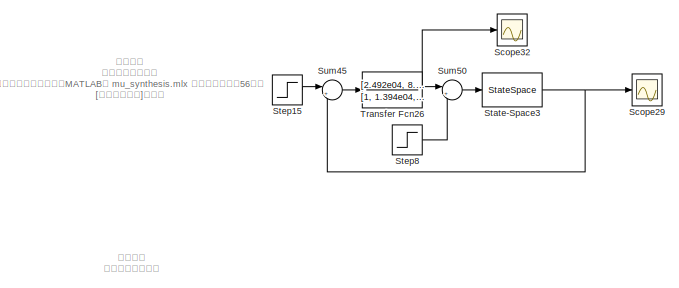
[diagram: root canvas - part 1/19, top left region]
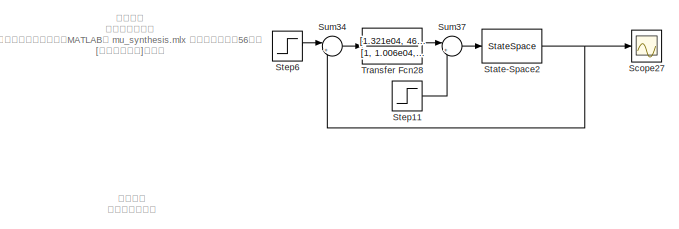
[diagram: root canvas - part 2/19, top center region]
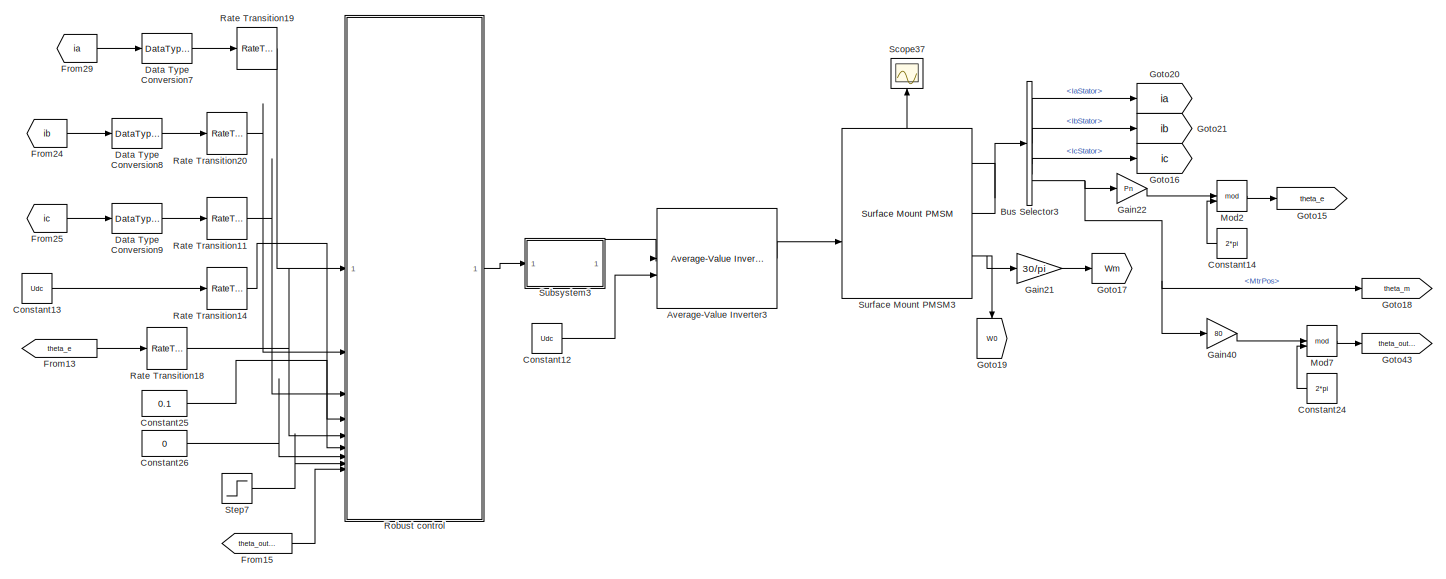
[diagram: root canvas - part 3/19, top center region]
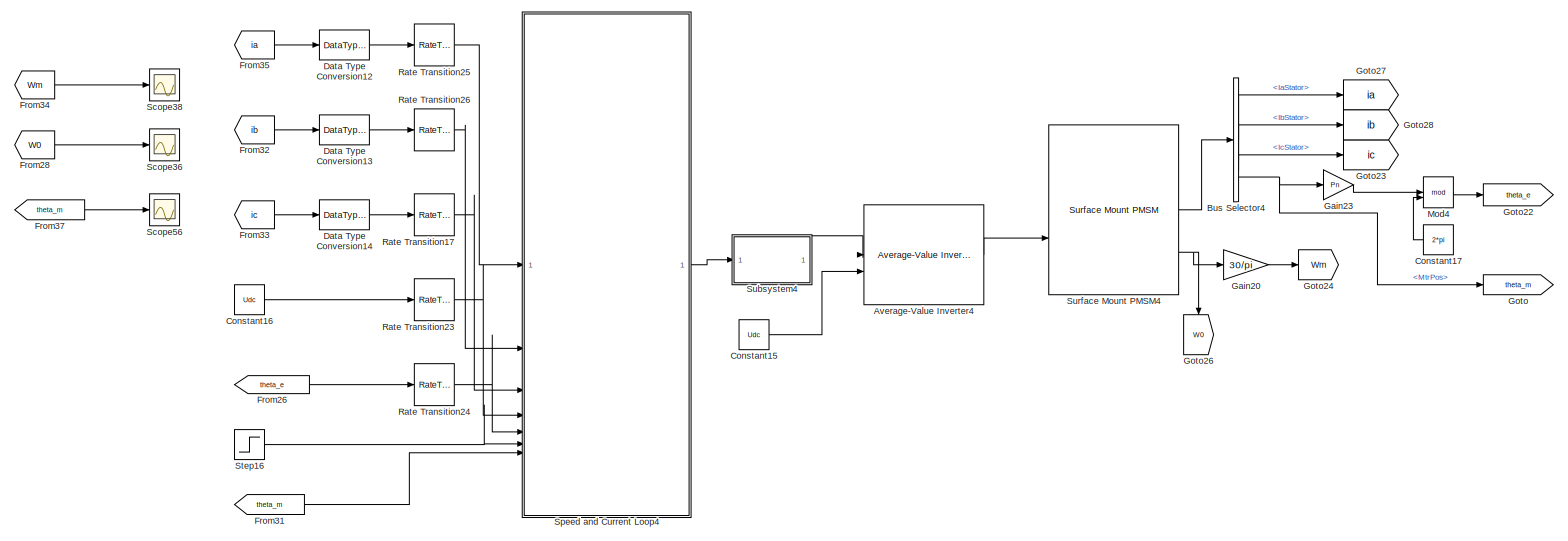
[diagram: root canvas - part 4/19, top left region]
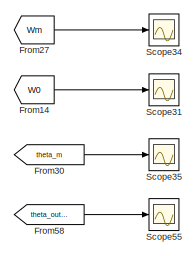
[diagram: root canvas - part 5/19, top center region]
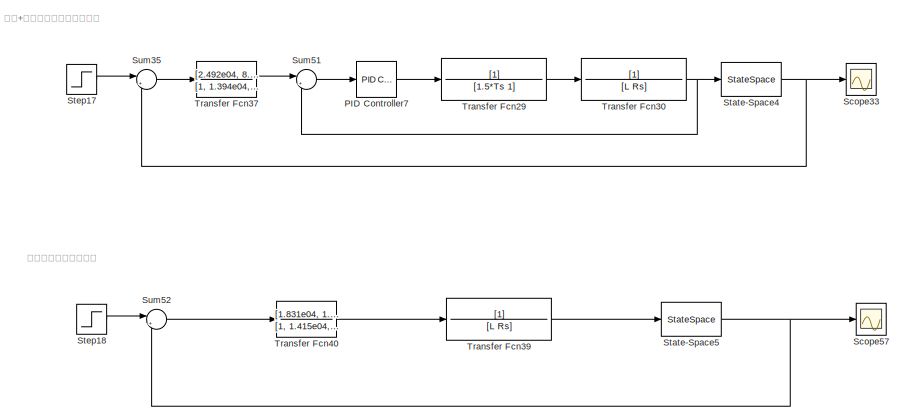
[diagram: root canvas - part 6/19, top left region]
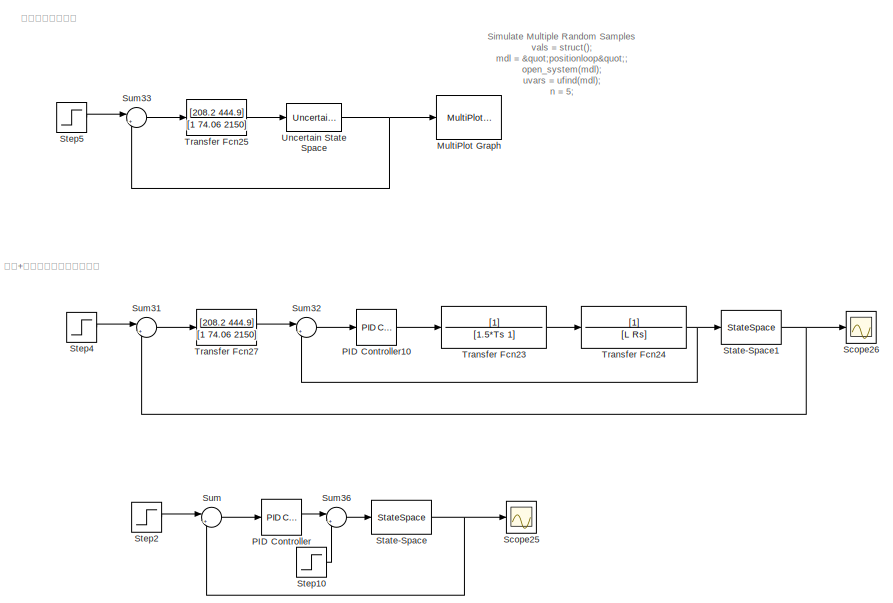
[diagram: root canvas - part 7/19, top center region]
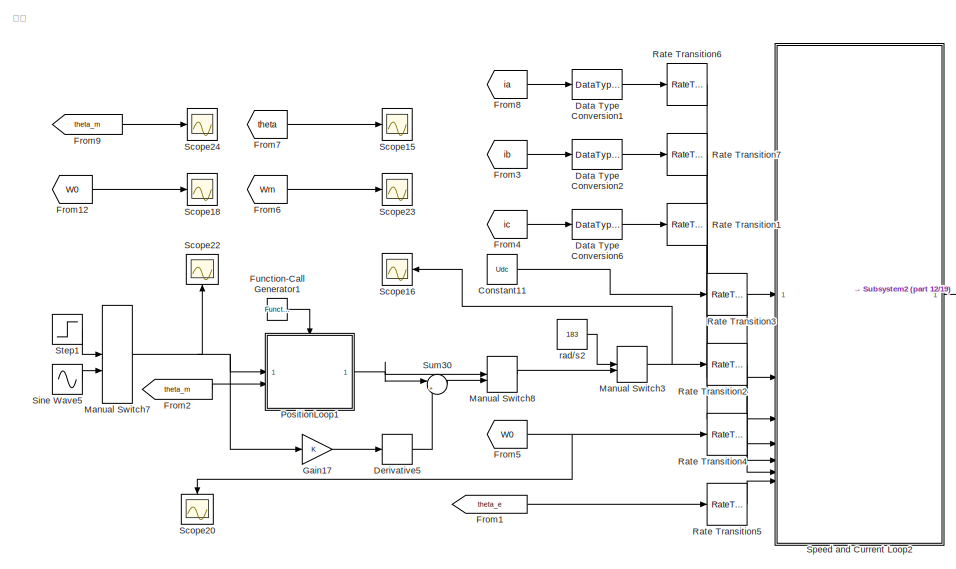
[diagram: root canvas - part 8/19, central region]
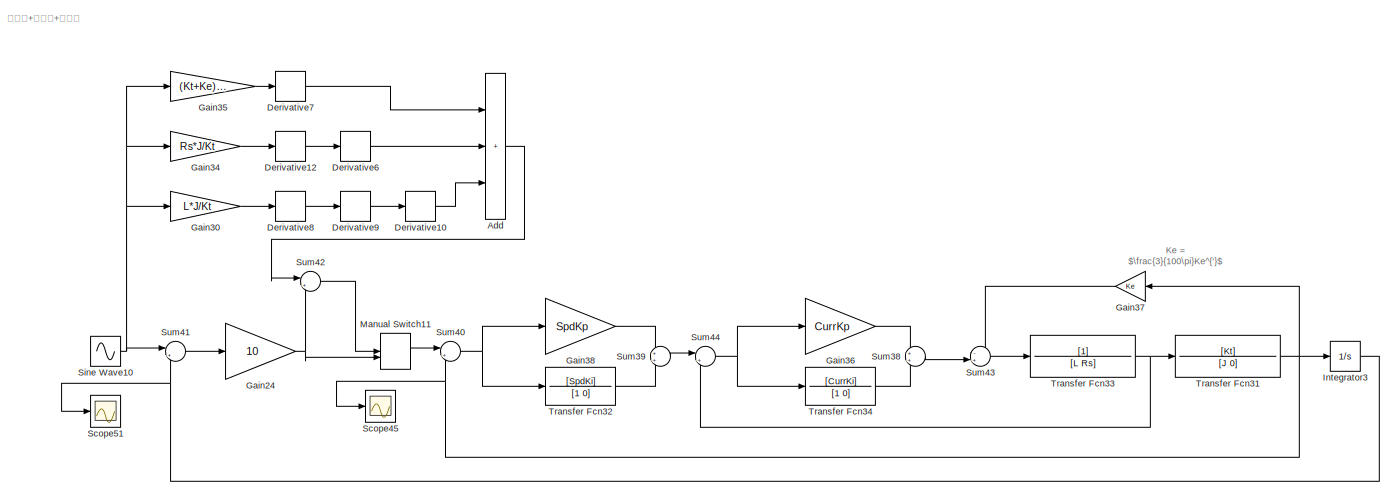
[diagram: root canvas - part 9/19, middle left region]
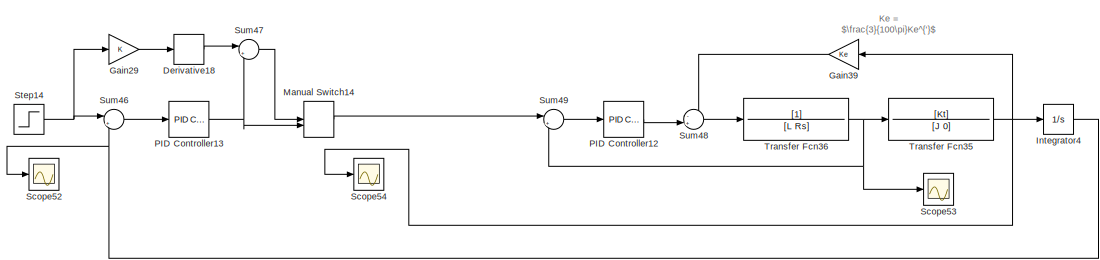
[diagram: root canvas - part 10/19, middle left region]
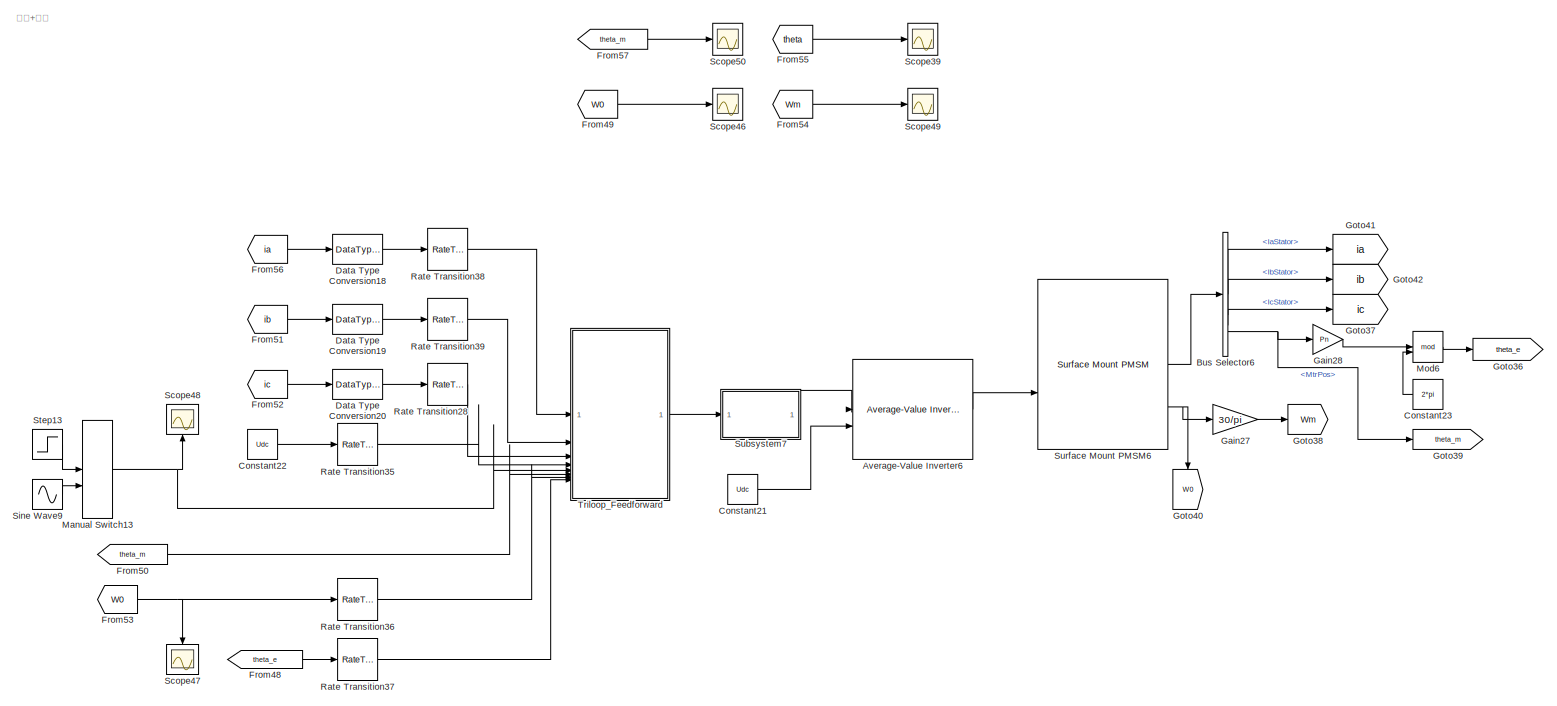
[diagram: root canvas - part 11/19, middle right region]
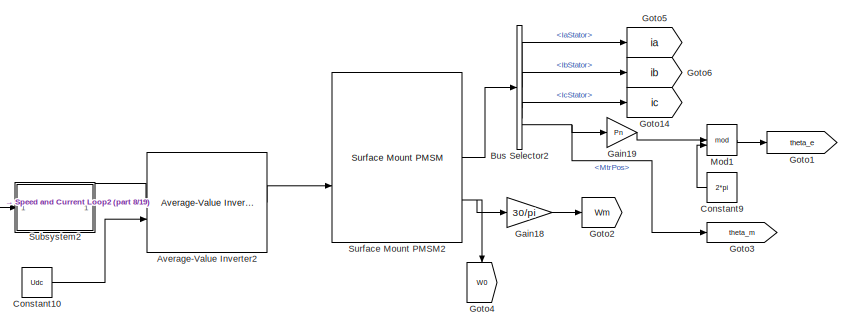
[diagram: root canvas - part 12/19, central region]
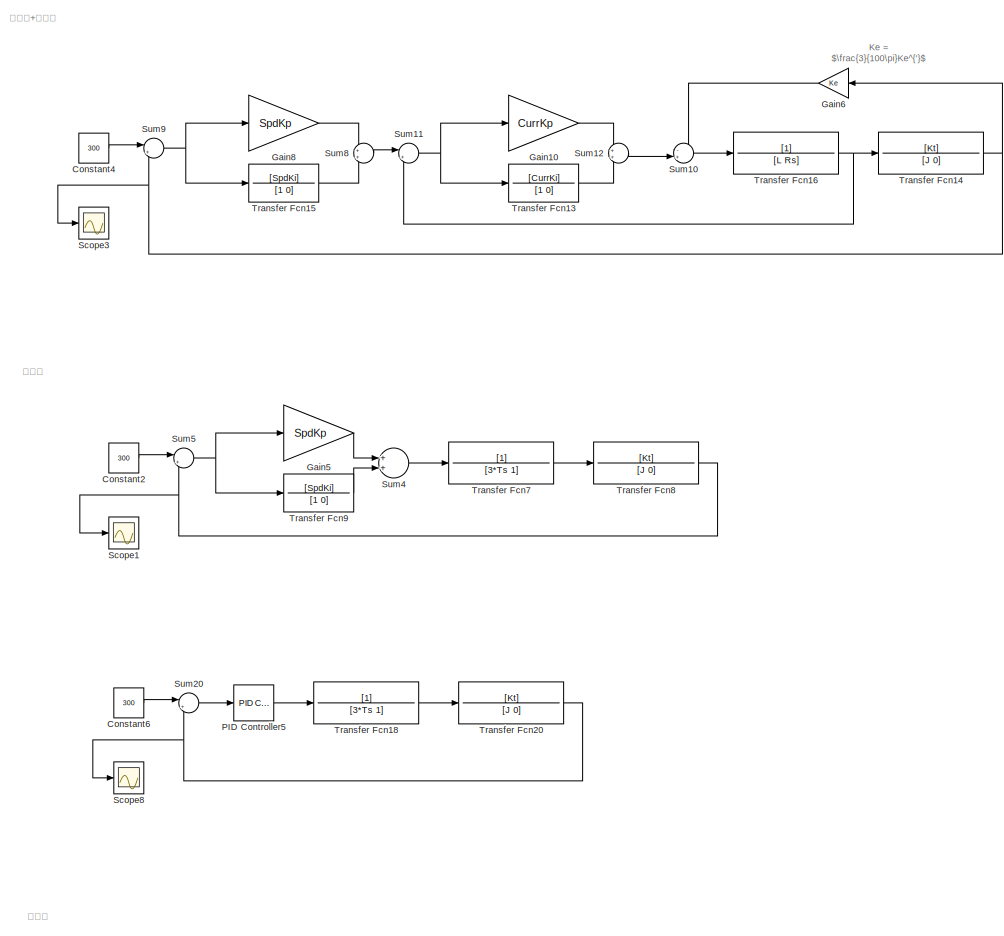
[diagram: root canvas - part 13/19, middle left region]
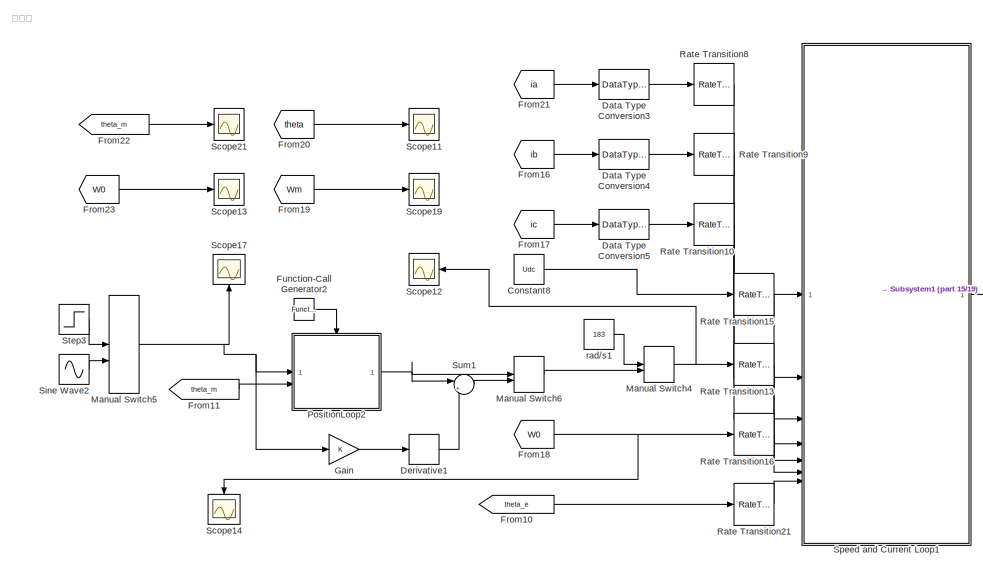
[diagram: root canvas - part 14/19, central region]
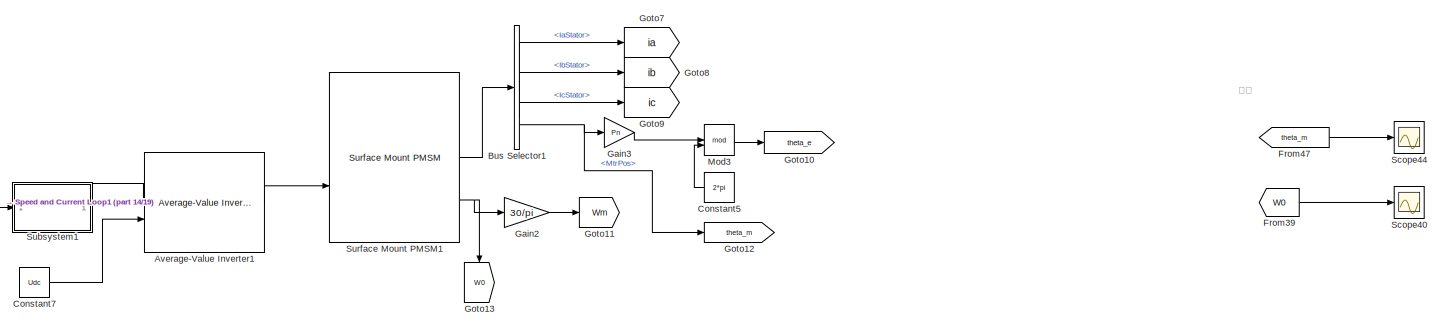
[diagram: root canvas - part 15/19, middle right region]
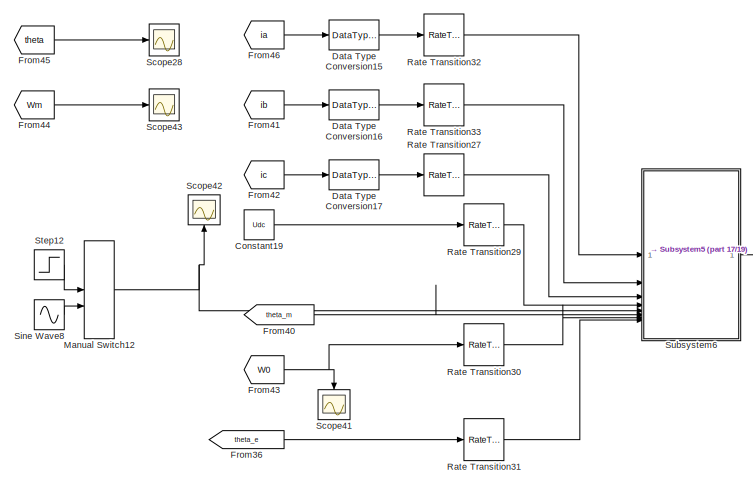
[diagram: root canvas - part 16/19, middle right region]
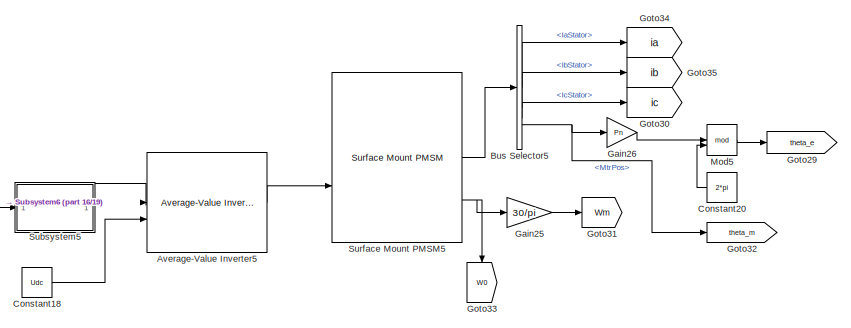
[diagram: root canvas - part 17/19, middle right region]
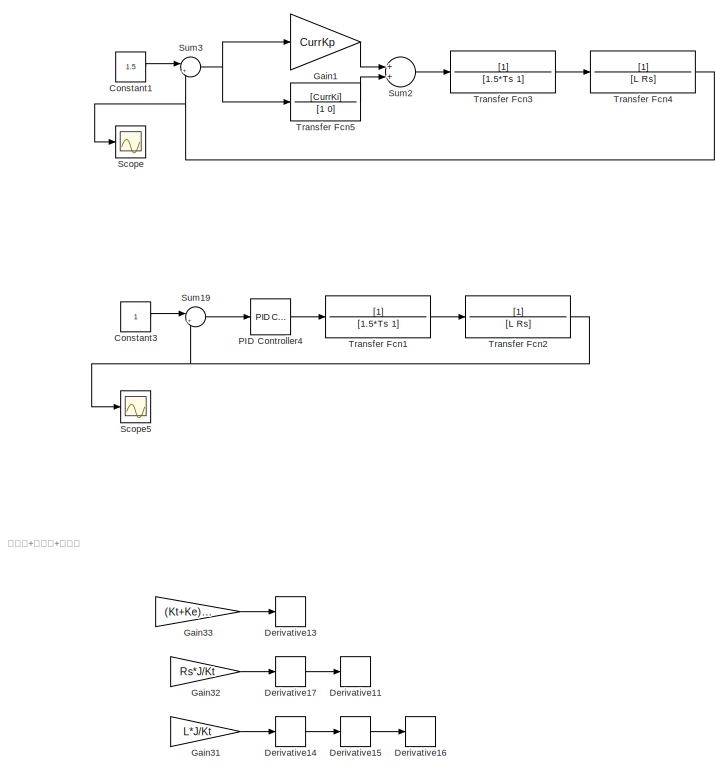
[diagram: root canvas - part 18/19, bottom left region]
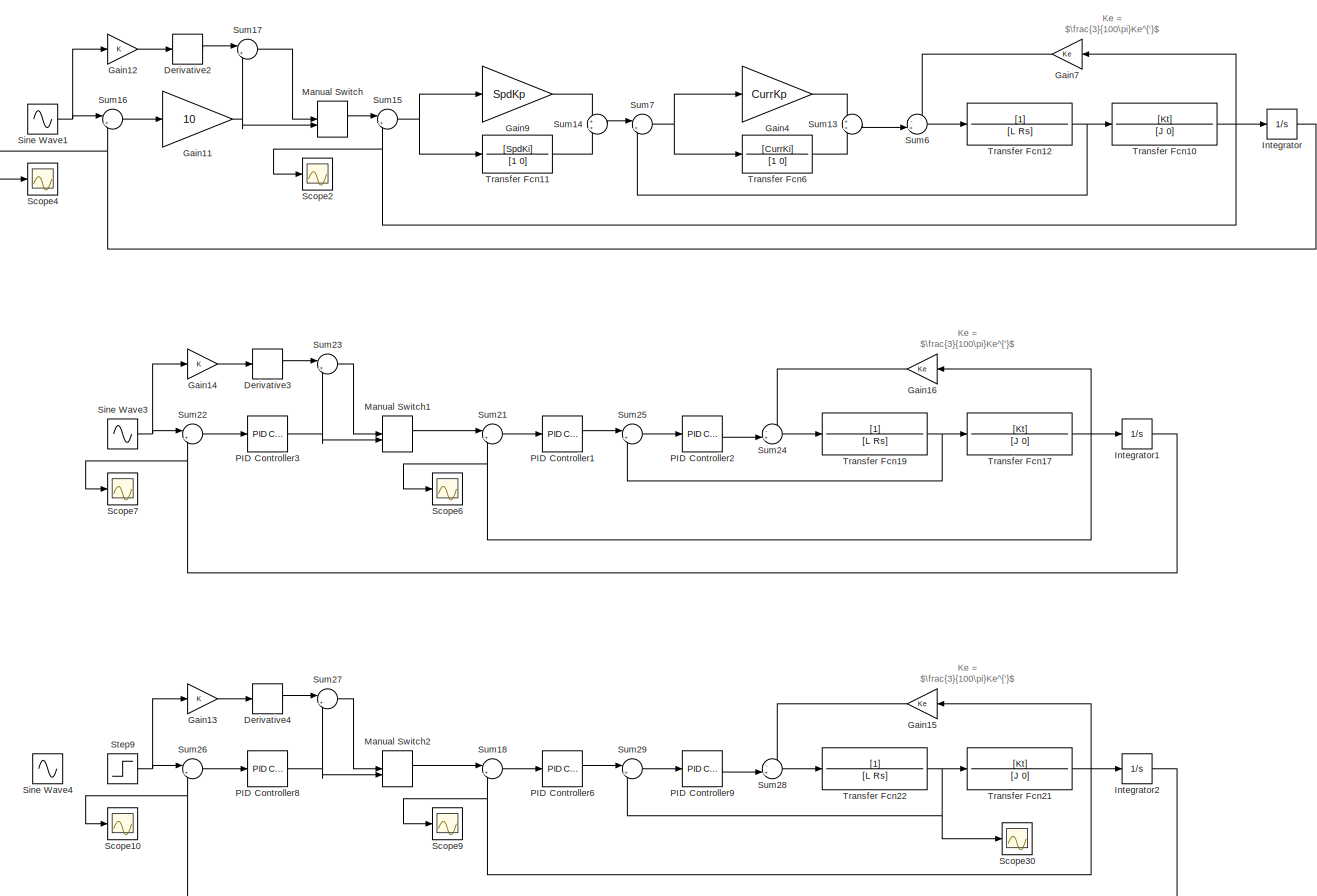
[diagram: root canvas - part 19/19, bottom left region]
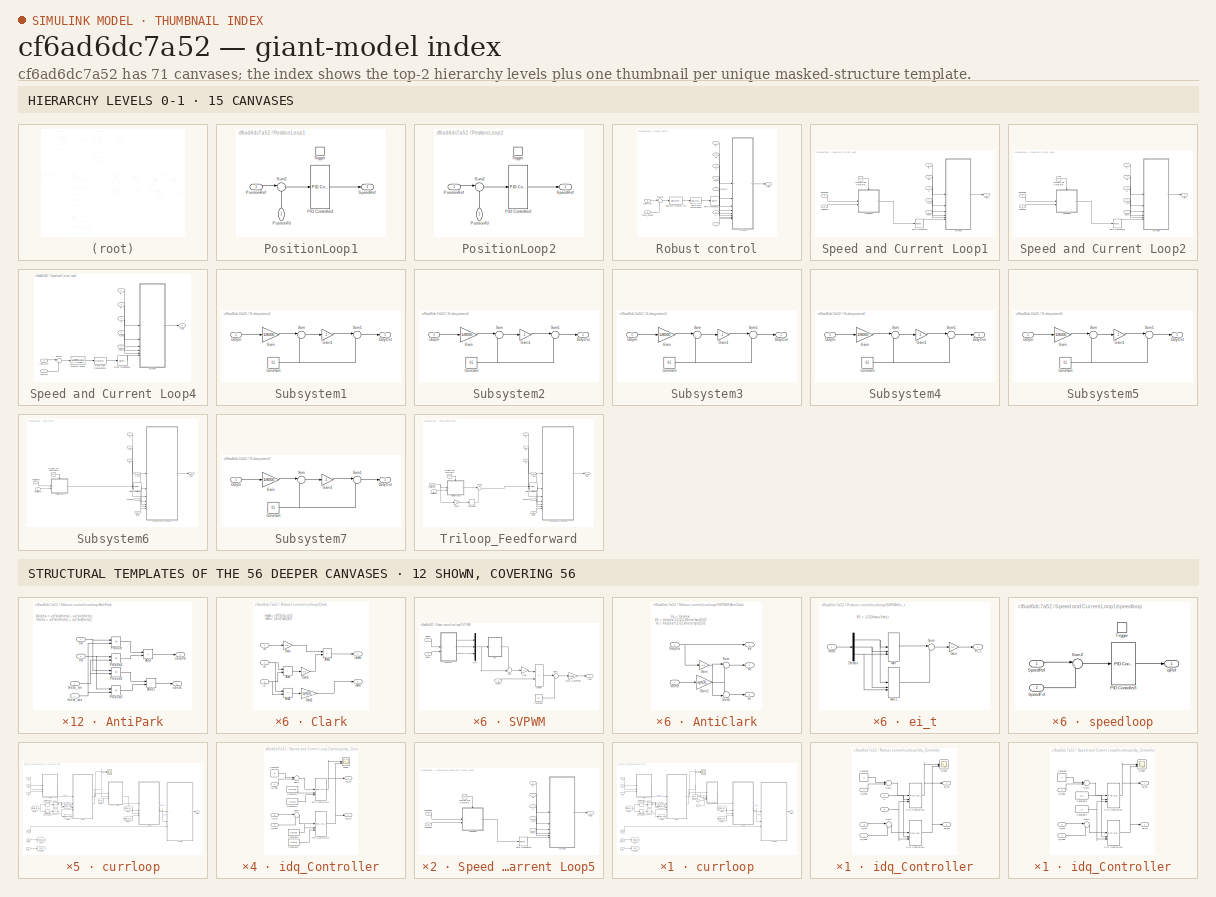
[diagram: thumbnail index - top-2 hierarchy levels (15 canvases) + 12 structural-template representatives of the remaining 56 canvases]
MODEL slx_cf6ad6dc7a52
KIND model
CONFIG AbsTol = auto
CONFIG EnableMultiTasking = off
CONFIG FixedStep = 1e-4
CONFIG MaxStep = auto
CONFIG MinStep = auto
CONFIG RelTol = 1e-3
CONFIG SampleTimeConstraint = Unconstrained
CONFIG SolverName = FixedStepAuto
CONFIG StartTime = 0.0
CONFIG StopTime = 10.0
BLOCK [Sum] Add
  Commented = on
  IconShape = rectangular
  Inputs = +++
BLOCK [Reference] Average-Value Inverter1  REF=mcbplantlib/Average-Value Inverter
  Commented = on
  SourceBlock = mcbplantlib/Average-Value Inverter
  SourceType = Average Value Inverter
BLOCK [Reference] Average-Value Inverter2  REF=mcbplantlib/Average-Value Inverter
  Commented = on
  SourceBlock = mcbplantlib/Average-Value Inverter
  SourceType = Average Value Inverter
BLOCK [Reference] Average-Value Inverter3  REF=mcbplantlib/Average-Value Inverter
  Commented = on
  SourceBlock = mcbplantlib/Average-Value Inverter
  SourceType = Average Value Inverter
BLOCK [Reference] Average-Value Inverter4  REF=mcbplantlib/Average-Value Inverter
  Commented = on
  SourceBlock = mcbplantlib/Average-Value Inverter
  SourceType = Average Value Inverter
BLOCK [Reference] Average-Value Inverter5  REF=mcbplantlib/Average-Value Inverter
  Commented = on
  SourceBlock = mcbplantlib/Average-Value Inverter
  SourceType = Average Value Inverter
BLOCK [Reference] Average-Value Inverter6  REF=mcbplantlib/Average-Value Inverter
  Commented = on
  SourceBlock = mcbplantlib/Average-Value Inverter
  SourceType = Average Value Inverter
BLOCK [BusSelector] Bus Selector1
  Commented = on
  OutputSignals = IaStator,IbStator,IcStator,MtrPos
BLOCK [BusSelector] Bus Selector2
  Commented = on
  OutputSignals = IaStator,IbStator,IcStator,MtrPos
BLOCK [BusSelector] Bus Selector3
  Commented = on
  OutputSignals = IaStator,IbStator,IcStator,MtrPos
BLOCK [BusSelector] Bus Selector4
  Commented = on
  OutputSignals = IaStator,IbStator,IcStator,MtrPos
BLOCK [BusSelector] Bus Selector5
  Commented = on
  OutputSignals = IaStator,IbStator,IcStator,MtrPos
BLOCK [BusSelector] Bus Selector6
  Commented = on
  OutputSignals = IaStator,IbStator,IcStator,MtrPos
BLOCK [Constant] Constant1
  Commented = on
  Value = 1.5
BLOCK [Constant] Constant10
  Commented = on
  Value = Udc
BLOCK [Constant] Constant11
  Commented = on
  OutDataTypeStr = single
  Value = Udc
BLOCK [Constant] Constant12
  Commented = on
  Value = Udc
BLOCK [Constant] Constant13
  Commented = on
  OutDataTypeStr = single
  Value = Udc
BLOCK [Constant] Constant14
  Commented = on
  NameLocation = top
  OutDataTypeStr = single
  Value = 2*pi
BLOCK [Constant] Constant15
  Commented = on
  Value = Udc
BLOCK [Constant] Constant16
  Commented = on
  OutDataTypeStr = single
  Value = Udc
BLOCK [Constant] Constant17
  Commented = on
  NameLocation = top
  OutDataTypeStr = single
  Value = 2*pi
BLOCK [Constant] Constant18
  Commented = on
  Value = Udc
BLOCK [Constant] Constant19
  Commented = on
  OutDataTypeStr = single
  Value = Udc
BLOCK [Constant] Constant2
  Commented = on
  Value = 300
BLOCK [Constant] Constant20
  Commented = on
  NameLocation = top
  OutDataTypeStr = single
  Value = 2*pi
BLOCK [Constant] Constant21
  Commented = on
  Value = Udc
BLOCK [Constant] Constant22
  Commented = on
  OutDataTypeStr = single
  Value = Udc
BLOCK [Constant] Constant23
  Commented = on
  NameLocation = top
  OutDataTypeStr = single
  Value = 2*pi
BLOCK [Constant] Constant24
  Commented = on
  NameLocation = top
  OutDataTypeStr = single
  Value = 2*pi
BLOCK [Constant] Constant25
  Commented = on
  OutDataTypeStr = single
  Value = 0.1
BLOCK [Constant] Constant26
  Commented = on
  OutDataTypeStr = single
  Value = 0
BLOCK [Constant] Constant3
  Commented = on
BLOCK [Constant] Constant4
  Commented = on
  Value = 300
BLOCK [Constant] Constant5
  Commented = on
  NameLocation = top
  OutDataTypeStr = single
  Value = 2*pi
BLOCK [Constant] Constant6
  Commented = on
  Value = 300
BLOCK [Constant] Constant7
  Commented = on
  Value = Udc
BLOCK [Constant] Constant8
  Commented = on
  OutDataTypeStr = single
  Value = Udc
BLOCK [Constant] Constant9
  Commented = on
  NameLocation = top
  OutDataTypeStr = single
  Value = 2*pi
BLOCK [DataTypeConversion] Data Type Conversion1
  Commented = on
  OutDataTypeStr = single
  RndMeth = Floor
  SaturateOnIntegerOverflow = off
BLOCK [DataTypeConversion] Data Type Conversion12
  Commented = on
  OutDataTypeStr = single
  RndMeth = Floor
  SaturateOnIntegerOverflow = off
BLOCK [DataTypeConversion] Data Type Conversion13
  Commented = on
  OutDataTypeStr = single
  RndMeth = Floor
  SaturateOnIntegerOverflow = off
BLOCK [DataTypeConversion] Data Type Conversion14
  Commented = on
  OutDataTypeStr = single
  RndMeth = Floor
  SaturateOnIntegerOverflow = off
BLOCK [DataTypeConversion] Data Type Conversion15
  Commented = on
  OutDataTypeStr = single
  RndMeth = Floor
  SaturateOnIntegerOverflow = off
BLOCK [DataTypeConversion] Data Type Conversion16
  Commented = on
  OutDataTypeStr = single
  RndMeth = Floor
  SaturateOnIntegerOverflow = off
BLOCK [DataTypeConversion] Data Type Conversion17
  Commented = on
  OutDataTypeStr = single
  RndMeth = Floor
  SaturateOnIntegerOverflow = off
BLOCK [DataTypeConversion] Data Type Conversion18
  Commented = on
  OutDataTypeStr = single
  RndMeth = Floor
  SaturateOnIntegerOverflow = off
BLOCK [DataTypeConversion] Data Type Conversion19
  Commented = on
  OutDataTypeStr = single
  RndMeth = Floor
  SaturateOnIntegerOverflow = off
BLOCK [DataTypeConversion] Data Type Conversion2
  Commented = on
  OutDataTypeStr = single
  RndMeth = Floor
  SaturateOnIntegerOverflow = off
BLOCK [DataTypeConversion] Data Type Conversion20
  Commented = on
  OutDataTypeStr = single
  RndMeth = Floor
  SaturateOnIntegerOverflow = off
BLOCK [DataTypeConversion] Data Type Conversion3
  Commented = on
  OutDataTypeStr = single
  RndMeth = Floor
  SaturateOnIntegerOverflow = off
BLOCK [DataTypeConversion] Data Type Conversion4
  Commented = on
  OutDataTypeStr = single
  RndMeth = Floor
  SaturateOnIntegerOverflow = off
BLOCK [DataTypeConversion] Data Type Conversion5
  Commented = on
  OutDataTypeStr = single
  RndMeth = Floor
  SaturateOnIntegerOverflow = off
BLOCK [DataTypeConversion] Data Type Conversion6
  Commented = on
  OutDataTypeStr = single
  RndMeth = Floor
  SaturateOnIntegerOverflow = off
BLOCK [DataTypeConversion] Data Type Conversion7
  Commented = on
  OutDataTypeStr = single
  RndMeth = Floor
  SaturateOnIntegerOverflow = off
BLOCK [DataTypeConversion] Data Type Conversion8
  Commented = on
  OutDataTypeStr = single
  RndMeth = Floor
  SaturateOnIntegerOverflow = off
BLOCK [DataTypeConversion] Data Type Conversion9
  Commented = on
  OutDataTypeStr = single
  RndMeth = Floor
  SaturateOnIntegerOverflow = off
BLOCK [Derivative] Derivative1
  Commented = on
BLOCK [Derivative] Derivative10
  Commented = on
BLOCK [Derivative] Derivative11
  Commented = on
BLOCK [Derivative] Derivative12
  Commented = on
BLOCK [Derivative] Derivative13
  Commented = on
BLOCK [Derivative] Derivative14
  Commented = on
BLOCK [Derivative] Derivative15
  Commented = on
BLOCK [Derivative] Derivative16
  Commented = on
BLOCK [Derivative] Derivative17
  Commented = on
BLOCK [Derivative] Derivative18
  Commented = on
BLOCK [Derivative] Derivative2
  Commented = on
BLOCK [Derivative] Derivative3
  Commented = on
BLOCK [Derivative] Derivative4
  Commented = on
BLOCK [Derivative] Derivative5
  Commented = on
BLOCK [Derivative] Derivative6
  Commented = on
BLOCK [Derivative] Derivative7
  Commented = on
BLOCK [Derivative] Derivative8
  Commented = on
BLOCK [Derivative] Derivative9
  Commented = on
BLOCK [From] From1
  Commented = on
  GotoTag = theta_e
  TagVisibility = global
BLOCK [From] From10
  Commented = on
  GotoTag = theta_e
  TagVisibility = global
BLOCK [From] From11
  Commented = on
  GotoTag = theta_m
  TagVisibility = global
BLOCK [From] From12
  Commented = on
  GotoTag = W0
BLOCK [From] From13
  Commented = on
  GotoTag = theta_e
  TagVisibility = global
BLOCK [From] From14
  Commented = on
  GotoTag = W0
BLOCK [From] From15
  Commented = on
  GotoTag = theta_output
  TagVisibility = global
BLOCK [From] From16
  Commented = on
  GotoTag = ib
BLOCK [From] From17
  Commented = on
  GotoTag = ic
BLOCK [From] From18
  Commented = on
  GotoTag = W0
BLOCK [From] From19
  Commented = on
  GotoTag = Wm
BLOCK [From] From2
  Commented = on
  GotoTag = theta_m
  TagVisibility = global
BLOCK [From] From20
  Commented = on
  GotoTag = theta
BLOCK [From] From21
  Commented = on
  GotoTag = ia
BLOCK [From] From22
  Commented = on
  GotoTag = theta_m
  TagVisibility = global
BLOCK [From] From23
  Commented = on
  GotoTag = W0
BLOCK [From] From24
  Commented = on
  GotoTag = ib
BLOCK [From] From25
  Commented = on
  GotoTag = ic
BLOCK [From] From26
  Commented = on
  GotoTag = theta_e
  TagVisibility = global
BLOCK [From] From27
  Commented = on
  GotoTag = Wm
BLOCK [From] From28
  Commented = on
  GotoTag = W0
BLOCK [From] From29
  Commented = on
  GotoTag = ia
BLOCK [From] From3
  Commented = on
  GotoTag = ib
BLOCK [From] From30
  Commented = on
  GotoTag = theta_m
  TagVisibility = global
BLOCK [From] From31
  Commented = on
  GotoTag = theta_m
  TagVisibility = global
BLOCK [From] From32
  Commented = on
  GotoTag = ib
BLOCK [From] From33
  Commented = on
  GotoTag = ic
BLOCK [From] From34
  Commented = on
  GotoTag = Wm
BLOCK [From] From35
  Commented = on
  GotoTag = ia
BLOCK [From] From36
  Commented = on
  GotoTag = theta_e
  TagVisibility = global
BLOCK [From] From37
  Commented = on
  GotoTag = theta_m
  TagVisibility = global
BLOCK [From] From39
  Commented = on
  GotoTag = W0
BLOCK [From] From4
  Commented = on
  GotoTag = ic
BLOCK [From] From40
  Commented = on
  GotoTag = theta_m
  TagVisibility = global
BLOCK [From] From41
  Commented = on
  GotoTag = ib
BLOCK [From] From42
  Commented = on
  GotoTag = ic
BLOCK [From] From43
  Commented = on
  GotoTag = W0
BLOCK [From] From44
  Commented = on
  GotoTag = Wm
BLOCK [From] From45
  Commented = on
  GotoTag = theta
BLOCK [From] From46
  Commented = on
  GotoTag = ia
BLOCK [From] From47
  Commented = on
  GotoTag = theta_m
  TagVisibility = global
BLOCK [From] From48
  Commented = on
  GotoTag = theta_e
  TagVisibility = global
BLOCK [From] From49
  Commented = on
  GotoTag = W0
BLOCK [From] From5
  Commented = on
  GotoTag = W0
BLOCK [From] From50
  Commented = on
  GotoTag = theta_m
  TagVisibility = global
BLOCK [From] From51
  Commented = on
  GotoTag = ib
BLOCK [From] From52
  Commented = on
  GotoTag = ic
BLOCK [From] From53
  Commented = on
  GotoTag = W0
BLOCK [From] From54
  Commented = on
  GotoTag = Wm
BLOCK [From] From55
  Commented = on
  GotoTag = theta
BLOCK [From] From56
  Commented = on
  GotoTag = ia
BLOCK [From] From57
  Commented = on
  GotoTag = theta_m
  TagVisibility = global
BLOCK [From] From58
  Commented = on
  GotoTag = theta_output
  TagVisibility = global
BLOCK [From] From6
  Commented = on
  GotoTag = Wm
BLOCK [From] From7
  Commented = on
  GotoTag = theta
BLOCK [From] From8
  Commented = on
  GotoTag = ia
BLOCK [From] From9
  Commented = on
  GotoTag = theta_m
  TagVisibility = global
BLOCK [Reference] Function-Call Generator1  REF=simulink/Ports &
Subsystems/Function-Call
Generator
  Commented = on
  SourceBlock = simulink/Ports &\nSubsystems/Function-Call\nGenerator
  SourceType = Function-Call Generator
BLOCK [Reference] Function-Call Generator2  REF=simulink/Ports &
Subsystems/Function-Call
Generator
  Commented = on
  SourceBlock = simulink/Ports &\nSubsystems/Function-Call\nGenerator
  SourceType = Function-Call Generator
BLOCK [Gain] Gain
  Commented = on
BLOCK [Gain] Gain1
  Commented = on
  Gain = CurrKp
BLOCK [Gain] Gain10
  Commented = on
  Gain = CurrKp
BLOCK [Gain] Gain11
  Commented = on
  Gain = 10
BLOCK [Gain] Gain12
  Commented = on
BLOCK [Gain] Gain13
  Commented = on
BLOCK [Gain] Gain14
  Commented = on
BLOCK [Gain] Gain15
  Commented = on
  Gain = Ke
  NameLocation = top
BLOCK [Gain] Gain16
  Commented = on
  Gain = Ke
  NameLocation = top
BLOCK [Gain] Gain17
  Commented = on
BLOCK [Gain] Gain18
  Commented = on
  Gain = 30/pi
  OutDataTypeStr = single
BLOCK [Gain] Gain19
  Commented = on
  Gain = Pn
  OutDataTypeStr = single
BLOCK [Gain] Gain2
  Commented = on
  Gain = 30/pi
  OutDataTypeStr = single
BLOCK [Gain] Gain20
  Commented = on
  Gain = 30/pi
  OutDataTypeStr = single
BLOCK [Gain] Gain21
  Commented = on
  Gain = 30/pi
  OutDataTypeStr = single
BLOCK [Gain] Gain22
  Commented = on
  Gain = Pn
  OutDataTypeStr = single
BLOCK [Gain] Gain23
  Commented = on
  Gain = Pn
  OutDataTypeStr = single
BLOCK [Gain] Gain24
  Commented = on
  Gain = 10
BLOCK [Gain] Gain25
  Commented = on
  Gain = 30/pi
  OutDataTypeStr = single
BLOCK [Gain] Gain26
  Commented = on
  Gain = Pn
  OutDataTypeStr = single
BLOCK [Gain] Gain27
  Commented = on
  Gain = 30/pi
  OutDataTypeStr = single
BLOCK [Gain] Gain28
  Commented = on
  Gain = Pn
  OutDataTypeStr = single
BLOCK [Gain] Gain29
  Commented = on
BLOCK [Gain] Gain3
  Commented = on
  Gain = Pn
  OutDataTypeStr = single
BLOCK [Gain] Gain30
  Commented = on
  Gain = L*J/Kt
BLOCK [Gain] Gain31
  Commented = on
  Gain = L*J/Kt
BLOCK [Gain] Gain32
  Commented = on
  Gain = Rs*J/Kt
BLOCK [Gain] Gain33
  Commented = on
  Gain = (Kt+Ke)/Kt
BLOCK [Gain] Gain34
  Commented = on
  Gain = Rs*J/Kt
BLOCK [Gain] Gain35
  Commented = on
  Gain = (Kt+Ke)/Kt
BLOCK [Gain] Gain36
  Commented = on
  Gain = CurrKp
BLOCK [Gain] Gain37
  Commented = on
  Gain = Ke
  NameLocation = top
BLOCK [Gain] Gain38
  Commented = on
  Gain = SpdKp
BLOCK [Gain] Gain39
  Commented = on
  Gain = Ke
  NameLocation = top
BLOCK [Gain] Gain4
  Commented = on
  Gain = CurrKp
BLOCK [Gain] Gain40
  Commented = on
  Gain = 80
  OutDataTypeStr = single
BLOCK [Gain] Gain5
  Commented = on
  Gain = SpdKp
BLOCK [Gain] Gain6
  Commented = on
  Gain = Ke
  NameLocation = top
BLOCK [Gain] Gain7
  Commented = on
  Gain = Ke
  NameLocation = top
BLOCK [Gain] Gain8
  Commented = on
  Gain = SpdKp
BLOCK [Gain] Gain9
  Commented = on
  Gain = SpdKp
BLOCK [Goto] Goto
  Commented = on
  GotoTag = theta_m
  TagVisibility = global
BLOCK [Goto] Goto1
  Commented = on
  GotoTag = theta_e
  TagVisibility = global
BLOCK [Goto] Goto10
  Commented = on
  GotoTag = theta_e
  TagVisibility = global
BLOCK [Goto] Goto11
  Commented = on
  GotoTag = Wm
BLOCK [Goto] Goto12
  Commented = on
  GotoTag = theta_m
  TagVisibility = global
BLOCK [Goto] Goto13
  Commented = on
  GotoTag = W0
  NameLocation = left
BLOCK [Goto] Goto14
  Commented = on
  GotoTag = ic
BLOCK [Goto] Goto15
  Commented = on
  GotoTag = theta_e
  TagVisibility = global
BLOCK [Goto] Goto16
  Commented = on
  GotoTag = ic
BLOCK [Goto] Goto17
  Commented = on
  GotoTag = Wm
BLOCK [Goto] Goto18
  Commented = on
  GotoTag = theta_m
  TagVisibility = global
BLOCK [Goto] Goto19
  Commented = on
  GotoTag = W0
  NameLocation = left
BLOCK [Goto] Goto2
  Commented = on
  GotoTag = Wm
BLOCK [Goto] Goto20
  Commented = on
  GotoTag = ia
BLOCK [Goto] Goto21
  Commented = on
  GotoTag = ib
BLOCK [Goto] Goto22
  Commented = on
  GotoTag = theta_e
  TagVisibility = global
BLOCK [Goto] Goto23
  Commented = on
  GotoTag = ic
BLOCK [Goto] Goto24
  Commented = on
  GotoTag = Wm
BLOCK [Goto] Goto26
  Commented = on
  GotoTag = W0
  NameLocation = left
BLOCK [Goto] Goto27
  Commented = on
  GotoTag = ia
BLOCK [Goto] Goto28
  Commented = on
  GotoTag = ib
BLOCK [Goto] Goto29
  Commented = on
  GotoTag = theta_e
  TagVisibility = global
BLOCK [Goto] Goto3
  Commented = on
  GotoTag = theta_m
  TagVisibility = global
BLOCK [Goto] Goto30
  Commented = on
  GotoTag = ic
BLOCK [Goto] Goto31
  Commented = on
  GotoTag = Wm
BLOCK [Goto] Goto32
  Commented = on
  GotoTag = theta_m
  TagVisibility = global
BLOCK [Goto] Goto33
  Commented = on
  GotoTag = W0
  NameLocation = left
BLOCK [Goto] Goto34
  Commented = on
  GotoTag = ia
BLOCK [Goto] Goto35
  Commented = on
  GotoTag = ib
BLOCK [Goto] Goto36
  Commented = on
  GotoTag = theta_e
  TagVisibility = global
BLOCK [Goto] Goto37
  Commented = on
  GotoTag = ic
BLOCK [Goto] Goto38
  Commented = on
  GotoTag = Wm
BLOCK [Goto] Goto39
  Commented = on
  GotoTag = theta_m
  TagVisibility = global
BLOCK [Goto] Goto4
  Commented = on
  GotoTag = W0
  NameLocation = left
BLOCK [Goto] Goto40
  Commented = on
  GotoTag = W0
  NameLocation = left
BLOCK [Goto] Goto41
  Commented = on
  GotoTag = ia
BLOCK [Goto] Goto42
  Commented = on
  GotoTag = ib
BLOCK [Goto] Goto43
  Commented = on
  GotoTag = theta_output
  TagVisibility = global
BLOCK [Goto] Goto5
  Commented = on
  GotoTag = ia
BLOCK [Goto] Goto6
  Commented = on
  GotoTag = ib
BLOCK [Goto] Goto7
  Commented = on
  GotoTag = ia
BLOCK [Goto] Goto8
  Commented = on
  GotoTag = ib
BLOCK [Goto] Goto9
  Commented = on
  GotoTag = ic
BLOCK [Integrator] Integrator
  Commented = on
BLOCK [Integrator] Integrator1
  Commented = on
BLOCK [Integrator] Integrator2
  Commented = on
BLOCK [Integrator] Integrator3
  Commented = on
BLOCK [Integrator] Integrator4
  Commented = on
BLOCK [ManualSwitch] Manual Switch
  Commented = on
BLOCK [ManualSwitch] Manual Switch1
  Commented = on
BLOCK [ManualSwitch] Manual Switch11
  Commented = on
BLOCK [ManualSwitch] Manual Switch12
  Commented = on
BLOCK [ManualSwitch] Manual Switch13
  Commented = on
BLOCK [ManualSwitch] Manual Switch14
  Commented = on
  CurrentSetting = 0
BLOCK [ManualSwitch] Manual Switch2
  Commented = on
BLOCK [ManualSwitch] Manual Switch3
  Commented = on
  CurrentSetting = 0
BLOCK [ManualSwitch] Manual Switch4
  Commented = on
  CurrentSetting = 0
BLOCK [ManualSwitch] Manual Switch5
  Commented = on
BLOCK [ManualSwitch] Manual Switch6
  Commented = on
BLOCK [ManualSwitch] Manual Switch7
  Commented = on
BLOCK [ManualSwitch] Manual Switch8
  Commented = on
BLOCK [Math] Mod1
  Commented = on
  Operator = mod
  OutputSignalType = real
BLOCK [Math] Mod2
  Commented = on
  Operator = mod
  OutputSignalType = real
BLOCK [Math] Mod3
  Commented = on
  Operator = mod
  OutputSignalType = real
BLOCK [Math] Mod4
  Commented = on
  Operator = mod
  OutputSignalType = real
BLOCK [Math] Mod5
  Commented = on
  Operator = mod
  OutputSignalType = real
BLOCK [Math] Mod6
  Commented = on
  Operator = mod
  OutputSignalType = real
BLOCK [Math] Mod7
  Commented = on
  Operator = mod
  OutputSignalType = real
BLOCK [Reference] MultiPlot Graph  REF=RCTblocks/MultiPlot Graph
  Commented = on
  SourceBlock = RCTblocks/MultiPlot Graph
  SourceType = MultiPlot Graph
  Tag = MultiPlot
BLOCK [Reference] PID Controller  REF=slpidlib/PID Controller
  Commented = on
  LibrarySourceBlock = simulink/Continuous/PID Controller
  SourceBlock = slpidlib/PID Controller
  SourceType = PID 1dof
BLOCK [Reference] PID Controller1  REF=slpidlib/PID Controller
  Commented = on
  LibrarySourceBlock = simulink/Continuous/PID Controller
  SourceBlock = slpidlib/PID Controller
  SourceType = PID 1dof
BLOCK [Reference] PID Controller10  REF=slpidlib/PID Controller
  Commented = on
  LibrarySourceBlock = simulink/Continuous/PID Controller
  SourceBlock = slpidlib/PID Controller
  SourceType = PID 1dof
BLOCK [Reference] PID Controller12  REF=slpidlib/PID Controller
  Commented = on
  LibrarySourceBlock = simulink/Continuous/PID Controller
  SourceBlock = slpidlib/PID Controller
  SourceType = PID 1dof
BLOCK [Reference] PID Controller13  REF=slpidlib/PID Controller
  Commented = on
  LibrarySourceBlock = simulink/Continuous/PID Controller
  SourceBlock = slpidlib/PID Controller
  SourceType = PID 1dof
BLOCK [Reference] PID Controller2  REF=slpidlib/PID Controller
  Commented = on
  LibrarySourceBlock = simulink/Continuous/PID Controller
  SourceBlock = slpidlib/PID Controller
  SourceType = PID 1dof
BLOCK [Reference] PID Controller3  REF=slpidlib/PID Controller
  Commented = on
  LibrarySourceBlock = simulink/Continuous/PID Controller
  SourceBlock = slpidlib/PID Controller
  SourceType = PID 1dof
BLOCK [Reference] PID Controller4  REF=slpidlib/PID Controller
  Commented = on
  LibrarySourceBlock = simulink/Continuous/PID Controller
  SourceBlock = slpidlib/PID Controller
  SourceType = PID 1dof
BLOCK [Reference] PID Controller5  REF=slpidlib/PID Controller
  Commented = on
  LibrarySourceBlock = simulink/Continuous/PID Controller
  SourceBlock = slpidlib/PID Controller
  SourceType = PID 1dof
BLOCK [Reference] PID Controller6  REF=slpidlib/PID Controller
  Commented = on
  LibrarySourceBlock = simulink/Continuous/PID Controller
  SourceBlock = slpidlib/PID Controller
  SourceType = PID 1dof
BLOCK [Reference] PID Controller7  REF=slpidlib/PID Controller
  Commented = on
  LibrarySourceBlock = simulink/Continuous/PID Controller
  SourceBlock = slpidlib/PID Controller
  SourceType = PID 1dof
BLOCK [Reference] PID Controller8  REF=slpidlib/PID Controller
  Commented = on
  LibrarySourceBlock = simulink/Continuous/PID Controller
  SourceBlock = slpidlib/PID Controller
  SourceType = PID 1dof
BLOCK [Reference] PID Controller9  REF=slpidlib/PID Controller
  Commented = on
  LibrarySourceBlock = simulink/Continuous/PID Controller
  SourceBlock = slpidlib/PID Controller
  SourceType = PID 1dof
BLOCK [SubSystem] PositionLoop1
  Commented = on
BLOCK [Reference] PositionLoop1/PID Controller2  REF=slpidlib/PID Controller
  SourceBlock = slpidlib/PID Controller
  SourceType = PID 1dof
BLOCK [Inport] PositionLoop1/PositionFd
  NameLocation = right
  Port = 2
BLOCK [Inport] PositionLoop1/PositionRef
BLOCK [Outport] PositionLoop1/SpeedRef
BLOCK [Sum] PositionLoop1/Sum2
  AccumDataTypeStr = single
  Inputs = |+-
  OutDataTypeStr = single
BLOCK [TriggerPort] PositionLoop1/Trigger
  PortDimensions = 1
  StatesWhenEnabling = held
  TriggerType = function-call
  VariantControl = (inherit)
BLOCK [SubSystem] PositionLoop2
  Commented = on
BLOCK [Reference] PositionLoop2/PID Controller2  REF=slpidlib/PID Controller
  SourceBlock = slpidlib/PID Controller
  SourceType = PID 1dof
BLOCK [Inport] PositionLoop2/PositionFd
  NameLocation = right
  Port = 2
BLOCK [Inport] PositionLoop2/PositionRef
BLOCK [Outport] PositionLoop2/SpeedRef
BLOCK [Sum] PositionLoop2/Sum2
  AccumDataTypeStr = single
  Inputs = |+-
  OutDataTypeStr = single
BLOCK [TriggerPort] PositionLoop2/Trigger
  PortDimensions = 1
  StatesWhenEnabling = held
  TriggerType = function-call
  VariantControl = (inherit)
BLOCK [RateTransition] Rate Transition1
  Commented = on
BLOCK [RateTransition] Rate Transition10
  Commented = on
BLOCK [RateTransition] Rate Transition11
  Commented = on
BLOCK [RateTransition] Rate Transition13
  Commented = on
BLOCK [RateTransition] Rate Transition14
  Commented = on
BLOCK [RateTransition] Rate Transition15
  Commented = on
BLOCK [RateTransition] Rate Transition16
  Commented = on
BLOCK [RateTransition] Rate Transition17
  Commented = on
BLOCK [RateTransition] Rate Transition18
  Commented = on
BLOCK [RateTransition] Rate Transition19
  Commented = on
BLOCK [RateTransition] Rate Transition2
  Commented = on
BLOCK [RateTransition] Rate Transition20
  Commented = on
BLOCK [RateTransition] Rate Transition21
  Commented = on
BLOCK [RateTransition] Rate Transition23
  Commented = on
BLOCK [RateTransition] Rate Transition24
  Commented = on
BLOCK [RateTransition] Rate Transition25
  Commented = on
BLOCK [RateTransition] Rate Transition26
  Commented = on
BLOCK [RateTransition] Rate Transition27
  Commented = on
BLOCK [RateTransition] Rate Transition28
  Commented = on
BLOCK [RateTransition] Rate Transition29
  Commented = on
BLOCK [RateTransition] Rate Transition3
  Commented = on
BLOCK [RateTransition] Rate Transition30
  Commented = on
BLOCK [RateTransition] Rate Transition31
  Commented = on
BLOCK [RateTransition] Rate Transition32
  Commented = on
BLOCK [RateTransition] Rate Transition33
  Commented = on
BLOCK [RateTransition] Rate Transition35
  Commented = on
BLOCK [RateTransition] Rate Transition36
  Commented = on
BLOCK [RateTransition] Rate Transition37
  Commented = on
BLOCK [RateTransition] Rate Transition38
  Commented = on
BLOCK [RateTransition] Rate Transition39
  Commented = on
BLOCK [RateTransition] Rate Transition4
  Commented = on
BLOCK [RateTransition] Rate Transition5
  Commented = on
BLOCK [RateTransition] Rate Transition6
  Commented = on
BLOCK [RateTransition] Rate Transition7
  Commented = on
BLOCK [RateTransition] Rate Transition8
  Commented = on
BLOCK [RateTransition] Rate Transition9
  Commented = on
BLOCK [SubSystem] Robust control
  Commented = on
  TreatAsAtomicUnit = on
BLOCK [DataTypeConversion] Robust control/Data Type Conversion10
  OutDataTypeStr = single
  RndMeth = Floor
  SaturateOnIntegerOverflow = off
BLOCK [DiscreteTransferFcn] Robust control/Discrete Transfer Fcn
  Denominator = [1, -1, 4.276e-05]
  InputPortMap = u0
  Numerator = [1.313, -1.313]
BLOCK [Inport] Robust control/I
  Port = 7
BLOCK [Inport] Robust control/P
  Port = 6
BLOCK [RateTransition] Robust control/Rate Transition12
BLOCK [Sum] Robust control/Sum35
  Inputs = |+-
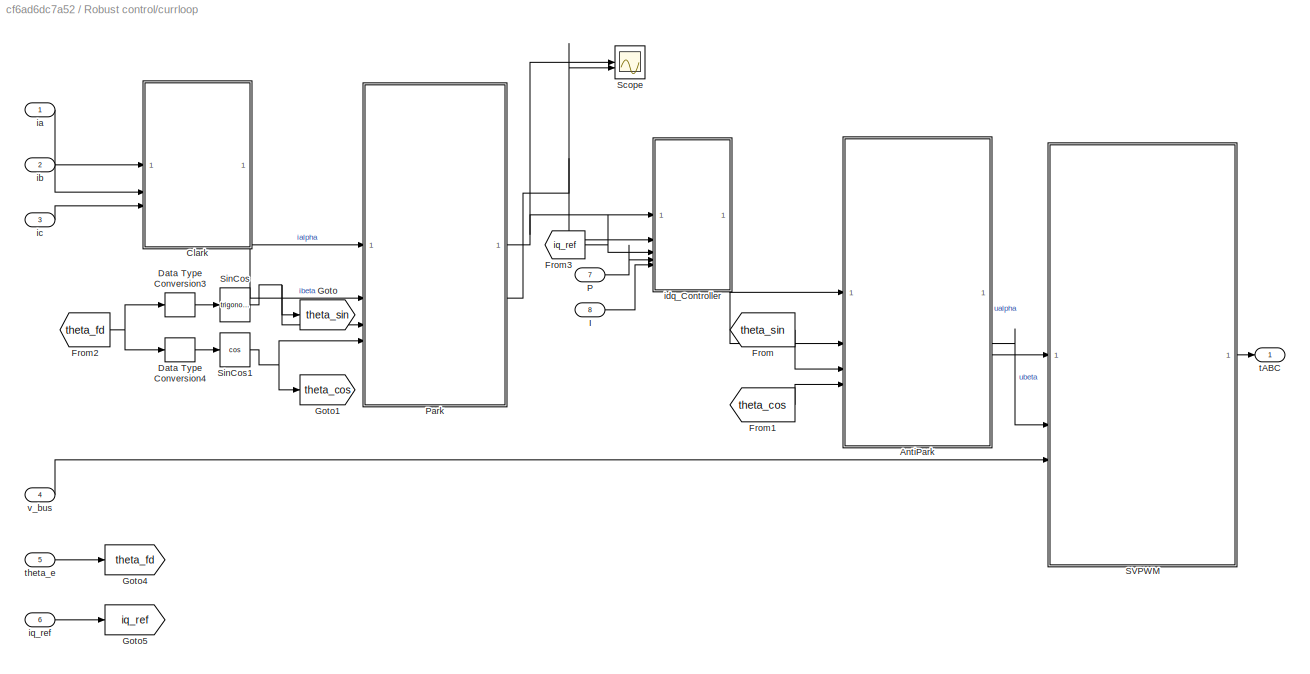
BLOCK [SubSystem] Robust control/currloop
  TreatAsAtomicUnit = on
BLOCK [SubSystem] Robust control/currloop/AntiPark
BLOCK [Sum] Robust control/currloop/AntiPark/Add
  IconShape = rectangular
  Inputs = +-
BLOCK [Sum] Robust control/currloop/AntiPark/Add1
  IconShape = rectangular
BLOCK [Product] Robust control/currloop/AntiPark/Product
BLOCK [Product] Robust control/currloop/AntiPark/Product1
BLOCK [Product] Robust control/currloop/AntiPark/Product2
BLOCK [Product] Robust control/currloop/AntiPark/Product3
BLOCK [Inport] Robust control/currloop/AntiPark/theta_cos
  Port = 4
BLOCK [Inport] Robust control/currloop/AntiPark/theta_sin
  Port = 3
BLOCK [Outport] Robust control/currloop/AntiPark/ualpha
  OutDataTypeStr = single
BLOCK [Outport] Robust control/currloop/AntiPark/ubeta
  OutDataTypeStr = single
  Port = 2
BLOCK [Inport] Robust control/currloop/AntiPark/ud
BLOCK [Inport] Robust control/currloop/AntiPark/uq
  Port = 2
BLOCK [SubSystem] Robust control/currloop/Clark
BLOCK [Sum] Robust control/currloop/Clark/Add
  AccumDataTypeStr = single
  IconShape = rectangular
  OutDataTypeStr = single
BLOCK [Sum] Robust control/currloop/Clark/Add1
  AccumDataTypeStr = single
  IconShape = rectangular
  Inputs = +-
  OutDataTypeStr = single
BLOCK [Sum] Robust control/currloop/Clark/Add2
  AccumDataTypeStr = single
  IconShape = rectangular
  Inputs = +-
  OutDataTypeStr = single
BLOCK [Gain] Robust control/currloop/Clark/Gain
  Gain = 2/3
  ParamDataTypeStr = single
BLOCK [Gain] Robust control/currloop/Clark/Gain1
  Gain = 1/3
  ParamDataTypeStr = single
BLOCK [Gain] Robust control/currloop/Clark/Gain2
  Gain = sqrt(3)/3
  ParamDataTypeStr = single
BLOCK [Inport] Robust control/currloop/Clark/ia
  OutDataTypeStr = single
BLOCK [Outport] Robust control/currloop/Clark/ialpha
  OutDataTypeStr = single
BLOCK [Inport] Robust control/currloop/Clark/ib
  OutDataTypeStr = single
  Port = 2
BLOCK [Outport] Robust control/currloop/Clark/ibeta
  OutDataTypeStr = single
  Port = 2
BLOCK [Inport] Robust control/currloop/Clark/ic
  OutDataTypeStr = single
  Port = 3
BLOCK [DataTypeConversion] Robust control/currloop/Data Type Conversion3
  OutDataTypeStr = single
  RndMeth = Floor
  SaturateOnIntegerOverflow = off
BLOCK [DataTypeConversion] Robust control/currloop/Data Type Conversion4
  OutDataTypeStr = single
  RndMeth = Floor
  SaturateOnIntegerOverflow = off
BLOCK [From] Robust control/currloop/From
  GotoTag = theta_sin
BLOCK [From] Robust control/currloop/From1
  GotoTag = theta_cos
BLOCK [From] Robust control/currloop/From2
  GotoTag = theta_fd
BLOCK [From] Robust control/currloop/From3
  GotoTag = iq_ref
BLOCK [Goto] Robust control/currloop/Goto
  GotoTag = theta_sin
BLOCK [Goto] Robust control/currloop/Goto1
  GotoTag = theta_cos
BLOCK [Goto] Robust control/currloop/Goto4
  GotoTag = theta_fd
BLOCK [Goto] Robust control/currloop/Goto5
  GotoTag = iq_ref
BLOCK [Inport] Robust control/currloop/I
  Port = 8
BLOCK [Inport] Robust control/currloop/P
  Port = 7
BLOCK [SubSystem] Robust control/currloop/Park
BLOCK [Sum] Robust control/currloop/Park/Add
  AccumDataTypeStr = single
  IconShape = rectangular
  OutDataTypeStr = single
BLOCK [Sum] Robust control/currloop/Park/Add1
  AccumDataTypeStr = single
  IconShape = rectangular
  Inputs = -+
  OutDataTypeStr = single
BLOCK [Product] Robust control/currloop/Park/Product
  OutDataTypeStr = single
BLOCK [Product] Robust control/currloop/Park/Product1
  OutDataTypeStr = single
BLOCK [Product] Robust control/currloop/Park/Product2
  OutDataTypeStr = single
BLOCK [Product] Robust control/currloop/Park/Product3
  OutDataTypeStr = single
BLOCK [Inport] Robust control/currloop/Park/ialpha
  OutDataTypeStr = single
BLOCK [Inport] Robust control/currloop/Park/ibeta
  OutDataTypeStr = single
  Port = 2
BLOCK [Outport] Robust control/currloop/Park/id
  OutDataTypeStr = single
BLOCK [Outport] Robust control/currloop/Park/iq
  OutDataTypeStr = single
  Port = 2
BLOCK [Inport] Robust control/currloop/Park/theta_cos
  OutDataTypeStr = single
  Port = 4
BLOCK [Inport] Robust control/currloop/Park/theta_sin
  OutDataTypeStr = single
  Port = 3
BLOCK [SubSystem] Robust control/currloop/SVPWM
  RTWSystemCode = Reusable function
  TreatAsAtomicUnit = on
BLOCK [SubSystem] Robust control/currloop/SVPWM/AntiClark
BLOCK [Gain] Robust control/currloop/SVPWM/AntiClark/Gain
  Gain = -1/2
  OutDataTypeStr = single
BLOCK [Gain] Robust control/currloop/SVPWM/AntiClark/Gain1
  Gain = sqrt(3)/2
  OutDataTypeStr = single
BLOCK [Sum] Robust control/currloop/SVPWM/AntiClark/Sum
  Inputs = |++
  OutDataTypeStr = single
BLOCK [Sum] Robust control/currloop/SVPWM/AntiClark/Sum1
  Inputs = -+|
  OutDataTypeStr = single
BLOCK [Outport] Robust control/currloop/SVPWM/AntiClark/Va
  OutDataTypeStr = single
BLOCK [Inport] Robust control/currloop/SVPWM/AntiClark/Valpha
  OutDataTypeStr = single
BLOCK [Outport] Robust control/currloop/SVPWM/AntiClark/Vb
  OutDataTypeStr = single
  Port = 2
BLOCK [Inport] Robust control/currloop/SVPWM/AntiClark/Vbeta
  OutDataTypeStr = single
  Port = 2
BLOCK [Outport] Robust control/currloop/SVPWM/AntiClark/Vc
  OutDataTypeStr = single
  Port = 3
BLOCK [Constant] Robust control/currloop/SVPWM/Constant
  OutDataTypeStr = single
  Value = 0.5
BLOCK [Product] Robust control/currloop/SVPWM/Divide
  Inputs = */
  OutDataTypeStr = single
BLOCK [Gain] Robust control/currloop/SVPWM/Gain
  Gain = -1
  OutDataTypeStr = single
BLOCK [Mux] Robust control/currloop/SVPWM/Mux
  DisplayOption = bar
  Inputs = 3
BLOCK [Gain] Robust control/currloop/SVPWM/PWM_HalfPeriod
  Gain = 8000
  OutDataTypeStr = single
BLOCK [Sum] Robust control/currloop/SVPWM/Sum
  Inputs = ++|
  OutDataTypeStr = single
BLOCK [Sum] Robust control/currloop/SVPWM/Sum1
  Inputs = |++
  OutDataTypeStr = single
BLOCK [Inport] Robust control/currloop/SVPWM/Valpha
  OutDataTypeStr = single
BLOCK [Inport] Robust control/currloop/SVPWM/Vbeta
  OutDataTypeStr = single
  Port = 2
BLOCK [SubSystem] Robust control/currloop/SVPWM/ei_t
BLOCK [Demux] Robust control/currloop/SVPWM/ei_t/Demux
  Outputs = 3
BLOCK [Gain] Robust control/currloop/SVPWM/ei_t/Gain
  Gain = -1/2
  OutDataTypeStr = single
BLOCK [MinMax] Robust control/currloop/SVPWM/ei_t/Min
  Inputs = 3
  OutDataTypeStr = single
BLOCK [MinMax] Robust control/currloop/SVPWM/ei_t/Min1
  Function = max
  Inputs = 3
  OutDataTypeStr = single
BLOCK [Sum] Robust control/currloop/SVPWM/ei_t/Sum
  Inputs = |++
  OutDataTypeStr = single
BLOCK [Inport] Robust control/currloop/SVPWM/ei_t/Vabc
  OutDataTypeStr = single
BLOCK [Outport] Robust control/currloop/SVPWM/ei_t/ei_t
  OutDataTypeStr = single
BLOCK [Outport] Robust control/currloop/SVPWM/tABC
  OutDataTypeStr = single
BLOCK [Inport] Robust control/currloop/SVPWM/v_bus
  OutDataTypeStr = single
  Port = 3
BLOCK [Scope] Robust control/currloop/Scope
  Floating = off
  NumInputPorts = 2
  ScopeSpecificationString = Simulink.scopes.TimeScopeBlockCfg('CurrentConfiguration', extmgr.ConfigurationSet(extmgr.Configuration('Core','General UI',true),extmgr.Configuration('Core','Source UI',true),extmgr.Configuration('Sources','WiredSimulink',true,'DataLoggingVariableName','ScopeData1'),extmgr.Configuration('Visuals','Time Domain',true,'SerializedDisplays',{struct('MinYLimReal','-0.06809','MaxYLimReal','0.15753','YLab...<+1527ch>
BLOCK [Trigonometry] Robust control/currloop/SinCos
BLOCK [Trigonometry] Robust control/currloop/SinCos1
  Operator = cos
BLOCK [Inport] Robust control/currloop/ia
BLOCK [Inport] Robust control/currloop/ib
  Port = 2
BLOCK [Inport] Robust control/currloop/ic
  Port = 3
BLOCK [SubSystem] Robust control/currloop/idq_Controller
BLOCK [Constant] Robust control/currloop/idq_Controller/Constant
  OutDataTypeStr = single
  Value = 0
BLOCK [Inport] Robust control/currloop/idq_Controller/I
  Port = 5
BLOCK [Inport] Robust control/currloop/idq_Controller/P
  Port = 4
BLOCK [Reference] Robust control/currloop/idq_Controller/PID Controller1  REF=slpidlib/PID Controller
  SourceBlock = slpidlib/PID Controller
  SourceType = PID 1dof
BLOCK [Reference] Robust control/currloop/idq_Controller/PID Controller2  REF=slpidlib/PID Controller
  SourceBlock = slpidlib/PID Controller
  SourceType = PID 1dof
BLOCK [Scope] Robust control/currloop/idq_Controller/Scope
  Floating = off
  NumInputPorts = 2
  ScopeSpecificationString = Simulink.scopes.TimeScopeBlockCfg('CurrentConfiguration', extmgr.ConfigurationSet(extmgr.Configuration('Core','General UI',true),extmgr.Configuration('Core','Source UI',true),extmgr.Configuration('Sources','WiredSimulink',true,'DataLoggingVariableName','ScopeData2'),extmgr.Configuration('Visuals','Time Domain',true,'SerializedDisplays',{struct('MinYLimReal','-11.58193','MaxYLimReal','20.30305','YL...<+1541ch>  <repeated x6 — deduplicated; at blocks: Scope>
BLOCK [Sum] Robust control/currloop/idq_Controller/Sum1
  AccumDataTypeStr = single
  Inputs = |+-
  OutDataTypeStr = single
BLOCK [Sum] Robust control/currloop/idq_Controller/Sum7
  AccumDataTypeStr = single
  Inputs = |+-
  OutDataTypeStr = single
BLOCK [Inport] Robust control/currloop/idq_Controller/id_fdbk
  OutDataTypeStr = single
BLOCK [Inport] Robust control/currloop/idq_Controller/iq_fdbk
  OutDataTypeStr = single
  Port = 2
BLOCK [Inport] Robust control/currloop/idq_Controller/iq_ref
  OutDataTypeStr = single
  Port = 3
BLOCK [Outport] Robust control/currloop/idq_Controller/ud_ref
  OutDataTypeStr = single
BLOCK [Outport] Robust control/currloop/idq_Controller/uq_ref
  OutDataTypeStr = single
  Port = 2
BLOCK [Inport] Robust control/currloop/iq_ref
  Port = 6
BLOCK [Outport] Robust control/currloop/tABC
BLOCK [Inport] Robust control/currloop/theta_e
  Port = 5
BLOCK [Inport] Robust control/currloop/v_bus
  Port = 4
BLOCK [Inport] Robust control/ia
BLOCK [Inport] Robust control/ib
  Port = 2
BLOCK [Inport] Robust control/ic
  Port = 3
BLOCK [Outport] Robust control/tABC
BLOCK [Inport] Robust control/theta_e
  Port = 5
BLOCK [Inport] Robust control/theta_output
  Port = 9
BLOCK [Inport] Robust control/theta_ref
  Port = 8
BLOCK [Inport] Robust control/v_bus
  Port = 4
BLOCK [Scope] Scope
  Commented = on
  Floating = off
  NumInputPorts = 1
  ScopeSpecificationString = Simulink.scopes.TimeScopeBlockCfg('CurrentConfiguration', extmgr.ConfigurationSet(extmgr.Configuration('Core','General UI',true),extmgr.Configuration('Core','Source UI',true),extmgr.Configuration('Sources','WiredSimulink',true,'DataLoggingVariableName','ScopeData1'),extmgr.Configuration('Visuals','Time Domain',true,'SerializedDisplays',{struct('MinYLimReal','-0.1875','MaxYLimReal','1.6875','YLabel...<+1511ch>
BLOCK [Scope] Scope1
  Commented = on
  Floating = off
  NumInputPorts = 1
  ScopeSpecificationString = Simulink.scopes.TimeScopeBlockCfg('CurrentConfiguration', extmgr.ConfigurationSet(extmgr.Configuration('Core','General UI',true),extmgr.Configuration('Core','Source UI',true),extmgr.Configuration('Sources','WiredSimulink',true,'DataLoggingVariableName','ScopeData2'),extmgr.Configuration('Visuals','Time Domain',true,'SerializedDisplays',{struct('MinYLimReal','-46.08544','MaxYLimReal','414.76896','Y...<+1533ch>
BLOCK [Scope] Scope10
  Commented = on
  Floating = off
  NumInputPorts = 1
  ScopeSpecificationString = Simulink.scopes.TimeScopeBlockCfg('CurrentConfiguration', extmgr.ConfigurationSet(extmgr.Configuration('Core','General UI',true),extmgr.Configuration('Core','Source UI',true),extmgr.Configuration('Sources','WiredSimulink',true,'DataLoggingVariableName','ScopeData2'),extmgr.Configuration('Visuals','Time Domain',true,'SerializedDisplays',{struct('MinYLimReal','-0.7854','MaxYLimReal','7.06862','YLabe...<+1532ch>
BLOCK [Scope] Scope11
  Commented = on
  Floating = off
  NumInputPorts = 1
  ScopeSpecificationString = Simulink.scopes.TimeScopeBlockCfg('CurrentConfiguration', extmgr.ConfigurationSet(extmgr.Configuration('Core','General UI',true),extmgr.Configuration('Core','Source UI',true),extmgr.Configuration('Sources','WiredSimulink',true,'DataLoggingVariableName','ScopeData3'),extmgr.Configuration('Visuals','Time Domain',true,'SerializedDisplays',{struct('MinYLimReal','-1782.35986','MaxYLimReal','2001.97852'...<+1625ch>
BLOCK [Scope] Scope12
  Commented = on
  Floating = off
  NameLocation = top
  NumInputPorts = 1
  ScopeSpecificationString = Simulink.scopes.TimeScopeBlockCfg('CurrentConfiguration', extmgr.ConfigurationSet(extmgr.Configuration('Core','General UI',true),extmgr.Configuration('Core','Source UI',true),extmgr.Configuration('Sources','WiredSimulink',true,'DataLoggingVariableName','ScopeData4'),extmgr.Configuration('Visuals','Time Domain',true,'SerializedDisplays',{struct('MinYLimReal','-18.43722','MaxYLimReal','18.43709','YL...<+1593ch>
BLOCK [Scope] Scope13
  Commented = on
  Floating = off
  NumInputPorts = 1
  ScopeSpecificationString = Simulink.scopes.TimeScopeBlockCfg('CurrentConfiguration', extmgr.ConfigurationSet(extmgr.Configuration('Core','General UI',true),extmgr.Configuration('Core','Source UI',true),extmgr.Configuration('Sources','WiredSimulink',true,'DataLoggingVariableName','ScopeData5'),extmgr.Configuration('Visuals','Time Domain',true,'SerializedDisplays',{struct('MinYLimReal','-17.83972','MaxYLimReal','17.83445','YL...<+1604ch>
BLOCK [Scope] Scope14
  Commented = on
  Floating = off
  NameLocation = left
  NumInputPorts = 1
  ScopeSpecificationString = Simulink.scopes.TimeScopeBlockCfg('CurrentConfiguration', extmgr.ConfigurationSet(extmgr.Configuration('Core','General UI',true),extmgr.Configuration('Core','Source UI',true),extmgr.Configuration('Sources','WiredSimulink',true,'DataLoggingVariableName','ScopeData6'),extmgr.Configuration('Visuals','Time Domain',true,'SerializedDisplays',{struct('MinYLimReal','-17.83972','MaxYLimReal','17.83445','YL...<+1604ch>
BLOCK [Scope] Scope15
  Commented = on
  Floating = off
  NumInputPorts = 1
  ScopeSpecificationString = Simulink.scopes.TimeScopeBlockCfg('CurrentConfiguration', extmgr.ConfigurationSet(extmgr.Configuration('Core','General UI',true),extmgr.Configuration('Core','Source UI',true),extmgr.Configuration('Sources','WiredSimulink',true,'DataLoggingVariableName','ScopeData4'),extmgr.Configuration('Visuals','Time Domain',true,'SerializedDisplays',{struct('MinYLimReal','-1782.35986','MaxYLimReal','2001.97852'...<+1625ch>
BLOCK [Scope] Scope16
  Commented = on
  Floating = off
  NameLocation = top
  NumInputPorts = 1
  ScopeSpecificationString = Simulink.scopes.TimeScopeBlockCfg('CurrentConfiguration', extmgr.ConfigurationSet(extmgr.Configuration('Core','General UI',true),extmgr.Configuration('Core','Source UI',true),extmgr.Configuration('Sources','WiredSimulink',true,'DataLoggingVariableName','ScopeData5'),extmgr.Configuration('Visuals','Time Domain',true,'SerializedDisplays',{struct('MinYLimReal','-18.43722','MaxYLimReal','18.43709','YL...<+1593ch>
BLOCK [Scope] Scope17
  Commented = on
  Floating = off
  NameLocation = right
  NumInputPorts = 1
  ScopeSpecificationString = Simulink.scopes.TimeScopeBlockCfg('CurrentConfiguration', extmgr.ConfigurationSet(extmgr.Configuration('Core','General UI',true),extmgr.Configuration('Core','Source UI',true),extmgr.Configuration('Sources','WiredSimulink',true,'DataLoggingVariableName','ScopeData7'),extmgr.Configuration('Visuals','Time Domain',true,'SerializedDisplays',{struct('MinYLimReal','-3.92699','MaxYLimReal','3.92699','YLab...<+1612ch>
BLOCK [Scope] Scope18
  Commented = on
  Floating = off
  NumInputPorts = 1
  ScopeSpecificationString = Simulink.scopes.TimeScopeBlockCfg('CurrentConfiguration', extmgr.ConfigurationSet(extmgr.Configuration('Core','General UI',true),extmgr.Configuration('Core','Source UI',true),extmgr.Configuration('Sources','WiredSimulink',true,'DataLoggingVariableName','ScopeData6'),extmgr.Configuration('Visuals','Time Domain',true,'SerializedDisplays',{struct('MinYLimReal','-17.83972','MaxYLimReal','17.83445','YL...<+1604ch>
BLOCK [Scope] Scope19
  Commented = on
  Floating = off
  NumInputPorts = 1
  ScopeSpecificationString = Simulink.scopes.TimeScopeBlockCfg('CurrentConfiguration', extmgr.ConfigurationSet(extmgr.Configuration('Core','General UI',true),extmgr.Configuration('Core','Source UI',true),extmgr.Configuration('Sources','WiredSimulink',true,'DataLoggingVariableName','ScopeData8'),extmgr.Configuration('Visuals','Time Domain',true,'SerializedDisplays',{struct('MinYLimReal','-1782.35986','MaxYLimReal','2001.97852'...<+1625ch>
BLOCK [Scope] Scope2
  Commented = on
  Floating = off
  NumInputPorts = 1
  ScopeSpecificationString = Simulink.scopes.TimeScopeBlockCfg('CurrentConfiguration', extmgr.ConfigurationSet(extmgr.Configuration('Core','General UI',true),extmgr.Configuration('Core','Source UI',true),extmgr.Configuration('Sources','WiredSimulink',true,'DataLoggingVariableName','ScopeData1'),extmgr.Configuration('Visuals','Time Domain',true,'SerializedDisplays',{struct('MinYLimReal','-37.51054','MaxYLimReal','337.59484','Y...<+1534ch>
BLOCK [Scope] Scope20
  Commented = on
  Floating = off
  NameLocation = left
  NumInputPorts = 1
  ScopeSpecificationString = Simulink.scopes.TimeScopeBlockCfg('CurrentConfiguration', extmgr.ConfigurationSet(extmgr.Configuration('Core','General UI',true),extmgr.Configuration('Core','Source UI',true),extmgr.Configuration('Sources','WiredSimulink',true,'DataLoggingVariableName','ScopeData7'),extmgr.Configuration('Visuals','Time Domain',true,'SerializedDisplays',{struct('MinYLimReal','-17.83972','MaxYLimReal','17.83445','YL...<+1604ch>
BLOCK [Scope] Scope21
  Commented = on
  Floating = off
  NumInputPorts = 1
  ScopeSpecificationString = Simulink.scopes.TimeScopeBlockCfg('CurrentConfiguration', extmgr.ConfigurationSet(extmgr.Configuration('Core','General UI',true),extmgr.Configuration('Core','Source UI',true),extmgr.Configuration('Sources','WiredSimulink',true,'DataLoggingVariableName','ScopeData9'),extmgr.Configuration('Visuals','Time Domain',true,'SerializedDisplays',{struct('MinYLimReal','-0.1309','MaxYLimReal','1.1781','YLabel...<+1852ch>
BLOCK [Scope] Scope22
  Commented = on
  Floating = off
  NameLocation = right
  NumInputPorts = 1
  ScopeSpecificationString = Simulink.scopes.TimeScopeBlockCfg('CurrentConfiguration', extmgr.ConfigurationSet(extmgr.Configuration('Core','General UI',true),extmgr.Configuration('Core','Source UI',true),extmgr.Configuration('Sources','WiredSimulink',true,'DataLoggingVariableName','ScopeData8'),extmgr.Configuration('Visuals','Time Domain',true,'SerializedDisplays',{struct('MinYLimReal','-3.92699','MaxYLimReal','3.92699','YLab...<+1612ch>
BLOCK [Scope] Scope23
  Commented = on
  Floating = off
  NumInputPorts = 1
  ScopeSpecificationString = Simulink.scopes.TimeScopeBlockCfg('CurrentConfiguration', extmgr.ConfigurationSet(extmgr.Configuration('Core','General UI',true),extmgr.Configuration('Core','Source UI',true),extmgr.Configuration('Sources','WiredSimulink',true,'DataLoggingVariableName','ScopeData9'),extmgr.Configuration('Visuals','Time Domain',true,'SerializedDisplays',{struct('MinYLimReal','-1782.35986','MaxYLimReal','2001.97852'...<+1625ch>
BLOCK [Scope] Scope24
  Commented = on
  Floating = off
  NumInputPorts = 1
  ScopeSpecificationString = Simulink.scopes.TimeScopeBlockCfg('CurrentConfiguration', extmgr.ConfigurationSet(extmgr.Configuration('Core','General UI',true),extmgr.Configuration('Core','Source UI',true),extmgr.Configuration('Sources','WiredSimulink',true,'DataLoggingVariableName','ScopeData10'),extmgr.Configuration('Visuals','Time Domain',true,'SerializedDisplays',{struct('MinYLimReal','-0.13385','MaxYLimReal','1.20462','YLa...<+1586ch>
BLOCK [Scope] Scope25
  Commented = on
  Floating = off
  NumInputPorts = 1
  ScopeSpecificationString = Simulink.scopes.TimeScopeBlockCfg('CurrentConfiguration', extmgr.ConfigurationSet(extmgr.Configuration('Core','General UI',true),extmgr.Configuration('Core','Source UI',true),extmgr.Configuration('Sources','WiredSimulink',true,'DataLoggingVariableName','ScopeData1'),extmgr.Configuration('Visuals','Time Domain',true,'SerializedDisplays',{struct('MinYLimReal','-0.14082','MaxYLimReal','1.02325','YLab...<+1498ch>
BLOCK [Scope] Scope26
  Commented = on
  Floating = off
  NumInputPorts = 1
  ScopeSpecificationString = Simulink.scopes.TimeScopeBlockCfg('CurrentConfiguration', extmgr.ConfigurationSet(extmgr.Configuration('Core','General UI',true),extmgr.Configuration('Core','Source UI',true),extmgr.Configuration('Sources','WiredSimulink',true,'DataLoggingVariableName','ScopeData2'),extmgr.Configuration('Visuals','Time Domain',true,'SerializedDisplays',{struct('MinYLimReal','-0.1309','MaxYLimReal','1.1781','YLabel...<+1497ch>
BLOCK [Scope] Scope27
  Commented = on
  Floating = off
  NumInputPorts = 1
  ScopeSpecificationString = Simulink.scopes.TimeScopeBlockCfg('CurrentConfiguration', extmgr.ConfigurationSet(extmgr.Configuration('Core','General UI',true),extmgr.Configuration('Core','Source UI',true),extmgr.Configuration('Sources','WiredSimulink',true,'DataLoggingVariableName','ScopeData1'),extmgr.Configuration('Visuals','Time Domain',true,'SerializedDisplays',{struct('MinYLimReal','-0.78452','MaxYLimReal','7.06071','YLab...<+1543ch>
BLOCK [Scope] Scope28
  Commented = on
  Floating = off
  NumInputPorts = 1
  ScopeSpecificationString = Simulink.scopes.TimeScopeBlockCfg('CurrentConfiguration', extmgr.ConfigurationSet(extmgr.Configuration('Core','General UI',true),extmgr.Configuration('Core','Source UI',true),extmgr.Configuration('Sources','WiredSimulink',true,'DataLoggingVariableName','ScopeData1'),extmgr.Configuration('Visuals','Time Domain',true,'SerializedDisplays',{struct('MinYLimReal','-1782.35986','MaxYLimReal','2001.97852'...<+1625ch>
BLOCK [Scope] Scope29
  Commented = on
  Floating = off
  NumInputPorts = 1
  ScopeSpecificationString = Simulink.scopes.TimeScopeBlockCfg('CurrentConfiguration', extmgr.ConfigurationSet(extmgr.Configuration('Core','General UI',true),extmgr.Configuration('Core','Source UI',true),extmgr.Configuration('Sources','WiredSimulink',true,'DataLoggingVariableName','ScopeData2'),extmgr.Configuration('Visuals','Time Domain',true,'SerializedDisplays',{struct('MinYLimReal','-1.01528','MaxYLimReal','9.13748','YLab...<+1543ch>
BLOCK [Scope] Scope3
  Commented = on
  Floating = off
  NumInputPorts = 1
  ScopeSpecificationString = Simulink.scopes.TimeScopeBlockCfg('CurrentConfiguration', extmgr.ConfigurationSet(extmgr.Configuration('Core','General UI',true),extmgr.Configuration('Core','Source UI',true),extmgr.Configuration('Sources','WiredSimulink',true,'DataLoggingVariableName','ScopeData4'),extmgr.Configuration('Visuals','Time Domain',true,'SerializedDisplays',{struct('MinYLimReal','-37.51054','MaxYLimReal','337.59484','Y...<+1534ch>
BLOCK [Scope] Scope30
  Commented = on
  Floating = off
  NumInputPorts = 1
  ScopeSpecificationString = Simulink.scopes.TimeScopeBlockCfg('CurrentConfiguration', extmgr.ConfigurationSet(extmgr.Configuration('Core','General UI',true),extmgr.Configuration('Core','Source UI',true),extmgr.Configuration('Sources','WiredSimulink',true,'DataLoggingVariableName','ScopeData1'),extmgr.Configuration('Visuals','Time Domain',true,'SerializedDisplays',{struct('MinYLimReal','-1.37892','MaxYLimReal','5.33651','YLab...<+1555ch>
BLOCK [Scope] Scope31
  Commented = on
  Floating = off
  NumInputPorts = 1
  ScopeSpecificationString = Simulink.scopes.TimeScopeBlockCfg('CurrentConfiguration', extmgr.ConfigurationSet(extmgr.Configuration('Core','General UI',true),extmgr.Configuration('Core','Source UI',true),extmgr.Configuration('Sources','WiredSimulink',true,'DataLoggingVariableName','ScopeData3'),extmgr.Configuration('Visuals','Time Domain',true,'SerializedDisplays',{struct('MinYLimReal','-17.83972','MaxYLimReal','17.83445','YL...<+1604ch>
BLOCK [Scope] Scope32
  Commented = on
  Floating = off
  NumInputPorts = 1
  ScopeSpecificationString = Simulink.scopes.TimeScopeBlockCfg('CurrentConfiguration', extmgr.ConfigurationSet(extmgr.Configuration('Core','General UI',true),extmgr.Configuration('Core','Source UI',true),extmgr.Configuration('Sources','WiredSimulink',true,'DataLoggingVariableName','ScopeData3'),extmgr.Configuration('Visuals','Time Domain',true,'SerializedDisplays',{struct('MinYLimReal','-4.18857','MaxYLimReal','12.59445','YLa...<+1549ch>
BLOCK [Scope] Scope33
  Commented = on
  Floating = off
  NumInputPorts = 1
  ScopeSpecificationString = Simulink.scopes.TimeScopeBlockCfg('CurrentConfiguration', extmgr.ConfigurationSet(extmgr.Configuration('Core','General UI',true),extmgr.Configuration('Core','Source UI',true),extmgr.Configuration('Sources','WiredSimulink',true,'DataLoggingVariableName','ScopeData8'),extmgr.Configuration('Visuals','Time Domain',true,'SerializedDisplays',{struct('MinYLimReal','-0.16996','MaxYLimReal','1.5296','YLabe...<+1499ch>
BLOCK [Scope] Scope34
  Commented = on
  Floating = off
  NumInputPorts = 1
  ScopeSpecificationString = Simulink.scopes.TimeScopeBlockCfg('CurrentConfiguration', extmgr.ConfigurationSet(extmgr.Configuration('Core','General UI',true),extmgr.Configuration('Core','Source UI',true),extmgr.Configuration('Sources','WiredSimulink',true,'DataLoggingVariableName','ScopeData6'),extmgr.Configuration('Visuals','Time Domain',true,'SerializedDisplays',{struct('MinYLimReal','-1782.35986','MaxYLimReal','2001.97852'...<+1625ch>  <repeated x3 — deduplicated; at blocks: Scope34, Scope38, Scope43>
BLOCK [Scope] Scope35
  Commented = on
  Floating = off
  NumInputPorts = 1
  ScopeSpecificationString = Simulink.scopes.TimeScopeBlockCfg('CurrentConfiguration', extmgr.ConfigurationSet(extmgr.Configuration('Core','General UI',true),extmgr.Configuration('Core','Source UI',true),extmgr.Configuration('Sources','WiredSimulink',true,'DataLoggingVariableName','ScopeData7'),extmgr.Configuration('Visuals','Time Domain',true,'SerializedDisplays',{struct('MinYLimReal','-0.0109','MaxYLimReal','0.08949','YLabe...<+1543ch>
BLOCK [Scope] Scope36
  Commented = on
  Floating = off
  NumInputPorts = 1
  ScopeSpecificationString = Simulink.scopes.TimeScopeBlockCfg('CurrentConfiguration', extmgr.ConfigurationSet(extmgr.Configuration('Core','General UI',true),extmgr.Configuration('Core','Source UI',true),extmgr.Configuration('Sources','WiredSimulink',true,'DataLoggingVariableName','ScopeData4'),extmgr.Configuration('Visuals','Time Domain',true,'SerializedDisplays',{struct('MinYLimReal','-17.83972','MaxYLimReal','17.83445','YL...<+1604ch>
BLOCK [Scope] Scope37
  Commented = on
  Floating = off
  NameLocation = right
  NumInputPorts = 1
  ScopeSpecificationString = Simulink.scopes.TimeScopeBlockCfg('CurrentConfiguration', extmgr.ConfigurationSet(extmgr.Configuration('Core','General UI',true),extmgr.Configuration('Core','Source UI',true),extmgr.Configuration('Sources','WiredSimulink',true,'DataLoggingVariableName','ScopeData5'),extmgr.Configuration('Visuals','Time Domain',true,'SerializedDisplays',{struct('MinYLimReal','-0.68941','MaxYLimReal','5.03714','YLab...<+2198ch>
BLOCK [Scope] Scope38
  Commented = on
  Floating = off
  NumInputPorts = 1
BLOCK [Scope] Scope39
  Commented = on
  Floating = off
  NumInputPorts = 1
  ScopeSpecificationString = Simulink.scopes.TimeScopeBlockCfg('CurrentConfiguration', extmgr.ConfigurationSet(extmgr.Configuration('Core','General UI',true),extmgr.Configuration('Core','Source UI',true),extmgr.Configuration('Sources','WiredSimulink',true,'DataLoggingVariableName','ScopeData2'),extmgr.Configuration('Visuals','Time Domain',true,'SerializedDisplays',{struct('MinYLimReal','-1782.35986','MaxYLimReal','2001.97852'...<+1625ch>
BLOCK [Scope] Scope4
  Commented = on
  Floating = off
  NumInputPorts = 1
  ScopeSpecificationString = Simulink.scopes.TimeScopeBlockCfg('CurrentConfiguration', extmgr.ConfigurationSet(extmgr.Configuration('Core','General UI',true),extmgr.Configuration('Core','Source UI',true),extmgr.Configuration('Sources','WiredSimulink',true,'DataLoggingVariableName','ScopeData2'),extmgr.Configuration('Visuals','Time Domain',true,'SerializedDisplays',{struct('MinYLimReal','-1.78077','MaxYLimReal','1.7888','YLabe...<+1516ch>
BLOCK [Scope] Scope40
  Commented = on
  Floating = off
  NumInputPorts = 1
  ScopeSpecificationString = Simulink.scopes.TimeScopeBlockCfg('CurrentConfiguration', extmgr.ConfigurationSet(extmgr.Configuration('Core','General UI',true),extmgr.Configuration('Core','Source UI',true),extmgr.Configuration('Sources','WiredSimulink',true,'DataLoggingVariableName','ScopeData3'),extmgr.Configuration('Visuals','Time Domain',true,'SerializedDisplays',{struct('MinYLimReal','-17.83972','MaxYLimReal','17.83445','YL...<+1604ch>
BLOCK [Scope] Scope41
  Commented = on
  Floating = off
  NameLocation = left
  NumInputPorts = 1
  ScopeSpecificationString = Simulink.scopes.TimeScopeBlockCfg('CurrentConfiguration', extmgr.ConfigurationSet(extmgr.Configuration('Core','General UI',true),extmgr.Configuration('Core','Source UI',true),extmgr.Configuration('Sources','WiredSimulink',true,'DataLoggingVariableName','ScopeData4'),extmgr.Configuration('Visuals','Time Domain',true,'SerializedDisplays',{struct('MinYLimReal','-17.83972','MaxYLimReal','17.83445','YL...<+1604ch>
BLOCK [Scope] Scope42
  Commented = on
  Floating = off
  NameLocation = right
  NumInputPorts = 1
  ScopeSpecificationString = Simulink.scopes.TimeScopeBlockCfg('CurrentConfiguration', extmgr.ConfigurationSet(extmgr.Configuration('Core','General UI',true),extmgr.Configuration('Core','Source UI',true),extmgr.Configuration('Sources','WiredSimulink',true,'DataLoggingVariableName','ScopeData5'),extmgr.Configuration('Visuals','Time Domain',true,'SerializedDisplays',{struct('MinYLimReal','-3.92699','MaxYLimReal','3.92699','YLab...<+1612ch>
BLOCK [Scope] Scope43
  Commented = on
  Floating = off
  NumInputPorts = 1
BLOCK [Scope] Scope44
  Commented = on
  Floating = off
  NumInputPorts = 1
  ScopeSpecificationString = Simulink.scopes.TimeScopeBlockCfg('CurrentConfiguration', extmgr.ConfigurationSet(extmgr.Configuration('Core','General UI',true),extmgr.Configuration('Core','Source UI',true),extmgr.Configuration('Sources','WiredSimulink',true,'DataLoggingVariableName','ScopeData7'),extmgr.Configuration('Visuals','Time Domain',true,'SerializedDisplays',{struct('MinYLimReal','-0.13385','MaxYLimReal','1.20462','YLab...<+1900ch>
BLOCK [Scope] Scope45
  Commented = on
  Floating = off
  NumInputPorts = 1
  ScopeSpecificationString = Simulink.scopes.TimeScopeBlockCfg('CurrentConfiguration', extmgr.ConfigurationSet(extmgr.Configuration('Core','General UI',true),extmgr.Configuration('Core','Source UI',true),extmgr.Configuration('Sources','WiredSimulink',true,'DataLoggingVariableName','ScopeData1'),extmgr.Configuration('Visuals','Time Domain',true,'SerializedDisplays',{struct('MinYLimReal','-37.51054','MaxYLimReal','337.59484','Y...<+1534ch>
BLOCK [Scope] Scope46
  Commented = on
  Floating = off
  NumInputPorts = 1
  ScopeSpecificationString = Simulink.scopes.TimeScopeBlockCfg('CurrentConfiguration', extmgr.ConfigurationSet(extmgr.Configuration('Core','General UI',true),extmgr.Configuration('Core','Source UI',true),extmgr.Configuration('Sources','WiredSimulink',true,'DataLoggingVariableName','ScopeData9'),extmgr.Configuration('Visuals','Time Domain',true,'SerializedDisplays',{struct('MinYLimReal','-17.83972','MaxYLimReal','17.83445','YL...<+1604ch>
BLOCK [Scope] Scope47
  Commented = on
  Floating = off
  NameLocation = left
  NumInputPorts = 1
  ScopeSpecificationString = Simulink.scopes.TimeScopeBlockCfg('CurrentConfiguration', extmgr.ConfigurationSet(extmgr.Configuration('Core','General UI',true),extmgr.Configuration('Core','Source UI',true),extmgr.Configuration('Sources','WiredSimulink',true,'DataLoggingVariableName','ScopeData10'),extmgr.Configuration('Visuals','Time Domain',true,'SerializedDisplays',{struct('MinYLimReal','-17.83972','MaxYLimReal','17.83445','Y...<+1605ch>
BLOCK [Scope] Scope48
  Commented = on
  Floating = off
  NameLocation = right
  NumInputPorts = 1
  ScopeSpecificationString = Simulink.scopes.TimeScopeBlockCfg('CurrentConfiguration', extmgr.ConfigurationSet(extmgr.Configuration('Core','General UI',true),extmgr.Configuration('Core','Source UI',true),extmgr.Configuration('Sources','WiredSimulink',true,'DataLoggingVariableName','ScopeData11'),extmgr.Configuration('Visuals','Time Domain',true,'SerializedDisplays',{struct('MinYLimReal','-3.92699','MaxYLimReal','3.92699','YLa...<+1613ch>
BLOCK [Scope] Scope49
  Commented = on
  Floating = off
  NumInputPorts = 1
  ScopeSpecificationString = Simulink.scopes.TimeScopeBlockCfg('CurrentConfiguration', extmgr.ConfigurationSet(extmgr.Configuration('Core','General UI',true),extmgr.Configuration('Core','Source UI',true),extmgr.Configuration('Sources','WiredSimulink',true,'DataLoggingVariableName','ScopeData12'),extmgr.Configuration('Visuals','Time Domain',true,'SerializedDisplays',{struct('MinYLimReal','-1782.35986','MaxYLimReal','2001.97852...<+1627ch>
BLOCK [Scope] Scope5
  Commented = on
  Floating = off
  NumInputPorts = 1
  ScopeSpecificationString = Simulink.scopes.TimeScopeBlockCfg('CurrentConfiguration', extmgr.ConfigurationSet(extmgr.Configuration('Core','General UI',true),extmgr.Configuration('Core','Source UI',true),extmgr.Configuration('Sources','WiredSimulink',true,'DataLoggingVariableName','ScopeData3'),extmgr.Configuration('Visuals','Time Domain',true,'SerializedDisplays',{struct('MinYLimReal','-0.12544','MaxYLimReal','1.12895','YLab...<+1504ch>
BLOCK [Scope] Scope50
  Commented = on
  Floating = off
  NumInputPorts = 1
  ScopeSpecificationString = Simulink.scopes.TimeScopeBlockCfg('CurrentConfiguration', extmgr.ConfigurationSet(extmgr.Configuration('Core','General UI',true),extmgr.Configuration('Core','Source UI',true),extmgr.Configuration('Sources','WiredSimulink',true,'DataLoggingVariableName','ScopeData13'),extmgr.Configuration('Visuals','Time Domain',true,'SerializedDisplays',{struct('MinYLimReal','-0.13385','MaxYLimReal','1.20462','YLa...<+1586ch>
BLOCK [Scope] Scope51
  Commented = on
  Floating = off
  NumInputPorts = 1
  ScopeSpecificationString = Simulink.scopes.TimeScopeBlockCfg('CurrentConfiguration', extmgr.ConfigurationSet(extmgr.Configuration('Core','General UI',true),extmgr.Configuration('Core','Source UI',true),extmgr.Configuration('Sources','WiredSimulink',true,'DataLoggingVariableName','ScopeData2'),extmgr.Configuration('Visuals','Time Domain',true,'SerializedDisplays',{struct('MinYLimReal','-2.26511','MaxYLimReal','2.26508','YLab...<+1521ch>
BLOCK [Scope] Scope52
  Commented = on
  Floating = off
  NumInputPorts = 1
  ScopeSpecificationString = Simulink.scopes.TimeScopeBlockCfg('CurrentConfiguration', extmgr.ConfigurationSet(extmgr.Configuration('Core','General UI',true),extmgr.Configuration('Core','Source UI',true),extmgr.Configuration('Sources','WiredSimulink',true,'DataLoggingVariableName','ScopeData1'),extmgr.Configuration('Visuals','Time Domain',true,'SerializedDisplays',{struct('MinYLimReal','-1.02221','MaxYLimReal','9.19991','YLab...<+1521ch>
BLOCK [Scope] Scope53
  Commented = on
  Floating = off
  NumInputPorts = 1
  ScopeSpecificationString = Simulink.scopes.TimeScopeBlockCfg('CurrentConfiguration', extmgr.ConfigurationSet(extmgr.Configuration('Core','General UI',true),extmgr.Configuration('Core','Source UI',true),extmgr.Configuration('Sources','WiredSimulink',true,'DataLoggingVariableName','ScopeData2'),extmgr.Configuration('Visuals','Time Domain',true,'SerializedDisplays',{struct('MinYLimReal','-1.37892','MaxYLimReal','5.33651','YLab...<+1555ch>
BLOCK [Scope] Scope54
  Commented = on
  Floating = off
  NumInputPorts = 1
  ScopeSpecificationString = Simulink.scopes.TimeScopeBlockCfg('CurrentConfiguration', extmgr.ConfigurationSet(extmgr.Configuration('Core','General UI',true),extmgr.Configuration('Core','Source UI',true),extmgr.Configuration('Sources','WiredSimulink',true,'DataLoggingVariableName','ScopeData3'),extmgr.Configuration('Visuals','Time Domain',true,'SerializedDisplays',{struct('MinYLimReal','-37.51054','MaxYLimReal','337.59484','Y...<+1534ch>
BLOCK [Scope] Scope55
  Commented = on
  Floating = off
  NumInputPorts = 1
  ScopeSpecificationString = Simulink.scopes.TimeScopeBlockCfg('CurrentConfiguration', extmgr.ConfigurationSet(extmgr.Configuration('Core','General UI',true),extmgr.Configuration('Core','Source UI',true),extmgr.Configuration('Sources','WiredSimulink',true,'DataLoggingVariableName','ScopeData1'),extmgr.Configuration('Visuals','Time Domain',true,'SerializedDisplays',{struct('MinYLimReal','-0.59739','MaxYLimReal','5.37654','YLab...<+1565ch>
BLOCK [Scope] Scope56
  Commented = on
  Floating = off
  NumInputPorts = 1
  ScopeSpecificationString = Simulink.scopes.TimeScopeBlockCfg('CurrentConfiguration', extmgr.ConfigurationSet(extmgr.Configuration('Core','General UI',true),extmgr.Configuration('Core','Source UI',true),extmgr.Configuration('Sources','WiredSimulink',true,'DataLoggingVariableName','ScopeData7'),extmgr.Configuration('Visuals','Time Domain',true,'SerializedDisplays',{struct('MinYLimReal','-3.92695','MaxYLimReal','3.92668','YLab...<+1545ch>
BLOCK [Scope] Scope57
  Floating = off
  NumInputPorts = 1
  ScopeSpecificationString = Simulink.scopes.TimeScopeBlockCfg('CurrentConfiguration', extmgr.ConfigurationSet(extmgr.Configuration('Core','General UI',true),extmgr.Configuration('Core','Source UI',true),extmgr.Configuration('Sources','WiredSimulink',true,'DataLoggingVariableName','ScopeData1'),extmgr.Configuration('Visuals','Time Domain',true,'SerializedDisplays',{struct('MinYLimReal','-0.14081','MaxYLimReal','1.26731','YLab...<+1490ch>
BLOCK [Scope] Scope6
  Commented = on
  Floating = off
  NumInputPorts = 1
  ScopeSpecificationString = Simulink.scopes.TimeScopeBlockCfg('CurrentConfiguration', extmgr.ConfigurationSet(extmgr.Configuration('Core','General UI',true),extmgr.Configuration('Core','Source UI',true),extmgr.Configuration('Sources','WiredSimulink',true,'DataLoggingVariableName','ScopeData4'),extmgr.Configuration('Visuals','Time Domain',true,'SerializedDisplays',{struct('MinYLimReal','-37.51054','MaxYLimReal','337.59484','Y...<+1534ch>
BLOCK [Scope] Scope7
  Commented = on
  Floating = off
  NumInputPorts = 1
  ScopeSpecificationString = Simulink.scopes.TimeScopeBlockCfg('CurrentConfiguration', extmgr.ConfigurationSet(extmgr.Configuration('Core','General UI',true),extmgr.Configuration('Core','Source UI',true),extmgr.Configuration('Sources','WiredSimulink',true,'DataLoggingVariableName','ScopeData5'),extmgr.Configuration('Visuals','Time Domain',true,'SerializedDisplays',{struct('MinYLimReal','-1.78077','MaxYLimReal','1.7888','YLabe...<+1517ch>
BLOCK [Scope] Scope8
  Commented = on
  Floating = off
  NumInputPorts = 1
  ScopeSpecificationString = Simulink.scopes.TimeScopeBlockCfg('CurrentConfiguration', extmgr.ConfigurationSet(extmgr.Configuration('Core','General UI',true),extmgr.Configuration('Core','Source UI',true),extmgr.Configuration('Sources','WiredSimulink',true,'DataLoggingVariableName','ScopeData1'),extmgr.Configuration('Visuals','Time Domain',true,'SerializedDisplays',{struct('MinYLimReal','-39.19716','MaxYLimReal','352.77441','Y...<+1534ch>
BLOCK [Scope] Scope9
  Commented = on
  Floating = off
  NumInputPorts = 1
  ScopeSpecificationString = Simulink.scopes.TimeScopeBlockCfg('CurrentConfiguration', extmgr.ConfigurationSet(extmgr.Configuration('Core','General UI',true),extmgr.Configuration('Core','Source UI',true),extmgr.Configuration('Sources','WiredSimulink',true,'DataLoggingVariableName','ScopeData3'),extmgr.Configuration('Visuals','Time Domain',true,'SerializedDisplays',{struct('MinYLimReal','-37.51054','MaxYLimReal','337.59484','Y...<+1534ch>
BLOCK [Sin] Sine Wave1
  Amplitude = pi/2
  Commented = on
  Frequency = 5
  SampleTime = 0
BLOCK [Sin] Sine Wave10
  Amplitude = pi/2
  Commented = on
  Frequency = 5
  SampleTime = 0
BLOCK [Sin] Sine Wave2
  Amplitude = pi/2
  Commented = on
  Frequency = 5
  SampleTime = 1e-2
BLOCK [Sin] Sine Wave3
  Amplitude = pi/2
  Commented = on
  Frequency = 5
  SampleTime = 0
BLOCK [Sin] Sine Wave4
  Amplitude = pi/2
  Commented = on
  Frequency = 5
  SampleTime = 0
BLOCK [Sin] Sine Wave5
  Amplitude = pi/2
  Commented = on
  Frequency = 5
  SampleTime = 1e-2
BLOCK [Sin] Sine Wave8
  Amplitude = pi/2
  Commented = on
  Frequency = 5
  SampleTime = 1e-2
BLOCK [Sin] Sine Wave9
  Amplitude = pi/2
  Commented = on
  Frequency = 5
  SampleTime = 1e-2
BLOCK [SubSystem] Speed and Current Loop1
  Commented = on
  TreatAsAtomicUnit = on
BLOCK [Reference] Speed and Current Loop1/Function-Call Generator  REF=simulink/Ports &
Subsystems/Function-Call
Generator
  SourceBlock = simulink/Ports &\nSubsystems/Function-Call\nGenerator
  SourceType = Function-Call Generator
BLOCK [RateTransition] Speed and Current Loop1/Rate Transition20
BLOCK [Inport] Speed and Current Loop1/SpeedFd
  Port = 6
BLOCK [Inport] Speed and Current Loop1/SpeedRef
  Port = 5
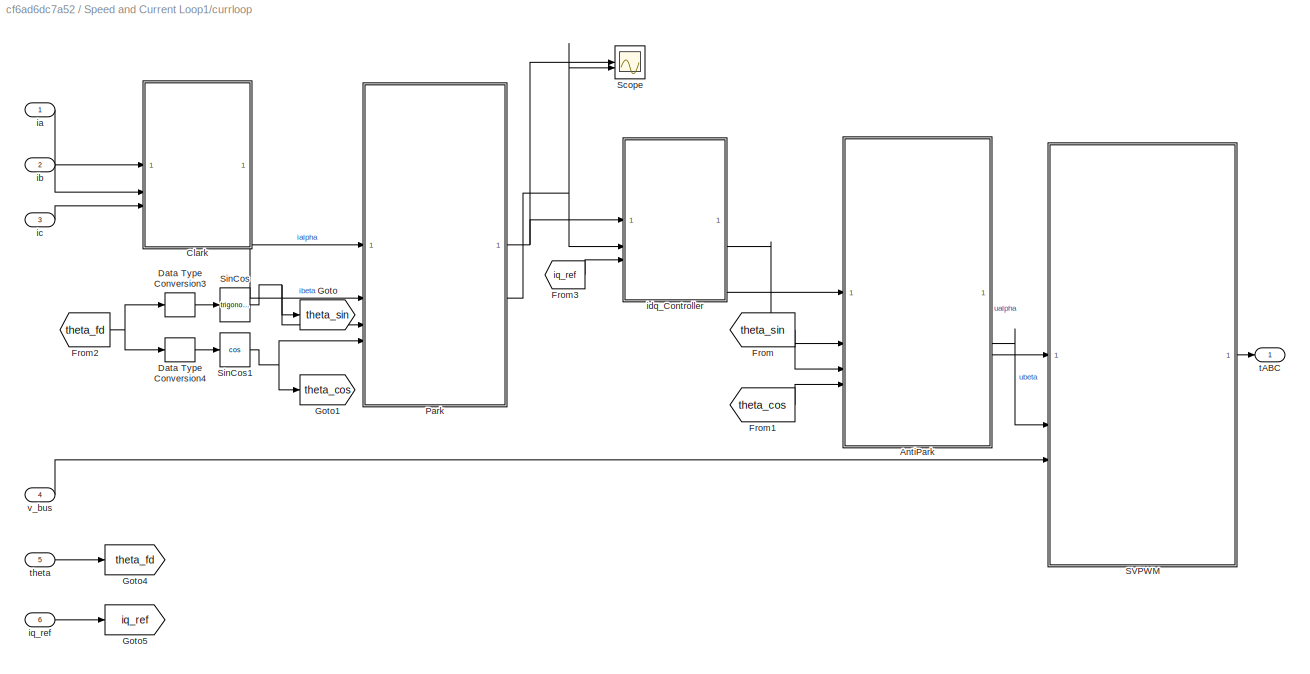
BLOCK [SubSystem] Speed and Current Loop1/currloop
  TreatAsAtomicUnit = on
BLOCK [SubSystem] Speed and Current Loop1/currloop/AntiPark
BLOCK [Sum] Speed and Current Loop1/currloop/AntiPark/Add
  IconShape = rectangular
  Inputs = +-
BLOCK [Sum] Speed and Current Loop1/currloop/AntiPark/Add1
  IconShape = rectangular
BLOCK [Product] Speed and Current Loop1/currloop/AntiPark/Product
BLOCK [Product] Speed and Current Loop1/currloop/AntiPark/Product1
BLOCK [Product] Speed and Current Loop1/currloop/AntiPark/Product2
BLOCK [Product] Speed and Current Loop1/currloop/AntiPark/Product3
BLOCK [Inport] Speed and Current Loop1/currloop/AntiPark/theta_cos
  Port = 4
BLOCK [Inport] Speed and Current Loop1/currloop/AntiPark/theta_sin
  Port = 3
BLOCK [Outport] Speed and Current Loop1/currloop/AntiPark/ualpha
  OutDataTypeStr = single
BLOCK [Outport] Speed and Current Loop1/currloop/AntiPark/ubeta
  OutDataTypeStr = single
  Port = 2
BLOCK [Inport] Speed and Current Loop1/currloop/AntiPark/ud
BLOCK [Inport] Speed and Current Loop1/currloop/AntiPark/uq
  Port = 2
BLOCK [SubSystem] Speed and Current Loop1/currloop/Clark
BLOCK [Sum] Speed and Current Loop1/currloop/Clark/Add
  AccumDataTypeStr = single
  IconShape = rectangular
  OutDataTypeStr = single
BLOCK [Sum] Speed and Current Loop1/currloop/Clark/Add1
  AccumDataTypeStr = single
  IconShape = rectangular
  Inputs = +-
  OutDataTypeStr = single
BLOCK [Sum] Speed and Current Loop1/currloop/Clark/Add2
  AccumDataTypeStr = single
  IconShape = rectangular
  Inputs = +-
  OutDataTypeStr = single
BLOCK [Gain] Speed and Current Loop1/currloop/Clark/Gain
  Gain = 2/3
  ParamDataTypeStr = single
BLOCK [Gain] Speed and Current Loop1/currloop/Clark/Gain1
  Gain = 1/3
  ParamDataTypeStr = single
BLOCK [Gain] Speed and Current Loop1/currloop/Clark/Gain2
  Gain = sqrt(3)/3
  ParamDataTypeStr = single
BLOCK [Inport] Speed and Current Loop1/currloop/Clark/ia
  OutDataTypeStr = single
BLOCK [Outport] Speed and Current Loop1/currloop/Clark/ialpha
  OutDataTypeStr = single
BLOCK [Inport] Speed and Current Loop1/currloop/Clark/ib
  OutDataTypeStr = single
  Port = 2
BLOCK [Outport] Speed and Current Loop1/currloop/Clark/ibeta
  OutDataTypeStr = single
  Port = 2
BLOCK [Inport] Speed and Current Loop1/currloop/Clark/ic
  OutDataTypeStr = single
  Port = 3
BLOCK [DataTypeConversion] Speed and Current Loop1/currloop/Data Type Conversion3
  OutDataTypeStr = single
  RndMeth = Floor
  SaturateOnIntegerOverflow = off
BLOCK [DataTypeConversion] Speed and Current Loop1/currloop/Data Type Conversion4
  OutDataTypeStr = single
  RndMeth = Floor
  SaturateOnIntegerOverflow = off
BLOCK [From] Speed and Current Loop1/currloop/From
  GotoTag = theta_sin
BLOCK [From] Speed and Current Loop1/currloop/From1
  GotoTag = theta_cos
BLOCK [From] Speed and Current Loop1/currloop/From2
  GotoTag = theta_fd
BLOCK [From] Speed and Current Loop1/currloop/From3
  GotoTag = iq_ref
BLOCK [Goto] Speed and Current Loop1/currloop/Goto
  GotoTag = theta_sin
BLOCK [Goto] Speed and Current Loop1/currloop/Goto1
  GotoTag = theta_cos
BLOCK [Goto] Speed and Current Loop1/currloop/Goto4
  GotoTag = theta_fd
BLOCK [Goto] Speed and Current Loop1/currloop/Goto5
  GotoTag = iq_ref
BLOCK [SubSystem] Speed and Current Loop1/currloop/Park
BLOCK [Sum] Speed and Current Loop1/currloop/Park/Add
  AccumDataTypeStr = single
  IconShape = rectangular
  OutDataTypeStr = single
BLOCK [Sum] Speed and Current Loop1/currloop/Park/Add1
  AccumDataTypeStr = single
  IconShape = rectangular
  Inputs = -+
  OutDataTypeStr = single
BLOCK [Product] Speed and Current Loop1/currloop/Park/Product
  OutDataTypeStr = single
BLOCK [Product] Speed and Current Loop1/currloop/Park/Product1
  OutDataTypeStr = single
BLOCK [Product] Speed and Current Loop1/currloop/Park/Product2
  OutDataTypeStr = single
BLOCK [Product] Speed and Current Loop1/currloop/Park/Product3
  OutDataTypeStr = single
BLOCK [Inport] Speed and Current Loop1/currloop/Park/ialpha
  OutDataTypeStr = single
BLOCK [Inport] Speed and Current Loop1/currloop/Park/ibeta
  OutDataTypeStr = single
  Port = 2
BLOCK [Outport] Speed and Current Loop1/currloop/Park/id
  OutDataTypeStr = single
BLOCK [Outport] Speed and Current Loop1/currloop/Park/iq
  OutDataTypeStr = single
  Port = 2
BLOCK [Inport] Speed and Current Loop1/currloop/Park/theta_cos
  OutDataTypeStr = single
  Port = 4
BLOCK [Inport] Speed and Current Loop1/currloop/Park/theta_sin
  OutDataTypeStr = single
  Port = 3
BLOCK [SubSystem] Speed and Current Loop1/currloop/SVPWM
  RTWSystemCode = Reusable function
  TreatAsAtomicUnit = on
BLOCK [SubSystem] Speed and Current Loop1/currloop/SVPWM/AntiClark
BLOCK [Gain] Speed and Current Loop1/currloop/SVPWM/AntiClark/Gain
  Gain = -1/2
  OutDataTypeStr = single
BLOCK [Gain] Speed and Current Loop1/currloop/SVPWM/AntiClark/Gain1
  Gain = sqrt(3)/2
  OutDataTypeStr = single
BLOCK [Sum] Speed and Current Loop1/currloop/SVPWM/AntiClark/Sum
  Inputs = |++
  OutDataTypeStr = single
BLOCK [Sum] Speed and Current Loop1/currloop/SVPWM/AntiClark/Sum1
  Inputs = -+|
  OutDataTypeStr = single
BLOCK [Outport] Speed and Current Loop1/currloop/SVPWM/AntiClark/Va
  OutDataTypeStr = single
BLOCK [Inport] Speed and Current Loop1/currloop/SVPWM/AntiClark/Valpha
  OutDataTypeStr = single
BLOCK [Outport] Speed and Current Loop1/currloop/SVPWM/AntiClark/Vb
  OutDataTypeStr = single
  Port = 2
BLOCK [Inport] Speed and Current Loop1/currloop/SVPWM/AntiClark/Vbeta
  OutDataTypeStr = single
  Port = 2
BLOCK [Outport] Speed and Current Loop1/currloop/SVPWM/AntiClark/Vc
  OutDataTypeStr = single
  Port = 3
BLOCK [Constant] Speed and Current Loop1/currloop/SVPWM/Constant
  OutDataTypeStr = single
  Value = 0.5
BLOCK [Product] Speed and Current Loop1/currloop/SVPWM/Divide
  Inputs = */
  OutDataTypeStr = single
BLOCK [Gain] Speed and Current Loop1/currloop/SVPWM/Gain
  Gain = -1
  OutDataTypeStr = single
BLOCK [Mux] Speed and Current Loop1/currloop/SVPWM/Mux
  DisplayOption = bar
  Inputs = 3
BLOCK [Gain] Speed and Current Loop1/currloop/SVPWM/PWM_HalfPeriod
  Gain = 8000
  OutDataTypeStr = single
BLOCK [Sum] Speed and Current Loop1/currloop/SVPWM/Sum
  Inputs = ++|
  OutDataTypeStr = single
BLOCK [Sum] Speed and Current Loop1/currloop/SVPWM/Sum1
  Inputs = |++
  OutDataTypeStr = single
BLOCK [Inport] Speed and Current Loop1/currloop/SVPWM/Valpha
  OutDataTypeStr = single
BLOCK [Inport] Speed and Current Loop1/currloop/SVPWM/Vbeta
  OutDataTypeStr = single
  Port = 2
BLOCK [SubSystem] Speed and Current Loop1/currloop/SVPWM/ei_t
BLOCK [Demux] Speed and Current Loop1/currloop/SVPWM/ei_t/Demux
  Outputs = 3
BLOCK [Gain] Speed and Current Loop1/currloop/SVPWM/ei_t/Gain
  Gain = -1/2
  OutDataTypeStr = single
BLOCK [MinMax] Speed and Current Loop1/currloop/SVPWM/ei_t/Min
  Inputs = 3
  OutDataTypeStr = single
BLOCK [MinMax] Speed and Current Loop1/currloop/SVPWM/ei_t/Min1
  Function = max
  Inputs = 3
  OutDataTypeStr = single
BLOCK [Sum] Speed and Current Loop1/currloop/SVPWM/ei_t/Sum
  Inputs = |++
  OutDataTypeStr = single
BLOCK [Inport] Speed and Current Loop1/currloop/SVPWM/ei_t/Vabc
  OutDataTypeStr = single
BLOCK [Outport] Speed and Current Loop1/currloop/SVPWM/ei_t/ei_t
  OutDataTypeStr = single
BLOCK [Outport] Speed and Current Loop1/currloop/SVPWM/tABC
  OutDataTypeStr = single
BLOCK [Inport] Speed and Current Loop1/currloop/SVPWM/v_bus
  OutDataTypeStr = single
  Port = 3
BLOCK [Scope] Speed and Current Loop1/currloop/Scope
  Floating = off
  NumInputPorts = 2
  ScopeSpecificationString = Simulink.scopes.TimeScopeBlockCfg('CurrentConfiguration', extmgr.ConfigurationSet(extmgr.Configuration('Core','General UI',true),extmgr.Configuration('Core','Source UI',true),extmgr.Configuration('Sources','WiredSimulink',true,'DataLoggingVariableName','ScopeData1'),extmgr.Configuration('Visuals','Time Domain',true,'SerializedDisplays',{struct('MinYLimReal','-4.51133','MaxYLimReal','1.60071','YLab...<+1543ch>  <repeated x3 — deduplicated; at blocks: Scope>
BLOCK [Trigonometry] Speed and Current Loop1/currloop/SinCos
BLOCK [Trigonometry] Speed and Current Loop1/currloop/SinCos1
  Operator = cos
BLOCK [Inport] Speed and Current Loop1/currloop/ia
BLOCK [Inport] Speed and Current Loop1/currloop/ib
  Port = 2
BLOCK [Inport] Speed and Current Loop1/currloop/ic
  Port = 3
BLOCK [SubSystem] Speed and Current Loop1/currloop/idq_Controller
BLOCK [Constant] Speed and Current Loop1/currloop/idq_Controller/Constant
  OutDataTypeStr = single
  Value = 0
BLOCK [Constant] Speed and Current Loop1/currloop/idq_Controller/Constant1
  OutDataTypeStr = single
  Value = CurrKp
BLOCK [Constant] Speed and Current Loop1/currloop/idq_Controller/Constant2
  OutDataTypeStr = single
  Value = CurrKi
BLOCK [Constant] Speed and Current Loop1/currloop/idq_Controller/Constant3
  OutDataTypeStr = single
  Value = CurrKp
BLOCK [Constant] Speed and Current Loop1/currloop/idq_Controller/Constant4
  OutDataTypeStr = single
  Value = CurrKi
BLOCK [Reference] Speed and Current Loop1/currloop/idq_Controller/PID Controller1  REF=slpidlib/PID Controller
  SourceBlock = slpidlib/PID Controller
  SourceType = PID 1dof
BLOCK [Reference] Speed and Current Loop1/currloop/idq_Controller/PID Controller2  REF=slpidlib/PID Controller
  SourceBlock = slpidlib/PID Controller
  SourceType = PID 1dof
BLOCK [Scope] Speed and Current Loop1/currloop/idq_Controller/Scope
  Floating = off
  NumInputPorts = 2
BLOCK [Sum] Speed and Current Loop1/currloop/idq_Controller/Sum1
  AccumDataTypeStr = single
  Inputs = |+-
  OutDataTypeStr = single
BLOCK [Sum] Speed and Current Loop1/currloop/idq_Controller/Sum7
  AccumDataTypeStr = single
  Inputs = |+-
  OutDataTypeStr = single
BLOCK [Inport] Speed and Current Loop1/currloop/idq_Controller/id_fdbk
  OutDataTypeStr = single
BLOCK [Inport] Speed and Current Loop1/currloop/idq_Controller/iq_fdbk
  OutDataTypeStr = single
  Port = 2
BLOCK [Inport] Speed and Current Loop1/currloop/idq_Controller/iq_ref
  OutDataTypeStr = single
  Port = 3
BLOCK [Outport] Speed and Current Loop1/currloop/idq_Controller/ud_ref
  OutDataTypeStr = single
BLOCK [Outport] Speed and Current Loop1/currloop/idq_Controller/uq_ref
  OutDataTypeStr = single
  Port = 2
BLOCK [Inport] Speed and Current Loop1/currloop/iq_ref
  Port = 6
BLOCK [Outport] Speed and Current Loop1/currloop/tABC
BLOCK [Inport] Speed and Current Loop1/currloop/theta
  Port = 5
BLOCK [Inport] Speed and Current Loop1/currloop/v_bus
  Port = 4
BLOCK [Inport] Speed and Current Loop1/ia
BLOCK [Inport] Speed and Current Loop1/ib
  Port = 2
BLOCK [Inport] Speed and Current Loop1/ic
  Port = 3
BLOCK [SubSystem] Speed and Current Loop1/speedloop
BLOCK [Reference] Speed and Current Loop1/speedloop/PID Controller3  REF=slpidlib/PID Controller
  SourceBlock = slpidlib/PID Controller
  SourceType = PID 1dof
BLOCK [Inport] Speed and Current Loop1/speedloop/SpeedFd
  Port = 2
BLOCK [Inport] Speed and Current Loop1/speedloop/SpeedRef
BLOCK [Sum] Speed and Current Loop1/speedloop/Sum2
  AccumDataTypeStr = single
  Inputs = |+-
  OutDataTypeStr = single
BLOCK [TriggerPort] Speed and Current Loop1/speedloop/Trigger
  PortDimensions = 1
  StatesWhenEnabling = held
  TriggerType = function-call
  VariantControl = (inherit)
BLOCK [Outport] Speed and Current Loop1/speedloop/iqRef
BLOCK [Outport] Speed and Current Loop1/tABC
BLOCK [Inport] Speed and Current Loop1/theta
  Port = 7
BLOCK [Inport] Speed and Current Loop1/v_bus
  Port = 4
BLOCK [SubSystem] Speed and Current Loop2
  Commented = on
  TreatAsAtomicUnit = on
BLOCK [Reference] Speed and Current Loop2/Function-Call Generator  REF=simulink/Ports &
Subsystems/Function-Call
Generator
  SourceBlock = simulink/Ports &\nSubsystems/Function-Call\nGenerator
  SourceType = Function-Call Generator
BLOCK [RateTransition] Speed and Current Loop2/Rate Transition20
BLOCK [Inport] Speed and Current Loop2/SpeedFd
  Port = 6
BLOCK [Inport] Speed and Current Loop2/SpeedRef
  Port = 5
BLOCK [SubSystem] Speed and Current Loop2/currloop
  TreatAsAtomicUnit = on
BLOCK [SubSystem] Speed and Current Loop2/currloop/AntiPark
BLOCK [Sum] Speed and Current Loop2/currloop/AntiPark/Add
  IconShape = rectangular
  Inputs = +-
BLOCK [Sum] Speed and Current Loop2/currloop/AntiPark/Add1
  IconShape = rectangular
BLOCK [Product] Speed and Current Loop2/currloop/AntiPark/Product
BLOCK [Product] Speed and Current Loop2/currloop/AntiPark/Product1
BLOCK [Product] Speed and Current Loop2/currloop/AntiPark/Product2
BLOCK [Product] Speed and Current Loop2/currloop/AntiPark/Product3
BLOCK [Inport] Speed and Current Loop2/currloop/AntiPark/theta_cos
  Port = 4
BLOCK [Inport] Speed and Current Loop2/currloop/AntiPark/theta_sin
  Port = 3
BLOCK [Outport] Speed and Current Loop2/currloop/AntiPark/ualpha
  OutDataTypeStr = single
BLOCK [Outport] Speed and Current Loop2/currloop/AntiPark/ubeta
  OutDataTypeStr = single
  Port = 2
BLOCK [Inport] Speed and Current Loop2/currloop/AntiPark/ud
BLOCK [Inport] Speed and Current Loop2/currloop/AntiPark/uq
  Port = 2
BLOCK [SubSystem] Speed and Current Loop2/currloop/Clark
BLOCK [Sum] Speed and Current Loop2/currloop/Clark/Add
  AccumDataTypeStr = single
  IconShape = rectangular
  OutDataTypeStr = single
BLOCK [Sum] Speed and Current Loop2/currloop/Clark/Add1
  AccumDataTypeStr = single
  IconShape = rectangular
  Inputs = +-
  OutDataTypeStr = single
BLOCK [Sum] Speed and Current Loop2/currloop/Clark/Add2
  AccumDataTypeStr = single
  IconShape = rectangular
  Inputs = +-
  OutDataTypeStr = single
BLOCK [Gain] Speed and Current Loop2/currloop/Clark/Gain
  Gain = 2/3
  ParamDataTypeStr = single
BLOCK [Gain] Speed and Current Loop2/currloop/Clark/Gain1
  Gain = 1/3
  ParamDataTypeStr = single
BLOCK [Gain] Speed and Current Loop2/currloop/Clark/Gain2
  Gain = sqrt(3)/3
  ParamDataTypeStr = single
BLOCK [Inport] Speed and Current Loop2/currloop/Clark/ia
  OutDataTypeStr = single
BLOCK [Outport] Speed and Current Loop2/currloop/Clark/ialpha
  OutDataTypeStr = single
BLOCK [Inport] Speed and Current Loop2/currloop/Clark/ib
  OutDataTypeStr = single
  Port = 2
BLOCK [Outport] Speed and Current Loop2/currloop/Clark/ibeta
  OutDataTypeStr = single
  Port = 2
BLOCK [Inport] Speed and Current Loop2/currloop/Clark/ic
  OutDataTypeStr = single
  Port = 3
BLOCK [DataTypeConversion] Speed and Current Loop2/currloop/Data Type Conversion3
  OutDataTypeStr = single
  RndMeth = Floor
  SaturateOnIntegerOverflow = off
BLOCK [DataTypeConversion] Speed and Current Loop2/currloop/Data Type Conversion4
  OutDataTypeStr = single
  RndMeth = Floor
  SaturateOnIntegerOverflow = off
BLOCK [From] Speed and Current Loop2/currloop/From
  GotoTag = theta_sin
BLOCK [From] Speed and Current Loop2/currloop/From1
  GotoTag = theta_cos
BLOCK [From] Speed and Current Loop2/currloop/From2
  GotoTag = theta_fd
BLOCK [From] Speed and Current Loop2/currloop/From3
  GotoTag = iq_ref
BLOCK [Goto] Speed and Current Loop2/currloop/Goto
  GotoTag = theta_sin
BLOCK [Goto] Speed and Current Loop2/currloop/Goto1
  GotoTag = theta_cos
BLOCK [Goto] Speed and Current Loop2/currloop/Goto4
  GotoTag = theta_fd
BLOCK [Goto] Speed and Current Loop2/currloop/Goto5
  GotoTag = iq_ref
BLOCK [SubSystem] Speed and Current Loop2/currloop/Park
BLOCK [Sum] Speed and Current Loop2/currloop/Park/Add
  AccumDataTypeStr = single
  IconShape = rectangular
  OutDataTypeStr = single
BLOCK [Sum] Speed and Current Loop2/currloop/Park/Add1
  AccumDataTypeStr = single
  IconShape = rectangular
  Inputs = -+
  OutDataTypeStr = single
BLOCK [Product] Speed and Current Loop2/currloop/Park/Product
  OutDataTypeStr = single
BLOCK [Product] Speed and Current Loop2/currloop/Park/Product1
  OutDataTypeStr = single
BLOCK [Product] Speed and Current Loop2/currloop/Park/Product2
  OutDataTypeStr = single
BLOCK [Product] Speed and Current Loop2/currloop/Park/Product3
  OutDataTypeStr = single
BLOCK [Inport] Speed and Current Loop2/currloop/Park/ialpha
  OutDataTypeStr = single
BLOCK [Inport] Speed and Current Loop2/currloop/Park/ibeta
  OutDataTypeStr = single
  Port = 2
BLOCK [Outport] Speed and Current Loop2/currloop/Park/id
  OutDataTypeStr = single
BLOCK [Outport] Speed and Current Loop2/currloop/Park/iq
  OutDataTypeStr = single
  Port = 2
BLOCK [Inport] Speed and Current Loop2/currloop/Park/theta_cos
  OutDataTypeStr = single
  Port = 4
BLOCK [Inport] Speed and Current Loop2/currloop/Park/theta_sin
  OutDataTypeStr = single
  Port = 3
BLOCK [SubSystem] Speed and Current Loop2/currloop/SVPWM
  RTWSystemCode = Reusable function
  TreatAsAtomicUnit = on
BLOCK [SubSystem] Speed and Current Loop2/currloop/SVPWM/AntiClark
BLOCK [Gain] Speed and Current Loop2/currloop/SVPWM/AntiClark/Gain
  Gain = -1/2
  OutDataTypeStr = single
BLOCK [Gain] Speed and Current Loop2/currloop/SVPWM/AntiClark/Gain1
  Gain = sqrt(3)/2
  OutDataTypeStr = single
BLOCK [Sum] Speed and Current Loop2/currloop/SVPWM/AntiClark/Sum
  Inputs = |++
  OutDataTypeStr = single
BLOCK [Sum] Speed and Current Loop2/currloop/SVPWM/AntiClark/Sum1
  Inputs = -+|
  OutDataTypeStr = single
BLOCK [Outport] Speed and Current Loop2/currloop/SVPWM/AntiClark/Va
  OutDataTypeStr = single
BLOCK [Inport] Speed and Current Loop2/currloop/SVPWM/AntiClark/Valpha
  OutDataTypeStr = single
BLOCK [Outport] Speed and Current Loop2/currloop/SVPWM/AntiClark/Vb
  OutDataTypeStr = single
  Port = 2
BLOCK [Inport] Speed and Current Loop2/currloop/SVPWM/AntiClark/Vbeta
  OutDataTypeStr = single
  Port = 2
BLOCK [Outport] Speed and Current Loop2/currloop/SVPWM/AntiClark/Vc
  OutDataTypeStr = single
  Port = 3
BLOCK [Constant] Speed and Current Loop2/currloop/SVPWM/Constant
  OutDataTypeStr = single
  Value = 0.5
BLOCK [Product] Speed and Current Loop2/currloop/SVPWM/Divide
  Inputs = */
  OutDataTypeStr = single
BLOCK [Gain] Speed and Current Loop2/currloop/SVPWM/Gain
  Gain = -1
  OutDataTypeStr = single
BLOCK [Mux] Speed and Current Loop2/currloop/SVPWM/Mux
  DisplayOption = bar
  Inputs = 3
BLOCK [Gain] Speed and Current Loop2/currloop/SVPWM/PWM_HalfPeriod
  Gain = 8000
  OutDataTypeStr = single
BLOCK [Sum] Speed and Current Loop2/currloop/SVPWM/Sum
  Inputs = ++|
  OutDataTypeStr = single
BLOCK [Sum] Speed and Current Loop2/currloop/SVPWM/Sum1
  Inputs = |++
  OutDataTypeStr = single
BLOCK [Inport] Speed and Current Loop2/currloop/SVPWM/Valpha
  OutDataTypeStr = single
BLOCK [Inport] Speed and Current Loop2/currloop/SVPWM/Vbeta
  OutDataTypeStr = single
  Port = 2
BLOCK [SubSystem] Speed and Current Loop2/currloop/SVPWM/ei_t
BLOCK [Demux] Speed and Current Loop2/currloop/SVPWM/ei_t/Demux
  Outputs = 3
BLOCK [Gain] Speed and Current Loop2/currloop/SVPWM/ei_t/Gain
  Gain = -1/2
  OutDataTypeStr = single
BLOCK [MinMax] Speed and Current Loop2/currloop/SVPWM/ei_t/Min
  Inputs = 3
  OutDataTypeStr = single
BLOCK [MinMax] Speed and Current Loop2/currloop/SVPWM/ei_t/Min1
  Function = max
  Inputs = 3
  OutDataTypeStr = single
BLOCK [Sum] Speed and Current Loop2/currloop/SVPWM/ei_t/Sum
  Inputs = |++
  OutDataTypeStr = single
BLOCK [Inport] Speed and Current Loop2/currloop/SVPWM/ei_t/Vabc
  OutDataTypeStr = single
BLOCK [Outport] Speed and Current Loop2/currloop/SVPWM/ei_t/ei_t
  OutDataTypeStr = single
BLOCK [Outport] Speed and Current Loop2/currloop/SVPWM/tABC
  OutDataTypeStr = single
BLOCK [Inport] Speed and Current Loop2/currloop/SVPWM/v_bus
  OutDataTypeStr = single
  Port = 3
BLOCK [Scope] Speed and Current Loop2/currloop/Scope
  Floating = off
  NumInputPorts = 2
BLOCK [Trigonometry] Speed and Current Loop2/currloop/SinCos
BLOCK [Trigonometry] Speed and Current Loop2/currloop/SinCos1
  Operator = cos
BLOCK [Inport] Speed and Current Loop2/currloop/ia
BLOCK [Inport] Speed and Current Loop2/currloop/ib
  Port = 2
BLOCK [Inport] Speed and Current Loop2/currloop/ic
  Port = 3
BLOCK [SubSystem] Speed and Current Loop2/currloop/idq_Controller
BLOCK [Constant] Speed and Current Loop2/currloop/idq_Controller/Constant
  OutDataTypeStr = single
  Value = 0
BLOCK [Constant] Speed and Current Loop2/currloop/idq_Controller/Constant1
  OutDataTypeStr = single
  Value = 0.515264878487547
BLOCK [Constant] Speed and Current Loop2/currloop/idq_Controller/Constant2
  OutDataTypeStr = single
  Value = 987.649638453674
BLOCK [Constant] Speed and Current Loop2/currloop/idq_Controller/Constant3
  OutDataTypeStr = single
  Value = 0.515264878487547
BLOCK [Constant] Speed and Current Loop2/currloop/idq_Controller/Constant4
  OutDataTypeStr = single
  Value = 987.649638453674
BLOCK [Reference] Speed and Current Loop2/currloop/idq_Controller/PID Controller1  REF=slpidlib/PID Controller
  SourceBlock = slpidlib/PID Controller
  SourceType = PID 1dof
BLOCK [Reference] Speed and Current Loop2/currloop/idq_Controller/PID Controller2  REF=slpidlib/PID Controller
  SourceBlock = slpidlib/PID Controller
  SourceType = PID 1dof
BLOCK [Scope] Speed and Current Loop2/currloop/idq_Controller/Scope
  Floating = off
  NumInputPorts = 2
BLOCK [Sum] Speed and Current Loop2/currloop/idq_Controller/Sum1
  AccumDataTypeStr = single
  Inputs = |+-
  OutDataTypeStr = single
BLOCK [Sum] Speed and Current Loop2/currloop/idq_Controller/Sum7
  AccumDataTypeStr = single
  Inputs = |+-
  OutDataTypeStr = single
BLOCK [Inport] Speed and Current Loop2/currloop/idq_Controller/id_fdbk
  OutDataTypeStr = single
BLOCK [Inport] Speed and Current Loop2/currloop/idq_Controller/iq_fdbk
  OutDataTypeStr = single
  Port = 2
BLOCK [Inport] Speed and Current Loop2/currloop/idq_Controller/iq_ref
  OutDataTypeStr = single
  Port = 3
BLOCK [Outport] Speed and Current Loop2/currloop/idq_Controller/ud_ref
  OutDataTypeStr = single
BLOCK [Outport] Speed and Current Loop2/currloop/idq_Controller/uq_ref
  OutDataTypeStr = single
  Port = 2
BLOCK [Inport] Speed and Current Loop2/currloop/iq_ref
  Port = 6
BLOCK [Outport] Speed and Current Loop2/currloop/tABC
BLOCK [Inport] Speed and Current Loop2/currloop/theta
  Port = 5
BLOCK [Inport] Speed and Current Loop2/currloop/v_bus
  Port = 4
BLOCK [Inport] Speed and Current Loop2/ia
BLOCK [Inport] Speed and Current Loop2/ib
  Port = 2
BLOCK [Inport] Speed and Current Loop2/ic
  Port = 3
BLOCK [SubSystem] Speed and Current Loop2/speedloop
BLOCK [Reference] Speed and Current Loop2/speedloop/PID Controller3  REF=slpidlib/PID Controller
  SourceBlock = slpidlib/PID Controller
  SourceType = PID 1dof
BLOCK [Inport] Speed and Current Loop2/speedloop/SpeedFd
  Port = 2
BLOCK [Inport] Speed and Current Loop2/speedloop/SpeedRef
BLOCK [Sum] Speed and Current Loop2/speedloop/Sum2
  AccumDataTypeStr = single
  Inputs = |+-
  OutDataTypeStr = single
BLOCK [TriggerPort] Speed and Current Loop2/speedloop/Trigger
  PortDimensions = 1
  StatesWhenEnabling = held
  TriggerType = function-call
  VariantControl = (inherit)
BLOCK [Outport] Speed and Current Loop2/speedloop/iqRef
BLOCK [Outport] Speed and Current Loop2/tABC
BLOCK [Inport] Speed and Current Loop2/theta
  Port = 7
BLOCK [Inport] Speed and Current Loop2/v_bus
  Port = 4
BLOCK [SubSystem] Speed and Current Loop4
  Commented = on
  TreatAsAtomicUnit = on
BLOCK [DataTypeConversion] Speed and Current Loop4/Data Type Conversion11
  OutDataTypeStr = single
  RndMeth = Floor
  SaturateOnIntegerOverflow = off
BLOCK [RateTransition] Speed and Current Loop4/Rate Transition22
BLOCK [Sum] Speed and Current Loop4/Sum51
  Inputs = |+-
BLOCK [TransferFcn] Speed and Current Loop4/Transfer Fcn29
  Denominator = [1, 1.447e04, 2.724e06, 2.755e04]
  Numerator = [1.83e04, 3.56e05, 3.332e05]
BLOCK [SubSystem] Speed and Current Loop4/currloop
  TreatAsAtomicUnit = on
BLOCK [SubSystem] Speed and Current Loop4/currloop/AntiPark
BLOCK [Sum] Speed and Current Loop4/currloop/AntiPark/Add
  IconShape = rectangular
  Inputs = +-
BLOCK [Sum] Speed and Current Loop4/currloop/AntiPark/Add1
  IconShape = rectangular
BLOCK [Product] Speed and Current Loop4/currloop/AntiPark/Product
BLOCK [Product] Speed and Current Loop4/currloop/AntiPark/Product1
BLOCK [Product] Speed and Current Loop4/currloop/AntiPark/Product2
BLOCK [Product] Speed and Current Loop4/currloop/AntiPark/Product3
BLOCK [Inport] Speed and Current Loop4/currloop/AntiPark/theta_cos
  Port = 4
BLOCK [Inport] Speed and Current Loop4/currloop/AntiPark/theta_sin
  Port = 3
BLOCK [Outport] Speed and Current Loop4/currloop/AntiPark/ualpha
  OutDataTypeStr = single
BLOCK [Outport] Speed and Current Loop4/currloop/AntiPark/ubeta
  OutDataTypeStr = single
  Port = 2
BLOCK [Inport] Speed and Current Loop4/currloop/AntiPark/ud
BLOCK [Inport] Speed and Current Loop4/currloop/AntiPark/uq
  Port = 2
BLOCK [SubSystem] Speed and Current Loop4/currloop/Clark
BLOCK [Sum] Speed and Current Loop4/currloop/Clark/Add
  AccumDataTypeStr = single
  IconShape = rectangular
  OutDataTypeStr = single
BLOCK [Sum] Speed and Current Loop4/currloop/Clark/Add1
  AccumDataTypeStr = single
  IconShape = rectangular
  Inputs = +-
  OutDataTypeStr = single
BLOCK [Sum] Speed and Current Loop4/currloop/Clark/Add2
  AccumDataTypeStr = single
  IconShape = rectangular
  Inputs = +-
  OutDataTypeStr = single
BLOCK [Gain] Speed and Current Loop4/currloop/Clark/Gain
  Gain = 2/3
  ParamDataTypeStr = single
BLOCK [Gain] Speed and Current Loop4/currloop/Clark/Gain1
  Gain = 1/3
  ParamDataTypeStr = single
BLOCK [Gain] Speed and Current Loop4/currloop/Clark/Gain2
  Gain = sqrt(3)/3
  ParamDataTypeStr = single
BLOCK [Inport] Speed and Current Loop4/currloop/Clark/ia
  OutDataTypeStr = single
BLOCK [Outport] Speed and Current Loop4/currloop/Clark/ialpha
  OutDataTypeStr = single
BLOCK [Inport] Speed and Current Loop4/currloop/Clark/ib
  OutDataTypeStr = single
  Port = 2
BLOCK [Outport] Speed and Current Loop4/currloop/Clark/ibeta
  OutDataTypeStr = single
  Port = 2
BLOCK [Inport] Speed and Current Loop4/currloop/Clark/ic
  OutDataTypeStr = single
  Port = 3
BLOCK [DataTypeConversion] Speed and Current Loop4/currloop/Data Type Conversion3
  OutDataTypeStr = single
  RndMeth = Floor
  SaturateOnIntegerOverflow = off
BLOCK [DataTypeConversion] Speed and Current Loop4/currloop/Data Type Conversion4
  OutDataTypeStr = single
  RndMeth = Floor
  SaturateOnIntegerOverflow = off
BLOCK [From] Speed and Current Loop4/currloop/From
  GotoTag = theta_sin
BLOCK [From] Speed and Current Loop4/currloop/From1
  GotoTag = theta_cos
BLOCK [From] Speed and Current Loop4/currloop/From2
  GotoTag = theta_fd
BLOCK [From] Speed and Current Loop4/currloop/From3
  GotoTag = iq_ref
BLOCK [Goto] Speed and Current Loop4/currloop/Goto
  GotoTag = theta_sin
BLOCK [Goto] Speed and Current Loop4/currloop/Goto1
  GotoTag = theta_cos
BLOCK [Goto] Speed and Current Loop4/currloop/Goto4
  GotoTag = theta_fd
BLOCK [Goto] Speed and Current Loop4/currloop/Goto5
  GotoTag = iq_ref
BLOCK [SubSystem] Speed and Current Loop4/currloop/Park
BLOCK [Sum] Speed and Current Loop4/currloop/Park/Add
  AccumDataTypeStr = single
  IconShape = rectangular
  OutDataTypeStr = single
BLOCK [Sum] Speed and Current Loop4/currloop/Park/Add1
  AccumDataTypeStr = single
  IconShape = rectangular
  Inputs = -+
  OutDataTypeStr = single
BLOCK [Product] Speed and Current Loop4/currloop/Park/Product
  OutDataTypeStr = single
BLOCK [Product] Speed and Current Loop4/currloop/Park/Product1
  OutDataTypeStr = single
BLOCK [Product] Speed and Current Loop4/currloop/Park/Product2
  OutDataTypeStr = single
BLOCK [Product] Speed and Current Loop4/currloop/Park/Product3
  OutDataTypeStr = single
BLOCK [Inport] Speed and Current Loop4/currloop/Park/ialpha
  OutDataTypeStr = single
BLOCK [Inport] Speed and Current Loop4/currloop/Park/ibeta
  OutDataTypeStr = single
  Port = 2
BLOCK [Outport] Speed and Current Loop4/currloop/Park/id
  OutDataTypeStr = single
BLOCK [Outport] Speed and Current Loop4/currloop/Park/iq
  OutDataTypeStr = single
  Port = 2
BLOCK [Inport] Speed and Current Loop4/currloop/Park/theta_cos
  OutDataTypeStr = single
  Port = 4
BLOCK [Inport] Speed and Current Loop4/currloop/Park/theta_sin
  OutDataTypeStr = single
  Port = 3
BLOCK [SubSystem] Speed and Current Loop4/currloop/SVPWM
  RTWSystemCode = Reusable function
  TreatAsAtomicUnit = on
BLOCK [SubSystem] Speed and Current Loop4/currloop/SVPWM/AntiClark
BLOCK [Gain] Speed and Current Loop4/currloop/SVPWM/AntiClark/Gain
  Gain = -1/2
  OutDataTypeStr = single
BLOCK [Gain] Speed and Current Loop4/currloop/SVPWM/AntiClark/Gain1
  Gain = sqrt(3)/2
  OutDataTypeStr = single
BLOCK [Sum] Speed and Current Loop4/currloop/SVPWM/AntiClark/Sum
  Inputs = |++
  OutDataTypeStr = single
BLOCK [Sum] Speed and Current Loop4/currloop/SVPWM/AntiClark/Sum1
  Inputs = -+|
  OutDataTypeStr = single
BLOCK [Outport] Speed and Current Loop4/currloop/SVPWM/AntiClark/Va
  OutDataTypeStr = single
BLOCK [Inport] Speed and Current Loop4/currloop/SVPWM/AntiClark/Valpha
  OutDataTypeStr = single
BLOCK [Outport] Speed and Current Loop4/currloop/SVPWM/AntiClark/Vb
  OutDataTypeStr = single
  Port = 2
BLOCK [Inport] Speed and Current Loop4/currloop/SVPWM/AntiClark/Vbeta
  OutDataTypeStr = single
  Port = 2
BLOCK [Outport] Speed and Current Loop4/currloop/SVPWM/AntiClark/Vc
  OutDataTypeStr = single
  Port = 3
BLOCK [Constant] Speed and Current Loop4/currloop/SVPWM/Constant
  OutDataTypeStr = single
  Value = 0.5
BLOCK [Product] Speed and Current Loop4/currloop/SVPWM/Divide
  Inputs = */
  OutDataTypeStr = single
BLOCK [Gain] Speed and Current Loop4/currloop/SVPWM/Gain
  Gain = -1
  OutDataTypeStr = single
BLOCK [Mux] Speed and Current Loop4/currloop/SVPWM/Mux
  DisplayOption = bar
  Inputs = 3
BLOCK [Gain] Speed and Current Loop4/currloop/SVPWM/PWM_HalfPeriod
  Gain = 8000
  OutDataTypeStr = single
BLOCK [Sum] Speed and Current Loop4/currloop/SVPWM/Sum
  Inputs = ++|
  OutDataTypeStr = single
BLOCK [Sum] Speed and Current Loop4/currloop/SVPWM/Sum1
  Inputs = |++
  OutDataTypeStr = single
BLOCK [Inport] Speed and Current Loop4/currloop/SVPWM/Valpha
  OutDataTypeStr = single
BLOCK [Inport] Speed and Current Loop4/currloop/SVPWM/Vbeta
  OutDataTypeStr = single
  Port = 2
BLOCK [SubSystem] Speed and Current Loop4/currloop/SVPWM/ei_t
BLOCK [Demux] Speed and Current Loop4/currloop/SVPWM/ei_t/Demux
  Outputs = 3
BLOCK [Gain] Speed and Current Loop4/currloop/SVPWM/ei_t/Gain
  Gain = -1/2
  OutDataTypeStr = single
BLOCK [MinMax] Speed and Current Loop4/currloop/SVPWM/ei_t/Min
  Inputs = 3
  OutDataTypeStr = single
BLOCK [MinMax] Speed and Current Loop4/currloop/SVPWM/ei_t/Min1
  Function = max
  Inputs = 3
  OutDataTypeStr = single
BLOCK [Sum] Speed and Current Loop4/currloop/SVPWM/ei_t/Sum
  Inputs = |++
  OutDataTypeStr = single
BLOCK [Inport] Speed and Current Loop4/currloop/SVPWM/ei_t/Vabc
  OutDataTypeStr = single
BLOCK [Outport] Speed and Current Loop4/currloop/SVPWM/ei_t/ei_t
  OutDataTypeStr = single
BLOCK [Outport] Speed and Current Loop4/currloop/SVPWM/tABC
  OutDataTypeStr = single
BLOCK [Inport] Speed and Current Loop4/currloop/SVPWM/v_bus
  OutDataTypeStr = single
  Port = 3
BLOCK [Scope] Speed and Current Loop4/currloop/Scope
  Floating = off
  NumInputPorts = 2
  ScopeSpecificationString = Simulink.scopes.TimeScopeBlockCfg('CurrentConfiguration', extmgr.ConfigurationSet(extmgr.Configuration('Core','General UI',true),extmgr.Configuration('Core','Source UI',true),extmgr.Configuration('Sources','WiredSimulink',true,'DataLoggingVariableName','ScopeData1'),extmgr.Configuration('Visuals','Time Domain',true,'SerializedDisplays',{struct('MinYLimReal','-0.18025','MaxYLimReal','0.2841','YLabe...<+1539ch>
BLOCK [Trigonometry] Speed and Current Loop4/currloop/SinCos
BLOCK [Trigonometry] Speed and Current Loop4/currloop/SinCos1
  Operator = cos
BLOCK [Inport] Speed and Current Loop4/currloop/ia
BLOCK [Inport] Speed and Current Loop4/currloop/ib
  Port = 2
BLOCK [Inport] Speed and Current Loop4/currloop/ic
  Port = 3
BLOCK [SubSystem] Speed and Current Loop4/currloop/idq_Controller
BLOCK [Constant] Speed and Current Loop4/currloop/idq_Controller/Constant
  OutDataTypeStr = single
  Value = 0
BLOCK [Constant] Speed and Current Loop4/currloop/idq_Controller/Constant3
  OutDataTypeStr = single
  Value = 0.1
BLOCK [Constant] Speed and Current Loop4/currloop/idq_Controller/Constant4
  OutDataTypeStr = single
  Value = 0
BLOCK [Reference] Speed and Current Loop4/currloop/idq_Controller/PID Controller1  REF=slpidlib/PID Controller
  SourceBlock = slpidlib/PID Controller
  SourceType = PID 1dof
BLOCK [Reference] Speed and Current Loop4/currloop/idq_Controller/PID Controller2  REF=slpidlib/PID Controller
  SourceBlock = slpidlib/PID Controller
  SourceType = PID 1dof
BLOCK [Scope] Speed and Current Loop4/currloop/idq_Controller/Scope
  Floating = off
  NumInputPorts = 2
BLOCK [Sum] Speed and Current Loop4/currloop/idq_Controller/Sum1
  AccumDataTypeStr = single
  Inputs = |+-
  OutDataTypeStr = single
BLOCK [Sum] Speed and Current Loop4/currloop/idq_Controller/Sum7
  AccumDataTypeStr = single
  Inputs = |+-
  OutDataTypeStr = single
BLOCK [Inport] Speed and Current Loop4/currloop/idq_Controller/id_fdbk
  OutDataTypeStr = single
BLOCK [Inport] Speed and Current Loop4/currloop/idq_Controller/iq_fdbk
  OutDataTypeStr = single
  Port = 2
BLOCK [Inport] Speed and Current Loop4/currloop/idq_Controller/iq_ref
  OutDataTypeStr = single
  Port = 3
BLOCK [Outport] Speed and Current Loop4/currloop/idq_Controller/ud_ref
  OutDataTypeStr = single
BLOCK [Outport] Speed and Current Loop4/currloop/idq_Controller/uq_ref
  OutDataTypeStr = single
  Port = 2
BLOCK [Inport] Speed and Current Loop4/currloop/iq_ref
  Port = 6
BLOCK [Outport] Speed and Current Loop4/currloop/tABC
BLOCK [Inport] Speed and Current Loop4/currloop/theta
  Port = 5
BLOCK [Inport] Speed and Current Loop4/currloop/v_bus
  Port = 4
BLOCK [Inport] Speed and Current Loop4/ia
BLOCK [Inport] Speed and Current Loop4/ib
  Port = 2
BLOCK [Inport] Speed and Current Loop4/ic
  Port = 3
BLOCK [Outport] Speed and Current Loop4/tABC
BLOCK [Inport] Speed and Current Loop4/theta
  Port = 5
BLOCK [Inport] Speed and Current Loop4/theta_m
  Port = 7
BLOCK [Inport] Speed and Current Loop4/theta_ref
  Port = 6
BLOCK [Inport] Speed and Current Loop4/v_bus
  Port = 4
BLOCK [StateSpace] State-Space
  A = [0 1; 0 (-k_b*I-Kd)/(Jm*I)]
  B = [0; k_t/(Jm*I)]
  C = [1 0]
  Commented = on
  D = 0
  InitialCondition = 0
BLOCK [StateSpace] State-Space1
  A = [0 1; 0 (-k_b*I-K)/(Jm*I)]
  B = [0; k_t/(Jm*I)]
  C = [1 0]
  Commented = on
  D = 0
  InitialCondition = 0
BLOCK [StateSpace] State-Space2
  A = [0 1; 0 (-k_b*I-Kd)/(Jm*I)]
  B = [0; k_t/(Jm*I)]
  C = [1 0]
  Commented = on
  D = 0
  InitialCondition = 0
BLOCK [StateSpace] State-Space3
  A = [0 1; 0 (-k_b*I-Kd)/(Jm*I)]
  B = [0; k_t/(Jm*I)]
  C = [1 0]
  Commented = on
  D = 0
  InitialCondition = 0
BLOCK [StateSpace] State-Space4
  A = [0 1; 0 (-k_b*I-Kd)/(Jm*I)]
  B = [0; k_t/(Jm*I)]
  C = [1 0]
  Commented = on
  D = 0
  InitialCondition = 0
BLOCK [StateSpace] State-Space5
  A = [0 1; 0 (-k_b*I-Kd)/(Jm*I)]
  B = [0; k_t/(Jm*I)]
  C = [1 0]
  D = 0
  InitialCondition = 0
BLOCK [Step] Step1
  After = pi/3
  Commented = on
  SampleTime = 1e-2
  Time = 0
BLOCK [Step] Step10
  Commented = on
  SampleTime = 1e-2
  Time = 0
BLOCK [Step] Step11
  Commented = on
  SampleTime = 1e-2
  Time = 0
BLOCK [Step] Step12
  After = pi/3
  Commented = on
  SampleTime = 1e-2
  Time = 0
BLOCK [Step] Step13
  After = pi/3
  Commented = on
  SampleTime = 1e-2
  Time = 0
BLOCK [Step] Step14
  After = 2*pi
  Commented = on
  SampleTime = 1e-2
  Time = 0
BLOCK [Step] Step15
  After = 2*pi
  Commented = on
  SampleTime = 1e-2
  Time = 0
BLOCK [Step] Step16
  After = pi
  Commented = on
  SampleTime = 1e-2
  Time = 0
BLOCK [Step] Step17
  After = pi/3
  Commented = on
  SampleTime = 1e-2
  Time = 0
BLOCK [Step] Step18
  After = pi/3
  SampleTime = 1e-3
  Time = 0
BLOCK [Step] Step2
  After = 2*pi
  Commented = on
  SampleTime = 1e-2
  Time = 0
BLOCK [Step] Step3
  After = pi/3
  Commented = on
  SampleTime = 1e-2
  Time = 0
BLOCK [Step] Step4
  After = pi/3
  Commented = on
  SampleTime = 1e-2
  Time = 0
BLOCK [Step] Step5
  After = pi/3
  Commented = on
  SampleTime = 1e-2
  Time = 0
BLOCK [Step] Step6
  After = 2*pi
  Commented = on
  SampleTime = 1e-2
  Time = 0
BLOCK [Step] Step7
  After = pi
  Commented = on
  SampleTime = 1e-2
  Time = 0
BLOCK [Step] Step8
  After = 0
  Commented = on
  SampleTime = 1e-2
  Time = 0
BLOCK [Step] Step9
  After = 2*pi
  Commented = on
  SampleTime = 1e-2
  Time = 0
BLOCK [SubSystem] Subsystem1
  Commented = on
  PortSchema = {"entries":[{"content":{"sides":[{"content":{"connectorIds":["In1"]},"type":"ConnectorPlacement.EquallySpacedRectSide","uuid":"8ccc51de-fa2a-4900-80a3-4cdf9aa76f01"},{"content":{"connectorIds":[],"side":"RIGHT"},"type":"ConnectorPlacement.EquallySpacedRectSide","uuid":"32c06e0d-3f1d-4948-af96-e310e54308a0"},{"content":{"connectorIds":["Out1"],"side":"TOP"},"type":"ConnectorPlacement.EquallySpacedR...<+240ch>  <repeated x6 — deduplicated; at blocks: Subsystem1, Subsystem2, Subsystem3, Subsystem4, Subsystem5, Subsystem7>
BLOCK [Constant] Subsystem1/Constant
  SampleTime = -1
  Value = 0.5
BLOCK [Inport] Subsystem1/DutyIn
BLOCK [Outport] Subsystem1/DutyOut
BLOCK [Gain] Subsystem1/Gain
  Gain = 1/8000
  ParamDataTypeStr = single
BLOCK [Gain] Subsystem1/Gain1
  Gain = -1
BLOCK [Sum] Subsystem1/Sum
  Inputs = |+-
BLOCK [Sum] Subsystem1/Sum1
  Inputs = |++
BLOCK [SubSystem] Subsystem2
  Commented = on
BLOCK [Constant] Subsystem2/Constant
  SampleTime = -1
  Value = 0.5
BLOCK [Inport] Subsystem2/DutyIn
BLOCK [Outport] Subsystem2/DutyOut
BLOCK [Gain] Subsystem2/Gain
  Gain = 1/8000
  ParamDataTypeStr = single
BLOCK [Gain] Subsystem2/Gain1
  Gain = -1
BLOCK [Sum] Subsystem2/Sum
  Inputs = |+-
BLOCK [Sum] Subsystem2/Sum1
  Inputs = |++
BLOCK [SubSystem] Subsystem3
  Commented = on
BLOCK [Constant] Subsystem3/Constant
  SampleTime = -1
  Value = 0.5
BLOCK [Inport] Subsystem3/DutyIn
BLOCK [Outport] Subsystem3/DutyOut
BLOCK [Gain] Subsystem3/Gain
  Gain = 1/8000
  ParamDataTypeStr = single
BLOCK [Gain] Subsystem3/Gain1
  Gain = -1
BLOCK [Sum] Subsystem3/Sum
  Inputs = |+-
BLOCK [Sum] Subsystem3/Sum1
  Inputs = |++
BLOCK [SubSystem] Subsystem4
  Commented = on
BLOCK [Constant] Subsystem4/Constant
  SampleTime = -1
  Value = 0.5
BLOCK [Inport] Subsystem4/DutyIn
BLOCK [Outport] Subsystem4/DutyOut
BLOCK [Gain] Subsystem4/Gain
  Gain = 1/8000
  ParamDataTypeStr = single
BLOCK [Gain] Subsystem4/Gain1
  Gain = -1
BLOCK [Sum] Subsystem4/Sum
  Inputs = |+-
BLOCK [Sum] Subsystem4/Sum1
  Inputs = |++
BLOCK [SubSystem] Subsystem5
  Commented = on
BLOCK [Constant] Subsystem5/Constant
  SampleTime = -1
  Value = 0.5
BLOCK [Inport] Subsystem5/DutyIn
BLOCK [Outport] Subsystem5/DutyOut
BLOCK [Gain] Subsystem5/Gain
  Gain = 1/8000
  ParamDataTypeStr = single
BLOCK [Gain] Subsystem5/Gain1
  Gain = -1
BLOCK [Sum] Subsystem5/Sum
  Inputs = |+-
BLOCK [Sum] Subsystem5/Sum1
  Inputs = |++
BLOCK [SubSystem] Subsystem6
  Commented = on
BLOCK [Reference] Subsystem6/Function-Call Generator3  REF=simulink/Ports &
Subsystems/Function-Call
Generator
  SourceBlock = simulink/Ports &\nSubsystems/Function-Call\nGenerator
  SourceType = Function-Call Generator
BLOCK [Inport] Subsystem6/PositionFd
  Port = 6
BLOCK [SubSystem] Subsystem6/PositionLoop3
BLOCK [Reference] Subsystem6/PositionLoop3/PID Controller2  REF=slpidlib/PID Controller
  SourceBlock = slpidlib/PID Controller
  SourceType = PID 1dof
BLOCK [Inport] Subsystem6/PositionLoop3/PositionFd
  NameLocation = right
  Port = 2
BLOCK [Inport] Subsystem6/PositionLoop3/PositionRef
BLOCK [Outport] Subsystem6/PositionLoop3/SpeedRef
BLOCK [Sum] Subsystem6/PositionLoop3/Sum2
  AccumDataTypeStr = single
  Inputs = |+-
  OutDataTypeStr = single
BLOCK [TriggerPort] Subsystem6/PositionLoop3/Trigger
  PortDimensions = 1
  StatesWhenEnabling = held
  TriggerType = function-call
  VariantControl = (inherit)
BLOCK [Inport] Subsystem6/PositionRef
  Port = 5
BLOCK [RateTransition] Subsystem6/Rate Transition28
BLOCK [SubSystem] Subsystem6/Speed and Current Loop5
  TreatAsAtomicUnit = on
BLOCK [Reference] Subsystem6/Speed and Current Loop5/Function-Call Generator  REF=simulink/Ports &
Subsystems/Function-Call
Generator
  SourceBlock = simulink/Ports &\nSubsystems/Function-Call\nGenerator
  SourceType = Function-Call Generator
BLOCK [RateTransition] Subsystem6/Speed and Current Loop5/Rate Transition20
BLOCK [Inport] Subsystem6/Speed and Current Loop5/SpeedFd
  Port = 6
BLOCK [Inport] Subsystem6/Speed and Current Loop5/SpeedRef
  Port = 5
BLOCK [SubSystem] Subsystem6/Speed and Current Loop5/currloop
  TreatAsAtomicUnit = on
BLOCK [SubSystem] Subsystem6/Speed and Current Loop5/currloop/AntiPark
BLOCK [Sum] Subsystem6/Speed and Current Loop5/currloop/AntiPark/Add
  IconShape = rectangular
  Inputs = +-
BLOCK [Sum] Subsystem6/Speed and Current Loop5/currloop/AntiPark/Add1
  IconShape = rectangular
BLOCK [Product] Subsystem6/Speed and Current Loop5/currloop/AntiPark/Product
BLOCK [Product] Subsystem6/Speed and Current Loop5/currloop/AntiPark/Product1
BLOCK [Product] Subsystem6/Speed and Current Loop5/currloop/AntiPark/Product2
BLOCK [Product] Subsystem6/Speed and Current Loop5/currloop/AntiPark/Product3
BLOCK [Inport] Subsystem6/Speed and Current Loop5/currloop/AntiPark/theta_cos
  Port = 4
BLOCK [Inport] Subsystem6/Speed and Current Loop5/currloop/AntiPark/theta_sin
  Port = 3
BLOCK [Outport] Subsystem6/Speed and Current Loop5/currloop/AntiPark/ualpha
  OutDataTypeStr = single
BLOCK [Outport] Subsystem6/Speed and Current Loop5/currloop/AntiPark/ubeta
  OutDataTypeStr = single
  Port = 2
BLOCK [Inport] Subsystem6/Speed and Current Loop5/currloop/AntiPark/ud
BLOCK [Inport] Subsystem6/Speed and Current Loop5/currloop/AntiPark/uq
  Port = 2
BLOCK [SubSystem] Subsystem6/Speed and Current Loop5/currloop/Clark
BLOCK [Sum] Subsystem6/Speed and Current Loop5/currloop/Clark/Add
  AccumDataTypeStr = single
  IconShape = rectangular
  OutDataTypeStr = single
BLOCK [Sum] Subsystem6/Speed and Current Loop5/currloop/Clark/Add1
  AccumDataTypeStr = single
  IconShape = rectangular
  Inputs = +-
  OutDataTypeStr = single
BLOCK [Sum] Subsystem6/Speed and Current Loop5/currloop/Clark/Add2
  AccumDataTypeStr = single
  IconShape = rectangular
  Inputs = +-
  OutDataTypeStr = single
BLOCK [Gain] Subsystem6/Speed and Current Loop5/currloop/Clark/Gain
  Gain = 2/3
  ParamDataTypeStr = single
BLOCK [Gain] Subsystem6/Speed and Current Loop5/currloop/Clark/Gain1
  Gain = 1/3
  ParamDataTypeStr = single
BLOCK [Gain] Subsystem6/Speed and Current Loop5/currloop/Clark/Gain2
  Gain = sqrt(3)/3
  ParamDataTypeStr = single
BLOCK [Inport] Subsystem6/Speed and Current Loop5/currloop/Clark/ia
  OutDataTypeStr = single
BLOCK [Outport] Subsystem6/Speed and Current Loop5/currloop/Clark/ialpha
  OutDataTypeStr = single
BLOCK [Inport] Subsystem6/Speed and Current Loop5/currloop/Clark/ib
  OutDataTypeStr = single
  Port = 2
BLOCK [Outport] Subsystem6/Speed and Current Loop5/currloop/Clark/ibeta
  OutDataTypeStr = single
  Port = 2
BLOCK [Inport] Subsystem6/Speed and Current Loop5/currloop/Clark/ic
  OutDataTypeStr = single
  Port = 3
BLOCK [DataTypeConversion] Subsystem6/Speed and Current Loop5/currloop/Data Type Conversion3
  OutDataTypeStr = single
  RndMeth = Floor
  SaturateOnIntegerOverflow = off
BLOCK [DataTypeConversion] Subsystem6/Speed and Current Loop5/currloop/Data Type Conversion4
  OutDataTypeStr = single
  RndMeth = Floor
  SaturateOnIntegerOverflow = off
BLOCK [From] Subsystem6/Speed and Current Loop5/currloop/From
  GotoTag = theta_sin
BLOCK [From] Subsystem6/Speed and Current Loop5/currloop/From1
  GotoTag = theta_cos
BLOCK [From] Subsystem6/Speed and Current Loop5/currloop/From2
  GotoTag = theta_fd
BLOCK [From] Subsystem6/Speed and Current Loop5/currloop/From3
  GotoTag = iq_ref
BLOCK [Goto] Subsystem6/Speed and Current Loop5/currloop/Goto
  GotoTag = theta_sin
BLOCK [Goto] Subsystem6/Speed and Current Loop5/currloop/Goto1
  GotoTag = theta_cos
BLOCK [Goto] Subsystem6/Speed and Current Loop5/currloop/Goto4
  GotoTag = theta_fd
BLOCK [Goto] Subsystem6/Speed and Current Loop5/currloop/Goto5
  GotoTag = iq_ref
BLOCK [SubSystem] Subsystem6/Speed and Current Loop5/currloop/Park
BLOCK [Sum] Subsystem6/Speed and Current Loop5/currloop/Park/Add
  AccumDataTypeStr = single
  IconShape = rectangular
  OutDataTypeStr = single
BLOCK [Sum] Subsystem6/Speed and Current Loop5/currloop/Park/Add1
  AccumDataTypeStr = single
  IconShape = rectangular
  Inputs = -+
  OutDataTypeStr = single
BLOCK [Product] Subsystem6/Speed and Current Loop5/currloop/Park/Product
  OutDataTypeStr = single
BLOCK [Product] Subsystem6/Speed and Current Loop5/currloop/Park/Product1
  OutDataTypeStr = single
BLOCK [Product] Subsystem6/Speed and Current Loop5/currloop/Park/Product2
  OutDataTypeStr = single
BLOCK [Product] Subsystem6/Speed and Current Loop5/currloop/Park/Product3
  OutDataTypeStr = single
BLOCK [Inport] Subsystem6/Speed and Current Loop5/currloop/Park/ialpha
  OutDataTypeStr = single
BLOCK [Inport] Subsystem6/Speed and Current Loop5/currloop/Park/ibeta
  OutDataTypeStr = single
  Port = 2
BLOCK [Outport] Subsystem6/Speed and Current Loop5/currloop/Park/id
  OutDataTypeStr = single
BLOCK [Outport] Subsystem6/Speed and Current Loop5/currloop/Park/iq
  OutDataTypeStr = single
  Port = 2
BLOCK [Inport] Subsystem6/Speed and Current Loop5/currloop/Park/theta_cos
  OutDataTypeStr = single
  Port = 4
BLOCK [Inport] Subsystem6/Speed and Current Loop5/currloop/Park/theta_sin
  OutDataTypeStr = single
  Port = 3
BLOCK [SubSystem] Subsystem6/Speed and Current Loop5/currloop/SVPWM
  RTWSystemCode = Reusable function
  TreatAsAtomicUnit = on
BLOCK [SubSystem] Subsystem6/Speed and Current Loop5/currloop/SVPWM/AntiClark
BLOCK [Gain] Subsystem6/Speed and Current Loop5/currloop/SVPWM/AntiClark/Gain
  Gain = -1/2
  OutDataTypeStr = single
BLOCK [Gain] Subsystem6/Speed and Current Loop5/currloop/SVPWM/AntiClark/Gain1
  Gain = sqrt(3)/2
  OutDataTypeStr = single
BLOCK [Sum] Subsystem6/Speed and Current Loop5/currloop/SVPWM/AntiClark/Sum
  Inputs = |++
  OutDataTypeStr = single
BLOCK [Sum] Subsystem6/Speed and Current Loop5/currloop/SVPWM/AntiClark/Sum1
  Inputs = -+|
  OutDataTypeStr = single
BLOCK [Outport] Subsystem6/Speed and Current Loop5/currloop/SVPWM/AntiClark/Va
  OutDataTypeStr = single
BLOCK [Inport] Subsystem6/Speed and Current Loop5/currloop/SVPWM/AntiClark/Valpha
  OutDataTypeStr = single
BLOCK [Outport] Subsystem6/Speed and Current Loop5/currloop/SVPWM/AntiClark/Vb
  OutDataTypeStr = single
  Port = 2
BLOCK [Inport] Subsystem6/Speed and Current Loop5/currloop/SVPWM/AntiClark/Vbeta
  OutDataTypeStr = single
  Port = 2
BLOCK [Outport] Subsystem6/Speed and Current Loop5/currloop/SVPWM/AntiClark/Vc
  OutDataTypeStr = single
  Port = 3
BLOCK [Constant] Subsystem6/Speed and Current Loop5/currloop/SVPWM/Constant
  OutDataTypeStr = single
  Value = 0.5
BLOCK [Product] Subsystem6/Speed and Current Loop5/currloop/SVPWM/Divide
  Inputs = */
  OutDataTypeStr = single
BLOCK [Gain] Subsystem6/Speed and Current Loop5/currloop/SVPWM/Gain
  Gain = -1
  OutDataTypeStr = single
BLOCK [Mux] Subsystem6/Speed and Current Loop5/currloop/SVPWM/Mux
  DisplayOption = bar
  Inputs = 3
BLOCK [Gain] Subsystem6/Speed and Current Loop5/currloop/SVPWM/PWM_HalfPeriod
  Gain = 8000
  OutDataTypeStr = single
BLOCK [Sum] Subsystem6/Speed and Current Loop5/currloop/SVPWM/Sum
  Inputs = ++|
  OutDataTypeStr = single
BLOCK [Sum] Subsystem6/Speed and Current Loop5/currloop/SVPWM/Sum1
  Inputs = |++
  OutDataTypeStr = single
BLOCK [Inport] Subsystem6/Speed and Current Loop5/currloop/SVPWM/Valpha
  OutDataTypeStr = single
BLOCK [Inport] Subsystem6/Speed and Current Loop5/currloop/SVPWM/Vbeta
  OutDataTypeStr = single
  Port = 2
BLOCK [SubSystem] Subsystem6/Speed and Current Loop5/currloop/SVPWM/ei_t
BLOCK [Demux] Subsystem6/Speed and Current Loop5/currloop/SVPWM/ei_t/Demux
  Outputs = 3
BLOCK [Gain] Subsystem6/Speed and Current Loop5/currloop/SVPWM/ei_t/Gain
  Gain = -1/2
  OutDataTypeStr = single
BLOCK [MinMax] Subsystem6/Speed and Current Loop5/currloop/SVPWM/ei_t/Min
  Inputs = 3
  OutDataTypeStr = single
BLOCK [MinMax] Subsystem6/Speed and Current Loop5/currloop/SVPWM/ei_t/Min1
  Function = max
  Inputs = 3
  OutDataTypeStr = single
BLOCK [Sum] Subsystem6/Speed and Current Loop5/currloop/SVPWM/ei_t/Sum
  Inputs = |++
  OutDataTypeStr = single
BLOCK [Inport] Subsystem6/Speed and Current Loop5/currloop/SVPWM/ei_t/Vabc
  OutDataTypeStr = single
BLOCK [Outport] Subsystem6/Speed and Current Loop5/currloop/SVPWM/ei_t/ei_t
  OutDataTypeStr = single
BLOCK [Outport] Subsystem6/Speed and Current Loop5/currloop/SVPWM/tABC
  OutDataTypeStr = single
BLOCK [Inport] Subsystem6/Speed and Current Loop5/currloop/SVPWM/v_bus
  OutDataTypeStr = single
  Port = 3
BLOCK [Scope] Subsystem6/Speed and Current Loop5/currloop/Scope
  Floating = off
  NumInputPorts = 2
BLOCK [Trigonometry] Subsystem6/Speed and Current Loop5/currloop/SinCos
BLOCK [Trigonometry] Subsystem6/Speed and Current Loop5/currloop/SinCos1
  Operator = cos
BLOCK [Inport] Subsystem6/Speed and Current Loop5/currloop/ia
BLOCK [Inport] Subsystem6/Speed and Current Loop5/currloop/ib
  Port = 2
BLOCK [Inport] Subsystem6/Speed and Current Loop5/currloop/ic
  Port = 3
BLOCK [SubSystem] Subsystem6/Speed and Current Loop5/currloop/idq_Controller
BLOCK [Constant] Subsystem6/Speed and Current Loop5/currloop/idq_Controller/Constant
  OutDataTypeStr = single
  Value = 0
BLOCK [Constant] Subsystem6/Speed and Current Loop5/currloop/idq_Controller/Constant1
  OutDataTypeStr = single
  Value = 0.515264878487547
BLOCK [Constant] Subsystem6/Speed and Current Loop5/currloop/idq_Controller/Constant2
  OutDataTypeStr = single
  Value = 987.649638453674
BLOCK [Constant] Subsystem6/Speed and Current Loop5/currloop/idq_Controller/Constant3
  OutDataTypeStr = single
  Value = 0.515264878487547
BLOCK [Constant] Subsystem6/Speed and Current Loop5/currloop/idq_Controller/Constant4
  OutDataTypeStr = single
  Value = 987.649638453674
BLOCK [Reference] Subsystem6/Speed and Current Loop5/currloop/idq_Controller/PID Controller1  REF=slpidlib/PID Controller
  SourceBlock = slpidlib/PID Controller
  SourceType = PID 1dof
BLOCK [Reference] Subsystem6/Speed and Current Loop5/currloop/idq_Controller/PID Controller2  REF=slpidlib/PID Controller
  SourceBlock = slpidlib/PID Controller
  SourceType = PID 1dof
BLOCK [Scope] Subsystem6/Speed and Current Loop5/currloop/idq_Controller/Scope
  Floating = off
  NumInputPorts = 2
BLOCK [Sum] Subsystem6/Speed and Current Loop5/currloop/idq_Controller/Sum1
  AccumDataTypeStr = single
  Inputs = |+-
  OutDataTypeStr = single
BLOCK [Sum] Subsystem6/Speed and Current Loop5/currloop/idq_Controller/Sum7
  AccumDataTypeStr = single
  Inputs = |+-
  OutDataTypeStr = single
BLOCK [Inport] Subsystem6/Speed and Current Loop5/currloop/idq_Controller/id_fdbk
  OutDataTypeStr = single
BLOCK [Inport] Subsystem6/Speed and Current Loop5/currloop/idq_Controller/iq_fdbk
  OutDataTypeStr = single
  Port = 2
BLOCK [Inport] Subsystem6/Speed and Current Loop5/currloop/idq_Controller/iq_ref
  OutDataTypeStr = single
  Port = 3
BLOCK [Outport] Subsystem6/Speed and Current Loop5/currloop/idq_Controller/ud_ref
  OutDataTypeStr = single
BLOCK [Outport] Subsystem6/Speed and Current Loop5/currloop/idq_Controller/uq_ref
  OutDataTypeStr = single
  Port = 2
BLOCK [Inport] Subsystem6/Speed and Current Loop5/currloop/iq_ref
  Port = 6
BLOCK [Outport] Subsystem6/Speed and Current Loop5/currloop/tABC
BLOCK [Inport] Subsystem6/Speed and Current Loop5/currloop/theta
  Port = 5
BLOCK [Inport] Subsystem6/Speed and Current Loop5/currloop/v_bus
  Port = 4
BLOCK [Inport] Subsystem6/Speed and Current Loop5/ia
BLOCK [Inport] Subsystem6/Speed and Current Loop5/ib
  Port = 2
BLOCK [Inport] Subsystem6/Speed and Current Loop5/ic
  Port = 3
BLOCK [SubSystem] Subsystem6/Speed and Current Loop5/speedloop
BLOCK [Reference] Subsystem6/Speed and Current Loop5/speedloop/PID Controller3  REF=slpidlib/PID Controller
  SourceBlock = slpidlib/PID Controller
  SourceType = PID 1dof
BLOCK [Inport] Subsystem6/Speed and Current Loop5/speedloop/SpeedFd
  Port = 2
BLOCK [Inport] Subsystem6/Speed and Current Loop5/speedloop/SpeedRef
BLOCK [Sum] Subsystem6/Speed and Current Loop5/speedloop/Sum2
  AccumDataTypeStr = single
  Inputs = |+-
  OutDataTypeStr = single
BLOCK [TriggerPort] Subsystem6/Speed and Current Loop5/speedloop/Trigger
  PortDimensions = 1
  StatesWhenEnabling = held
  TriggerType = function-call
  VariantControl = (inherit)
BLOCK [Outport] Subsystem6/Speed and Current Loop5/speedloop/iqRef
BLOCK [Outport] Subsystem6/Speed and Current Loop5/tABC
BLOCK [Inport] Subsystem6/Speed and Current Loop5/theta
  Port = 7
BLOCK [Inport] Subsystem6/Speed and Current Loop5/v_bus
  Port = 4
BLOCK [Inport] Subsystem6/SpeedFd
  Port = 7
BLOCK [Inport] Subsystem6/ia
BLOCK [Inport] Subsystem6/ib
  Port = 2
BLOCK [Inport] Subsystem6/ic
  Port = 3
BLOCK [Outport] Subsystem6/tABC
BLOCK [Inport] Subsystem6/theta
  Port = 8
BLOCK [Inport] Subsystem6/v_bus
  Port = 4
BLOCK [SubSystem] Subsystem7
  Commented = on
BLOCK [Constant] Subsystem7/Constant
  SampleTime = -1
  Value = 0.5
BLOCK [Inport] Subsystem7/DutyIn
BLOCK [Outport] Subsystem7/DutyOut
BLOCK [Gain] Subsystem7/Gain
  Gain = 1/8000
  ParamDataTypeStr = single
BLOCK [Gain] Subsystem7/Gain1
  Gain = -1
BLOCK [Sum] Subsystem7/Sum
  Inputs = |+-
BLOCK [Sum] Subsystem7/Sum1
  Inputs = |++
BLOCK [Sum] Sum
  Commented = on
  Inputs = |+-
BLOCK [Sum] Sum1
  Commented = on
  Inputs = |++
BLOCK [Sum] Sum10
  Commented = on
  Inputs = -+|
BLOCK [Sum] Sum11
  Commented = on
  Inputs = |+-
BLOCK [Sum] Sum12
  Commented = on
BLOCK [Sum] Sum13
  Commented = on
BLOCK [Sum] Sum14
  Commented = on
BLOCK [Sum] Sum15
  Commented = on
  Inputs = |+-
BLOCK [Sum] Sum16
  Commented = on
  Inputs = |+-
BLOCK [Sum] Sum17
  Commented = on
  Inputs = |++
BLOCK [Sum] Sum18
  Commented = on
  Inputs = |+-
BLOCK [Sum] Sum19
  Commented = on
  Inputs = |+-
BLOCK [Sum] Sum2
  Commented = on
BLOCK [Sum] Sum20
  Commented = on
  Inputs = |+-
BLOCK [Sum] Sum21
  Commented = on
  Inputs = |+-
BLOCK [Sum] Sum22
  Commented = on
  Inputs = |+-
BLOCK [Sum] Sum23
  Commented = on
  Inputs = |++
BLOCK [Sum] Sum24
  Commented = on
  Inputs = -+|
BLOCK [Sum] Sum25
  Commented = on
  Inputs = |+-
BLOCK [Sum] Sum26
  Commented = on
  Inputs = |+-
BLOCK [Sum] Sum27
  Commented = on
  Inputs = |++
BLOCK [Sum] Sum28
  Commented = on
  Inputs = -+|
BLOCK [Sum] Sum29
  Commented = on
  Inputs = |+-
BLOCK [Sum] Sum3
  Commented = on
  Inputs = |+-
BLOCK [Sum] Sum30
  Commented = on
  Inputs = |++
BLOCK [Sum] Sum31
  Commented = on
  Inputs = |+-
BLOCK [Sum] Sum32
  Commented = on
  Inputs = |+-
BLOCK [Sum] Sum33
  Commented = on
  Inputs = |+-
BLOCK [Sum] Sum34
  Commented = on
  Inputs = |+-
BLOCK [Sum] Sum35
  Commented = on
  Inputs = |+-
BLOCK [Sum] Sum36
  Commented = on
  Inputs = |+-
BLOCK [Sum] Sum37
  Commented = on
  Inputs = |+-
BLOCK [Sum] Sum38
  Commented = on
BLOCK [Sum] Sum39
  Commented = on
BLOCK [Sum] Sum4
  Commented = on
BLOCK [Sum] Sum40
  Commented = on
  Inputs = |+-
BLOCK [Sum] Sum41
  Commented = on
  Inputs = |+-
BLOCK [Sum] Sum42
  Commented = on
  Inputs = |++
BLOCK [Sum] Sum43
  Commented = on
  Inputs = -+|
BLOCK [Sum] Sum44
  Commented = on
  Inputs = |+-
BLOCK [Sum] Sum45
  Commented = on
  Inputs = |+-
BLOCK [Sum] Sum46
  Commented = on
  Inputs = |+-
BLOCK [Sum] Sum47
  Commented = on
  Inputs = |++
BLOCK [Sum] Sum48
  Commented = on
  Inputs = -+|
BLOCK [Sum] Sum49
  Commented = on
  Inputs = |+-
BLOCK [Sum] Sum5
  Commented = on
  Inputs = |+-
BLOCK [Sum] Sum50
  Commented = on
  Inputs = |+-
BLOCK [Sum] Sum51
  Commented = on
  Inputs = |+-
BLOCK [Sum] Sum52
  Inputs = |+-
BLOCK [Sum] Sum6
  Commented = on
  Inputs = -+|
BLOCK [Sum] Sum7
  Commented = on
  Inputs = |+-
BLOCK [Sum] Sum8
  Commented = on
BLOCK [Sum] Sum9
  Commented = on
  Inputs = |+-
BLOCK [Reference] Surface Mount PMSM1  REF=autolibpmsmexterior/Surface Mount PMSM
  Commented = on
  LibrarySourceBlock = mcblib/Electrical Systems/Motors/Surface Mount PMSM
  SourceBlock = autolibpmsmexterior/Surface Mount PMSM
  SourceType = Surface Mount PMSM
BLOCK [Reference] Surface Mount PMSM2  REF=autolibpmsmexterior/Surface Mount PMSM
  Commented = on
  LibrarySourceBlock = mcblib/Electrical Systems/Motors/Surface Mount PMSM
  SourceBlock = autolibpmsmexterior/Surface Mount PMSM
  SourceType = Surface Mount PMSM
BLOCK [Reference] Surface Mount PMSM3  REF=autolibpmsmexterior/Surface Mount PMSM
  Commented = on
  LibrarySourceBlock = mcblib/Electrical Systems/Motors/Surface Mount PMSM
  SourceBlock = autolibpmsmexterior/Surface Mount PMSM
  SourceType = Surface Mount PMSM
BLOCK [Reference] Surface Mount PMSM4  REF=autolibpmsmexterior/Surface Mount PMSM
  Commented = on
  LibrarySourceBlock = mcblib/Electrical Systems/Motors/Surface Mount PMSM
  SourceBlock = autolibpmsmexterior/Surface Mount PMSM
  SourceType = Surface Mount PMSM
BLOCK [Reference] Surface Mount PMSM5  REF=autolibpmsmexterior/Surface Mount PMSM
  Commented = on
  LibrarySourceBlock = mcblib/Electrical Systems/Motors/Surface Mount PMSM
  SourceBlock = autolibpmsmexterior/Surface Mount PMSM
  SourceType = Surface Mount PMSM
BLOCK [Reference] Surface Mount PMSM6  REF=autolibpmsmexterior/Surface Mount PMSM
  Commented = on
  LibrarySourceBlock = mcblib/Electrical Systems/Motors/Surface Mount PMSM
  SourceBlock = autolibpmsmexterior/Surface Mount PMSM
  SourceType = Surface Mount PMSM
BLOCK [TransferFcn] Transfer Fcn1
  Commented = on
  Denominator = [1.5*Ts 1]
BLOCK [TransferFcn] Transfer Fcn10
  Commented = on
  Denominator = [J 0]
  Numerator = [Kt]
BLOCK [TransferFcn] Transfer Fcn11
  Commented = on
  Denominator = [1 0]
  Numerator = [SpdKi]
BLOCK [TransferFcn] Transfer Fcn12
  Commented = on
  Denominator = [L Rs]
BLOCK [TransferFcn] Transfer Fcn13
  Commented = on
  Denominator = [1 0]
  Numerator = [CurrKi]
BLOCK [TransferFcn] Transfer Fcn14
  Commented = on
  Denominator = [J 0]
  Numerator = [Kt]
BLOCK [TransferFcn] Transfer Fcn15
  Commented = on
  Denominator = [1 0]
  Numerator = [SpdKi]
BLOCK [TransferFcn] Transfer Fcn16
  Commented = on
  Denominator = [L Rs]
BLOCK [TransferFcn] Transfer Fcn17
  Commented = on
  Denominator = [J 0]
  Numerator = [Kt]
BLOCK [TransferFcn] Transfer Fcn18
  Commented = on
  Denominator = [3*Ts 1]
BLOCK [TransferFcn] Transfer Fcn19
  Commented = on
  Denominator = [L Rs]
BLOCK [TransferFcn] Transfer Fcn2
  Commented = on
  Denominator = [L Rs]
BLOCK [TransferFcn] Transfer Fcn20
  Commented = on
  Denominator = [J 0]
  Numerator = [Kt]
BLOCK [TransferFcn] Transfer Fcn21
  Commented = on
  Denominator = [J 0]
  Numerator = [Kt]
BLOCK [TransferFcn] Transfer Fcn22
  Commented = on
  Denominator = [L Rs]
BLOCK [TransferFcn] Transfer Fcn23
  Commented = on
  Denominator = [1.5*Ts 1]
BLOCK [TransferFcn] Transfer Fcn24
  Commented = on
  Denominator = [L Rs]
BLOCK [TransferFcn] Transfer Fcn25
  Commented = on
  Denominator = [1 74.06 2150]
  Numerator = [208.2 444.9]
BLOCK [TransferFcn] Transfer Fcn26
  Commented = on
  Denominator = [1, 1.394e04, 3.159e06, 3.181e04]
  Numerator = [2.492e04, 8.681e05, 8.229e05]
BLOCK [TransferFcn] Transfer Fcn27
  Commented = on
  Denominator = [1 74.06 2150]
  Numerator = [208.2 444.9]
BLOCK [TransferFcn] Transfer Fcn28
  Commented = on
  Denominator = [1, 1.006e04, 101.9]
  Numerator = [1.321e04, 4631]
BLOCK [TransferFcn] Transfer Fcn29
  Commented = on
  Denominator = [1.5*Ts 1]
BLOCK [TransferFcn] Transfer Fcn3
  Commented = on
  Denominator = [1.5*Ts 1]
BLOCK [TransferFcn] Transfer Fcn30
  Commented = on
  Denominator = [L Rs]
BLOCK [TransferFcn] Transfer Fcn31
  Commented = on
  Denominator = [J 0]
  Numerator = [Kt]
BLOCK [TransferFcn] Transfer Fcn32
  Commented = on
  Denominator = [1 0]
  Numerator = [SpdKi]
BLOCK [TransferFcn] Transfer Fcn33
  Commented = on
  Denominator = [L Rs]
BLOCK [TransferFcn] Transfer Fcn34
  Commented = on
  Denominator = [1 0]
  Numerator = [CurrKi]
BLOCK [TransferFcn] Transfer Fcn35
  Commented = on
  Denominator = [J 0]
  Numerator = [Kt]
BLOCK [TransferFcn] Transfer Fcn36
  Commented = on
  Denominator = [L Rs]
BLOCK [TransferFcn] Transfer Fcn37
  Commented = on
  Denominator = [1, 1.394e04, 3.159e06, 3.181e04]
  Numerator = [2.492e04, 8.681e05, 8.229e05]
BLOCK [TransferFcn] Transfer Fcn39
  Denominator = [L Rs]
BLOCK [TransferFcn] Transfer Fcn4
  Commented = on
  Denominator = [L Rs]
BLOCK [TransferFcn] Transfer Fcn40
  Denominator = [1, 1.415e04, 2.716e06, 2.764e04]
  Numerator = [1.831e04, 1.064e05, 3.156e05]
BLOCK [TransferFcn] Transfer Fcn5
  Commented = on
  Denominator = [1 0]
  Numerator = [CurrKi]
BLOCK [TransferFcn] Transfer Fcn6
  Commented = on
  Denominator = [1 0]
  Numerator = [CurrKi]
BLOCK [TransferFcn] Transfer Fcn7
  Commented = on
  Denominator = [3*Ts 1]
BLOCK [TransferFcn] Transfer Fcn8
  Commented = on
  Denominator = [J 0]
  Numerator = [Kt]
BLOCK [TransferFcn] Transfer Fcn9
  Commented = on
  Denominator = [1 0]
  Numerator = [SpdKi]
BLOCK [SubSystem] Triloop_Feedforward
  Commented = on
  RTWSystemCode = Nonreusable function
  TreatAsAtomicUnit = on
BLOCK [Derivative] Triloop_Feedforward/Derivative6
BLOCK [Reference] Triloop_Feedforward/Function-Call Generator3  REF=simulink/Ports &
Subsystems/Function-Call
Generator
  SourceBlock = simulink/Ports &\nSubsystems/Function-Call\nGenerator
  SourceType = Function-Call Generator
BLOCK [Gain] Triloop_Feedforward/Gain24
BLOCK [Inport] Triloop_Feedforward/PositionFd
  Port = 6
BLOCK [SubSystem] Triloop_Feedforward/PositionLoop3
BLOCK [Reference] Triloop_Feedforward/PositionLoop3/PID Controller2  REF=slpidlib/PID Controller
  SourceBlock = slpidlib/PID Controller
  SourceType = PID 1dof
BLOCK [Inport] Triloop_Feedforward/PositionLoop3/PositionFd
  NameLocation = right
  Port = 2
BLOCK [Inport] Triloop_Feedforward/PositionLoop3/PositionRef
BLOCK [Outport] Triloop_Feedforward/PositionLoop3/SpeedRef
BLOCK [Sum] Triloop_Feedforward/PositionLoop3/Sum2
  AccumDataTypeStr = single
  Inputs = |+-
  OutDataTypeStr = single
BLOCK [TriggerPort] Triloop_Feedforward/PositionLoop3/Trigger
  PortDimensions = 1
  StatesWhenEnabling = held
  TriggerType = function-call
  VariantControl = (inherit)
BLOCK [Inport] Triloop_Feedforward/PositionRef
  Port = 5
BLOCK [RateTransition] Triloop_Feedforward/Rate Transition34
BLOCK [SubSystem] Triloop_Feedforward/Speed and Current Loop5
  TreatAsAtomicUnit = on
BLOCK [Reference] Triloop_Feedforward/Speed and Current Loop5/Function-Call Generator  REF=simulink/Ports &
Subsystems/Function-Call
Generator
  SourceBlock = simulink/Ports &\nSubsystems/Function-Call\nGenerator
  SourceType = Function-Call Generator
BLOCK [RateTransition] Triloop_Feedforward/Speed and Current Loop5/Rate Transition20
BLOCK [Inport] Triloop_Feedforward/Speed and Current Loop5/SpeedFd
  Port = 6
BLOCK [Inport] Triloop_Feedforward/Speed and Current Loop5/SpeedRef
  Port = 5
BLOCK [SubSystem] Triloop_Feedforward/Speed and Current Loop5/currloop
  TreatAsAtomicUnit = on
BLOCK [SubSystem] Triloop_Feedforward/Speed and Current Loop5/currloop/AntiPark
BLOCK [Sum] Triloop_Feedforward/Speed and Current Loop5/currloop/AntiPark/Add
  IconShape = rectangular
  Inputs = +-
BLOCK [Sum] Triloop_Feedforward/Speed and Current Loop5/currloop/AntiPark/Add1
  IconShape = rectangular
BLOCK [Product] Triloop_Feedforward/Speed and Current Loop5/currloop/AntiPark/Product
BLOCK [Product] Triloop_Feedforward/Speed and Current Loop5/currloop/AntiPark/Product1
BLOCK [Product] Triloop_Feedforward/Speed and Current Loop5/currloop/AntiPark/Product2
BLOCK [Product] Triloop_Feedforward/Speed and Current Loop5/currloop/AntiPark/Product3
BLOCK [Inport] Triloop_Feedforward/Speed and Current Loop5/currloop/AntiPark/theta_cos
  Port = 4
BLOCK [Inport] Triloop_Feedforward/Speed and Current Loop5/currloop/AntiPark/theta_sin
  Port = 3
BLOCK [Outport] Triloop_Feedforward/Speed and Current Loop5/currloop/AntiPark/ualpha
  OutDataTypeStr = single
BLOCK [Outport] Triloop_Feedforward/Speed and Current Loop5/currloop/AntiPark/ubeta
  OutDataTypeStr = single
  Port = 2
BLOCK [Inport] Triloop_Feedforward/Speed and Current Loop5/currloop/AntiPark/ud
BLOCK [Inport] Triloop_Feedforward/Speed and Current Loop5/currloop/AntiPark/uq
  Port = 2
BLOCK [SubSystem] Triloop_Feedforward/Speed and Current Loop5/currloop/Clark
BLOCK [Sum] Triloop_Feedforward/Speed and Current Loop5/currloop/Clark/Add
  AccumDataTypeStr = single
  IconShape = rectangular
  OutDataTypeStr = single
BLOCK [Sum] Triloop_Feedforward/Speed and Current Loop5/currloop/Clark/Add1
  AccumDataTypeStr = single
  IconShape = rectangular
  Inputs = +-
  OutDataTypeStr = single
BLOCK [Sum] Triloop_Feedforward/Speed and Current Loop5/currloop/Clark/Add2
  AccumDataTypeStr = single
  IconShape = rectangular
  Inputs = +-
  OutDataTypeStr = single
BLOCK [Gain] Triloop_Feedforward/Speed and Current Loop5/currloop/Clark/Gain
  Gain = 2/3
  ParamDataTypeStr = single
BLOCK [Gain] Triloop_Feedforward/Speed and Current Loop5/currloop/Clark/Gain1
  Gain = 1/3
  ParamDataTypeStr = single
BLOCK [Gain] Triloop_Feedforward/Speed and Current Loop5/currloop/Clark/Gain2
  Gain = sqrt(3)/3
  ParamDataTypeStr = single
BLOCK [Inport] Triloop_Feedforward/Speed and Current Loop5/currloop/Clark/ia
  OutDataTypeStr = single
BLOCK [Outport] Triloop_Feedforward/Speed and Current Loop5/currloop/Clark/ialpha
  OutDataTypeStr = single
BLOCK [Inport] Triloop_Feedforward/Speed and Current Loop5/currloop/Clark/ib
  OutDataTypeStr = single
  Port = 2
BLOCK [Outport] Triloop_Feedforward/Speed and Current Loop5/currloop/Clark/ibeta
  OutDataTypeStr = single
  Port = 2
BLOCK [Inport] Triloop_Feedforward/Speed and Current Loop5/currloop/Clark/ic
  OutDataTypeStr = single
  Port = 3
BLOCK [DataTypeConversion] Triloop_Feedforward/Speed and Current Loop5/currloop/Data Type Conversion3
  OutDataTypeStr = single
  RndMeth = Floor
  SaturateOnIntegerOverflow = off
BLOCK [DataTypeConversion] Triloop_Feedforward/Speed and Current Loop5/currloop/Data Type Conversion4
  OutDataTypeStr = single
  RndMeth = Floor
  SaturateOnIntegerOverflow = off
BLOCK [From] Triloop_Feedforward/Speed and Current Loop5/currloop/From
  GotoTag = theta_sin
BLOCK [From] Triloop_Feedforward/Speed and Current Loop5/currloop/From1
  GotoTag = theta_cos
BLOCK [From] Triloop_Feedforward/Speed and Current Loop5/currloop/From2
  GotoTag = theta_fd
BLOCK [From] Triloop_Feedforward/Speed and Current Loop5/currloop/From3
  GotoTag = iq_ref
BLOCK [Goto] Triloop_Feedforward/Speed and Current Loop5/currloop/Goto
  GotoTag = theta_sin
BLOCK [Goto] Triloop_Feedforward/Speed and Current Loop5/currloop/Goto1
  GotoTag = theta_cos
BLOCK [Goto] Triloop_Feedforward/Speed and Current Loop5/currloop/Goto4
  GotoTag = theta_fd
BLOCK [Goto] Triloop_Feedforward/Speed and Current Loop5/currloop/Goto5
  GotoTag = iq_ref
BLOCK [SubSystem] Triloop_Feedforward/Speed and Current Loop5/currloop/Park
BLOCK [Sum] Triloop_Feedforward/Speed and Current Loop5/currloop/Park/Add
  AccumDataTypeStr = single
  IconShape = rectangular
  OutDataTypeStr = single
BLOCK [Sum] Triloop_Feedforward/Speed and Current Loop5/currloop/Park/Add1
  AccumDataTypeStr = single
  IconShape = rectangular
  Inputs = -+
  OutDataTypeStr = single
BLOCK [Product] Triloop_Feedforward/Speed and Current Loop5/currloop/Park/Product
  OutDataTypeStr = single
BLOCK [Product] Triloop_Feedforward/Speed and Current Loop5/currloop/Park/Product1
  OutDataTypeStr = single
BLOCK [Product] Triloop_Feedforward/Speed and Current Loop5/currloop/Park/Product2
  OutDataTypeStr = single
BLOCK [Product] Triloop_Feedforward/Speed and Current Loop5/currloop/Park/Product3
  OutDataTypeStr = single
BLOCK [Inport] Triloop_Feedforward/Speed and Current Loop5/currloop/Park/ialpha
  OutDataTypeStr = single
BLOCK [Inport] Triloop_Feedforward/Speed and Current Loop5/currloop/Park/ibeta
  OutDataTypeStr = single
  Port = 2
BLOCK [Outport] Triloop_Feedforward/Speed and Current Loop5/currloop/Park/id
  OutDataTypeStr = single
BLOCK [Outport] Triloop_Feedforward/Speed and Current Loop5/currloop/Park/iq
  OutDataTypeStr = single
  Port = 2
BLOCK [Inport] Triloop_Feedforward/Speed and Current Loop5/currloop/Park/theta_cos
  OutDataTypeStr = single
  Port = 4
BLOCK [Inport] Triloop_Feedforward/Speed and Current Loop5/currloop/Park/theta_sin
  OutDataTypeStr = single
  Port = 3
BLOCK [SubSystem] Triloop_Feedforward/Speed and Current Loop5/currloop/SVPWM
  RTWSystemCode = Reusable function
  TreatAsAtomicUnit = on
BLOCK [SubSystem] Triloop_Feedforward/Speed and Current Loop5/currloop/SVPWM/AntiClark
BLOCK [Gain] Triloop_Feedforward/Speed and Current Loop5/currloop/SVPWM/AntiClark/Gain
  Gain = -1/2
  OutDataTypeStr = single
BLOCK [Gain] Triloop_Feedforward/Speed and Current Loop5/currloop/SVPWM/AntiClark/Gain1
  Gain = sqrt(3)/2
  OutDataTypeStr = single
BLOCK [Sum] Triloop_Feedforward/Speed and Current Loop5/currloop/SVPWM/AntiClark/Sum
  Inputs = |++
  OutDataTypeStr = single
BLOCK [Sum] Triloop_Feedforward/Speed and Current Loop5/currloop/SVPWM/AntiClark/Sum1
  Inputs = -+|
  OutDataTypeStr = single
BLOCK [Outport] Triloop_Feedforward/Speed and Current Loop5/currloop/SVPWM/AntiClark/Va
  OutDataTypeStr = single
BLOCK [Inport] Triloop_Feedforward/Speed and Current Loop5/currloop/SVPWM/AntiClark/Valpha
  OutDataTypeStr = single
BLOCK [Outport] Triloop_Feedforward/Speed and Current Loop5/currloop/SVPWM/AntiClark/Vb
  OutDataTypeStr = single
  Port = 2
BLOCK [Inport] Triloop_Feedforward/Speed and Current Loop5/currloop/SVPWM/AntiClark/Vbeta
  OutDataTypeStr = single
  Port = 2
BLOCK [Outport] Triloop_Feedforward/Speed and Current Loop5/currloop/SVPWM/AntiClark/Vc
  OutDataTypeStr = single
  Port = 3
BLOCK [Constant] Triloop_Feedforward/Speed and Current Loop5/currloop/SVPWM/Constant
  OutDataTypeStr = single
  Value = 0.5
BLOCK [Product] Triloop_Feedforward/Speed and Current Loop5/currloop/SVPWM/Divide
  Inputs = */
  OutDataTypeStr = single
BLOCK [Gain] Triloop_Feedforward/Speed and Current Loop5/currloop/SVPWM/Gain
  Gain = -1
  OutDataTypeStr = single
BLOCK [Mux] Triloop_Feedforward/Speed and Current Loop5/currloop/SVPWM/Mux
  DisplayOption = bar
  Inputs = 3
BLOCK [Gain] Triloop_Feedforward/Speed and Current Loop5/currloop/SVPWM/PWM_HalfPeriod
  Gain = 8000
  OutDataTypeStr = single
BLOCK [Sum] Triloop_Feedforward/Speed and Current Loop5/currloop/SVPWM/Sum
  Inputs = ++|
  OutDataTypeStr = single
BLOCK [Sum] Triloop_Feedforward/Speed and Current Loop5/currloop/SVPWM/Sum1
  Inputs = |++
  OutDataTypeStr = single
BLOCK [Inport] Triloop_Feedforward/Speed and Current Loop5/currloop/SVPWM/Valpha
  OutDataTypeStr = single
BLOCK [Inport] Triloop_Feedforward/Speed and Current Loop5/currloop/SVPWM/Vbeta
  OutDataTypeStr = single
  Port = 2
BLOCK [SubSystem] Triloop_Feedforward/Speed and Current Loop5/currloop/SVPWM/ei_t
BLOCK [Demux] Triloop_Feedforward/Speed and Current Loop5/currloop/SVPWM/ei_t/Demux
  Outputs = 3
BLOCK [Gain] Triloop_Feedforward/Speed and Current Loop5/currloop/SVPWM/ei_t/Gain
  Gain = -1/2
  OutDataTypeStr = single
BLOCK [MinMax] Triloop_Feedforward/Speed and Current Loop5/currloop/SVPWM/ei_t/Min
  Inputs = 3
  OutDataTypeStr = single
BLOCK [MinMax] Triloop_Feedforward/Speed and Current Loop5/currloop/SVPWM/ei_t/Min1
  Function = max
  Inputs = 3
  OutDataTypeStr = single
BLOCK [Sum] Triloop_Feedforward/Speed and Current Loop5/currloop/SVPWM/ei_t/Sum
  Inputs = |++
  OutDataTypeStr = single
BLOCK [Inport] Triloop_Feedforward/Speed and Current Loop5/currloop/SVPWM/ei_t/Vabc
  OutDataTypeStr = single
BLOCK [Outport] Triloop_Feedforward/Speed and Current Loop5/currloop/SVPWM/ei_t/ei_t
  OutDataTypeStr = single
BLOCK [Outport] Triloop_Feedforward/Speed and Current Loop5/currloop/SVPWM/tABC
  OutDataTypeStr = single
BLOCK [Inport] Triloop_Feedforward/Speed and Current Loop5/currloop/SVPWM/v_bus
  OutDataTypeStr = single
  Port = 3
BLOCK [Scope] Triloop_Feedforward/Speed and Current Loop5/currloop/Scope
  Floating = off
  NumInputPorts = 2
  ScopeSpecificationString = Simulink.scopes.TimeScopeBlockCfg('CurrentConfiguration', extmgr.ConfigurationSet(extmgr.Configuration('Core','General UI',true),extmgr.Configuration('Core','Source UI',true),extmgr.Configuration('Sources','WiredSimulink',true,'DataLoggingVariableName','ScopeData1'),extmgr.Configuration('Visuals','Time Domain',true,'SerializedDisplays',{struct('MinYLimReal','-0.36869','MaxYLimReal','0.86356','YLab...<+1527ch>
BLOCK [Trigonometry] Triloop_Feedforward/Speed and Current Loop5/currloop/SinCos
BLOCK [Trigonometry] Triloop_Feedforward/Speed and Current Loop5/currloop/SinCos1
  Operator = cos
BLOCK [Inport] Triloop_Feedforward/Speed and Current Loop5/currloop/ia
BLOCK [Inport] Triloop_Feedforward/Speed and Current Loop5/currloop/ib
  Port = 2
BLOCK [Inport] Triloop_Feedforward/Speed and Current Loop5/currloop/ic
  Port = 3
BLOCK [SubSystem] Triloop_Feedforward/Speed and Current Loop5/currloop/idq_Controller
BLOCK [Constant] Triloop_Feedforward/Speed and Current Loop5/currloop/idq_Controller/Constant
  OutDataTypeStr = single
  Value = 0
BLOCK [Constant] Triloop_Feedforward/Speed and Current Loop5/currloop/idq_Controller/Constant1
  OutDataTypeStr = single
  Value = 0.515264878487547
BLOCK [Constant] Triloop_Feedforward/Speed and Current Loop5/currloop/idq_Controller/Constant2
  OutDataTypeStr = single
  Value = 987.649638453674
BLOCK [Constant] Triloop_Feedforward/Speed and Current Loop5/currloop/idq_Controller/Constant3
  OutDataTypeStr = single
  Value = 0.515264878487547
BLOCK [Constant] Triloop_Feedforward/Speed and Current Loop5/currloop/idq_Controller/Constant4
  OutDataTypeStr = single
  Value = 987.649638453674
BLOCK [Reference] Triloop_Feedforward/Speed and Current Loop5/currloop/idq_Controller/PID Controller1  REF=slpidlib/PID Controller
  SourceBlock = slpidlib/PID Controller
  SourceType = PID 1dof
BLOCK [Reference] Triloop_Feedforward/Speed and Current Loop5/currloop/idq_Controller/PID Controller2  REF=slpidlib/PID Controller
  SourceBlock = slpidlib/PID Controller
  SourceType = PID 1dof
BLOCK [Scope] Triloop_Feedforward/Speed and Current Loop5/currloop/idq_Controller/Scope
  Floating = off
  NumInputPorts = 2
BLOCK [Sum] Triloop_Feedforward/Speed and Current Loop5/currloop/idq_Controller/Sum1
  AccumDataTypeStr = single
  Inputs = |+-
  OutDataTypeStr = single
BLOCK [Sum] Triloop_Feedforward/Speed and Current Loop5/currloop/idq_Controller/Sum7
  AccumDataTypeStr = single
  Inputs = |+-
  OutDataTypeStr = single
BLOCK [Inport] Triloop_Feedforward/Speed and Current Loop5/currloop/idq_Controller/id_fdbk
  OutDataTypeStr = single
BLOCK [Inport] Triloop_Feedforward/Speed and Current Loop5/currloop/idq_Controller/iq_fdbk
  OutDataTypeStr = single
  Port = 2
BLOCK [Inport] Triloop_Feedforward/Speed and Current Loop5/currloop/idq_Controller/iq_ref
  OutDataTypeStr = single
  Port = 3
BLOCK [Outport] Triloop_Feedforward/Speed and Current Loop5/currloop/idq_Controller/ud_ref
  OutDataTypeStr = single
BLOCK [Outport] Triloop_Feedforward/Speed and Current Loop5/currloop/idq_Controller/uq_ref
  OutDataTypeStr = single
  Port = 2
BLOCK [Inport] Triloop_Feedforward/Speed and Current Loop5/currloop/iq_ref
  Port = 6
BLOCK [Outport] Triloop_Feedforward/Speed and Current Loop5/currloop/tABC
BLOCK [Inport] Triloop_Feedforward/Speed and Current Loop5/currloop/theta
  Port = 5
BLOCK [Inport] Triloop_Feedforward/Speed and Current Loop5/currloop/v_bus
  Port = 4
BLOCK [Inport] Triloop_Feedforward/Speed and Current Loop5/ia
BLOCK [Inport] Triloop_Feedforward/Speed and Current Loop5/ib
  Port = 2
BLOCK [Inport] Triloop_Feedforward/Speed and Current Loop5/ic
  Port = 3
BLOCK [SubSystem] Triloop_Feedforward/Speed and Current Loop5/speedloop
BLOCK [Reference] Triloop_Feedforward/Speed and Current Loop5/speedloop/PID Controller3  REF=slpidlib/PID Controller
  SourceBlock = slpidlib/PID Controller
  SourceType = PID 1dof
BLOCK [Inport] Triloop_Feedforward/Speed and Current Loop5/speedloop/SpeedFd
  Port = 2
BLOCK [Inport] Triloop_Feedforward/Speed and Current Loop5/speedloop/SpeedRef
BLOCK [Sum] Triloop_Feedforward/Speed and Current Loop5/speedloop/Sum2
  AccumDataTypeStr = single
  Inputs = |+-
  OutDataTypeStr = single
BLOCK [TriggerPort] Triloop_Feedforward/Speed and Current Loop5/speedloop/Trigger
  PortDimensions = 1
  StatesWhenEnabling = held
  TriggerType = function-call
  VariantControl = (inherit)
BLOCK [Outport] Triloop_Feedforward/Speed and Current Loop5/speedloop/iqRef
BLOCK [Outport] Triloop_Feedforward/Speed and Current Loop5/tABC
BLOCK [Inport] Triloop_Feedforward/Speed and Current Loop5/theta
  Port = 7
BLOCK [Inport] Triloop_Feedforward/Speed and Current Loop5/v_bus
  Port = 4
BLOCK [Inport] Triloop_Feedforward/SpeedFd
  Port = 7
BLOCK [Sum] Triloop_Feedforward/Sum38
  Inputs = |++
BLOCK [Inport] Triloop_Feedforward/ia
BLOCK [Inport] Triloop_Feedforward/ib
  Port = 2
BLOCK [Inport] Triloop_Feedforward/ic
  Port = 3
BLOCK [Outport] Triloop_Feedforward/tABC
BLOCK [Inport] Triloop_Feedforward/theta
  Port = 8
BLOCK [Inport] Triloop_Feedforward/v_bus
  Port = 4
BLOCK [Reference] Uncertain State Space  REF=RCTblocks/Uncertain State Space
  Commented = on
  SourceBlock = RCTblocks/Uncertain State Space
  SourceType = Uncertain State Space Block
  Tag = USS
BLOCK [Constant] rad//s1
  Commented = on
  Value = 183
BLOCK [Constant] rad//s2
  Commented = on
  Value = 183
ANNOTATION (root): S imulate Multiple Random Samples vals = struct(); mdl = "positionloop"; open_system(mdl); uvars = ufind(mdl); n = 5; for i=1:n vals = usample(uvars); sim(mdl); end
ANNOTATION (root): 鲁棒控制 （不考虑减速器）
ANNOTATION (root): 鲁棒控制 （不考虑减速器） 执行该仿真前，请打开MATLAB的 mu_synthesis.mlx 文件，运行到第56行， [不确定性参数]之前。
ANNOTATION (root): 鲁棒控制 （考虑减速器）
ANNOTATION (root): 鲁棒控制 （考虑减速器） 执行该仿真前，请打开MATLAB的 mu_synthesis.mlx 文件，运行到第56行， [不确定性参数]之前。
ANNOTATION (root): 三环+前馈
ANNOTATION (root): 三环
ANNOTATION (root): 位置环+速度环+电流环
ANNOTATION (root): 整定
ANNOTATION (root): 未整定
ANNOTATION (root): 电流环
ANNOTATION (root): 系统不确定性仿真
ANNOTATION (root): 速度环+电流环
ANNOTATION (root): 速度环
ANNOTATION (root): 鲁棒+电流环（不考虑减速器）
ANNOTATION (root): 鲁棒+电流环（考虑减速器？）
ANNOTATION (root): 鲁棒（不考虑减速器）
ANNOTATION (root): Ke = $\frac{3}{100\pi}Ke^{'}$
ANNOTATION Robust control/currloop/AntiPark: Valpha = ud*cos(theta) - uq*sin(theta); Vbeta = ud*sin(theta) + uq*cos(theta);
ANNOTATION Robust control/currloop/Clark: ialpha = ia*2/3-(ib+ic)/3; ibeta = (ib-ic)*sqrt(3)/3;
ANNOTATION Robust control/currloop/Park: id = ialpha*cos(theta)+ibeta*sin(theta); iq = -ialpha*sin(theta)+ibeta*cos(theta);
ANNOTATION Robust control/currloop/SVPWM/AntiClark: Va = Valpha; Vb = Valpha*(-1/2)+Vbeta*sqrt(3)/3 Vc = Valpha*(-1/2)-Vbeta*sqrt(3)/3
ANNOTATION Robust control/currloop/SVPWM/ei_t: V0 = -1/2(Vmax+Vmin)
ANNOTATION Speed and Current Loop1/currloop/AntiPark: Valpha = ud*cos(theta) - uq*sin(theta); Vbeta = ud*sin(theta) + uq*cos(theta);
ANNOTATION Speed and Current Loop1/currloop/Clark: ialpha = ia*2/3-(ib+ic)/3; ibeta = (ib-ic)*sqrt(3)/3;
ANNOTATION Speed and Current Loop1/currloop/Park: id = ialpha*cos(theta)+ibeta*sin(theta); iq = -ialpha*sin(theta)+ibeta*cos(theta);
ANNOTATION Speed and Current Loop1/currloop/SVPWM/AntiClark: Va = Valpha; Vb = Valpha*(-1/2)+Vbeta*sqrt(3)/3 Vc = Valpha*(-1/2)-Vbeta*sqrt(3)/3
ANNOTATION Speed and Current Loop1/currloop/SVPWM/ei_t: V0 = -1/2(Vmax+Vmin)
ANNOTATION Speed and Current Loop2/currloop/AntiPark: Valpha = ud*cos(theta) - uq*sin(theta); Vbeta = ud*sin(theta) + uq*cos(theta);
ANNOTATION Speed and Current Loop2/currloop/Clark: ialpha = ia*2/3-(ib+ic)/3; ibeta = (ib-ic)*sqrt(3)/3;
ANNOTATION Speed and Current Loop2/currloop/Park: id = ialpha*cos(theta)+ibeta*sin(theta); iq = -ialpha*sin(theta)+ibeta*cos(theta);
ANNOTATION Speed and Current Loop2/currloop/SVPWM/AntiClark: Va = Valpha; Vb = Valpha*(-1/2)+Vbeta*sqrt(3)/3 Vc = Valpha*(-1/2)-Vbeta*sqrt(3)/3
ANNOTATION Speed and Current Loop2/currloop/SVPWM/ei_t: V0 = -1/2(Vmax+Vmin)
ANNOTATION Speed and Current Loop4/currloop/AntiPark: Valpha = ud*cos(theta) - uq*sin(theta); Vbeta = ud*sin(theta) + uq*cos(theta);
ANNOTATION Speed and Current Loop4/currloop/Clark: ialpha = ia*2/3-(ib+ic)/3; ibeta = (ib-ic)*sqrt(3)/3;
ANNOTATION Speed and Current Loop4/currloop/Park: id = ialpha*cos(theta)+ibeta*sin(theta); iq = -ialpha*sin(theta)+ibeta*cos(theta);
ANNOTATION Speed and Current Loop4/currloop/SVPWM/AntiClark: Va = Valpha; Vb = Valpha*(-1/2)+Vbeta*sqrt(3)/3 Vc = Valpha*(-1/2)-Vbeta*sqrt(3)/3
ANNOTATION Speed and Current Loop4/currloop/SVPWM/ei_t: V0 = -1/2(Vmax+Vmin)
ANNOTATION Subsystem6/Speed and Current Loop5/currloop/AntiPark: Valpha = ud*cos(theta) - uq*sin(theta); Vbeta = ud*sin(theta) + uq*cos(theta);
ANNOTATION Subsystem6/Speed and Current Loop5/currloop/Clark: ialpha = ia*2/3-(ib+ic)/3; ibeta = (ib-ic)*sqrt(3)/3;
ANNOTATION Subsystem6/Speed and Current Loop5/currloop/Park: id = ialpha*cos(theta)+ibeta*sin(theta); iq = -ialpha*sin(theta)+ibeta*cos(theta);
ANNOTATION Subsystem6/Speed and Current Loop5/currloop/SVPWM/AntiClark: Va = Valpha; Vb = Valpha*(-1/2)+Vbeta*sqrt(3)/3 Vc = Valpha*(-1/2)-Vbeta*sqrt(3)/3
ANNOTATION Subsystem6/Speed and Current Loop5/currloop/SVPWM/ei_t: V0 = -1/2(Vmax+Vmin)
ANNOTATION Triloop_Feedforward/Speed and Current Loop5/currloop/AntiPark: Valpha = ud*cos(theta) - uq*sin(theta); Vbeta = ud*sin(theta) + uq*cos(theta);
ANNOTATION Triloop_Feedforward/Speed and Current Loop5/currloop/Clark: ialpha = ia*2/3-(ib+ic)/3; ibeta = (ib-ic)*sqrt(3)/3;
ANNOTATION Triloop_Feedforward/Speed and Current Loop5/currloop/Park: id = ialpha*cos(theta)+ibeta*sin(theta); iq = -ialpha*sin(theta)+ibeta*cos(theta);
ANNOTATION Triloop_Feedforward/Speed and Current Loop5/currloop/SVPWM/AntiClark: Va = Valpha; Vb = Valpha*(-1/2)+Vbeta*sqrt(3)/3 Vc = Valpha*(-1/2)-Vbeta*sqrt(3)/3
ANNOTATION Triloop_Feedforward/Speed and Current Loop5/currloop/SVPWM/ei_t: V0 = -1/2(Vmax+Vmin)
LINE Add:1 -> Sum42:1
LINE Average-Value Inverter1:1 -> Surface Mount PMSM1:2
LINE Average-Value Inverter2:1 -> Surface Mount PMSM2:2
LINE Average-Value Inverter3:1 -> Surface Mount PMSM3:2
LINE Average-Value Inverter4:1 -> Surface Mount PMSM4:2
LINE Average-Value Inverter5:1 -> Surface Mount PMSM5:2
LINE Average-Value Inverter6:1 -> Surface Mount PMSM6:2
LINE Bus Selector1:1 -> Goto7:1
LINE Bus Selector1:2 -> Goto8:1
LINE Bus Selector1:3 -> Goto9:1
NET Bus Selector1:4 -> Gain3:1, Goto12:1
LINE Bus Selector2:1 -> Goto5:1
LINE Bus Selector2:2 -> Goto6:1
LINE Bus Selector2:3 -> Goto14:1
NET Bus Selector2:4 -> Gain19:1, Goto3:1
LINE Bus Selector3:1 -> Goto20:1
LINE Bus Selector3:2 -> Goto21:1
LINE Bus Selector3:3 -> Goto16:1
NET Bus Selector3:4 -> Gain22:1, Gain40:1, Goto18:1
LINE Bus Selector4:1 -> Goto27:1
LINE Bus Selector4:2 -> Goto28:1
LINE Bus Selector4:3 -> Goto23:1
NET Bus Selector4:4 -> Gain23:1, Goto:1
LINE Bus Selector5:1 -> Goto34:1
LINE Bus Selector5:2 -> Goto35:1
LINE Bus Selector5:3 -> Goto30:1
NET Bus Selector5:4 -> Gain26:1, Goto32:1
LINE Bus Selector6:1 -> Goto41:1
LINE Bus Selector6:2 -> Goto42:1
LINE Bus Selector6:3 -> Goto37:1
NET Bus Selector6:4 -> Gain28:1, Goto39:1
LINE Constant10:1 -> Average-Value Inverter2:2
LINE Constant11:1 -> Rate Transition3:1
LINE Constant12:1 -> Average-Value Inverter3:2
LINE Constant13:1 -> Rate Transition14:1
LINE Constant14:1 -> Mod2:2
LINE Constant15:1 -> Average-Value Inverter4:2
LINE Constant16:1 -> Rate Transition23:1
LINE Constant17:1 -> Mod4:2
LINE Constant18:1 -> Average-Value Inverter5:2
LINE Constant19:1 -> Rate Transition29:1
LINE Constant1:1 -> Sum3:1
LINE Constant20:1 -> Mod5:2
LINE Constant21:1 -> Average-Value Inverter6:2
LINE Constant22:1 -> Rate Transition35:1
LINE Constant23:1 -> Mod6:2
LINE Constant24:1 -> Mod7:2
LINE Constant25:1 -> Robust control:6
LINE Constant26:1 -> Robust control:7
LINE Constant2:1 -> Sum5:1
LINE Constant3:1 -> Sum19:1
LINE Constant4:1 -> Sum9:1
LINE Constant5:1 -> Mod3:2
LINE Constant6:1 -> Sum20:1
LINE Constant7:1 -> Average-Value Inverter1:2
LINE Constant8:1 -> Rate Transition15:1
LINE Constant9:1 -> Mod1:2
LINE Data Type Conversion12:1 -> Rate Transition25:1
LINE Data Type Conversion13:1 -> Rate Transition26:1
LINE Data Type Conversion14:1 -> Rate Transition17:1
LINE Data Type Conversion15:1 -> Rate Transition32:1
LINE Data Type Conversion16:1 -> Rate Transition33:1
LINE Data Type Conversion17:1 -> Rate Transition27:1
LINE Data Type Conversion18:1 -> Rate Transition38:1
LINE Data Type Conversion19:1 -> Rate Transition39:1
LINE Data Type Conversion1:1 -> Rate Transition6:1
LINE Data Type Conversion20:1 -> Rate Transition28:1
LINE Data Type Conversion2:1 -> Rate Transition7:1
LINE Data Type Conversion3:1 -> Rate Transition8:1
LINE Data Type Conversion4:1 -> Rate Transition9:1
LINE Data Type Conversion5:1 -> Rate Transition10:1
LINE Data Type Conversion6:1 -> Rate Transition1:1
LINE Data Type Conversion7:1 -> Rate Transition19:1
LINE Data Type Conversion8:1 -> Rate Transition20:1
LINE Data Type Conversion9:1 -> Rate Transition11:1
LINE Derivative10:1 -> Add:3
LINE Derivative12:1 -> Derivative6:1
LINE Derivative14:1 -> Derivative15:1
LINE Derivative15:1 -> Derivative16:1
LINE Derivative17:1 -> Derivative11:1
LINE Derivative18:1 -> Sum47:1
LINE Derivative1:1 -> Sum1:2
LINE Derivative2:1 -> Sum17:1
LINE Derivative3:1 -> Sum23:1
LINE Derivative4:1 -> Sum27:1
LINE Derivative5:1 -> Sum30:2
LINE Derivative6:1 -> Add:2
LINE Derivative7:1 -> Add:1
LINE Derivative8:1 -> Derivative9:1
LINE Derivative9:1 -> Derivative10:1
LINE From10:1 -> Rate Transition21:1
LINE From11:1 -> PositionLoop2:2
LINE From12:1 -> Scope18:1
LINE From13:1 -> Rate Transition18:1
LINE From14:1 -> Scope31:1
LINE From15:1 -> Robust control:9
LINE From16:1 -> Data Type Conversion4:1
LINE From17:1 -> Data Type Conversion5:1
NET From18:1 -> Rate Transition16:1, Scope14:1
LINE From19:1 -> Scope19:1
LINE From1:1 -> Rate Transition5:1
LINE From20:1 -> Scope11:1
LINE From21:1 -> Data Type Conversion3:1
LINE From22:1 -> Scope21:1
LINE From23:1 -> Scope13:1
LINE From24:1 -> Data Type Conversion8:1
LINE From25:1 -> Data Type Conversion9:1
LINE From26:1 -> Rate Transition24:1
LINE From27:1 -> Scope34:1
LINE From28:1 -> Scope36:1
LINE From29:1 -> Data Type Conversion7:1
LINE From2:1 -> PositionLoop1:2
LINE From30:1 -> Scope35:1
LINE From31:1 -> Speed and Current Loop4:7
LINE From32:1 -> Data Type Conversion13:1
LINE From33:1 -> Data Type Conversion14:1
LINE From34:1 -> Scope38:1
LINE From35:1 -> Data Type Conversion12:1
LINE From36:1 -> Rate Transition31:1
LINE From37:1 -> Scope56:1
LINE From39:1 -> Scope40:1
LINE From3:1 -> Data Type Conversion2:1
LINE From40:1 -> Subsystem6:6
LINE From41:1 -> Data Type Conversion16:1
LINE From42:1 -> Data Type Conversion17:1
NET From43:1 -> Rate Transition30:1, Scope41:1
LINE From44:1 -> Scope43:1
LINE From45:1 -> Scope28:1
LINE From46:1 -> Data Type Conversion15:1
LINE From47:1 -> Scope44:1
LINE From48:1 -> Rate Transition37:1
LINE From49:1 -> Scope46:1
LINE From4:1 -> Data Type Conversion6:1
LINE From50:1 -> Triloop_Feedforward:6
LINE From51:1 -> Data Type Conversion19:1
LINE From52:1 -> Data Type Conversion20:1
NET From53:1 -> Rate Transition36:1, Scope47:1
LINE From54:1 -> Scope49:1
LINE From55:1 -> Scope39:1
LINE From56:1 -> Data Type Conversion18:1
LINE From57:1 -> Scope50:1
LINE From58:1 -> Scope55:1
NET From5:1 -> Rate Transition4:1, Scope20:1
LINE From6:1 -> Scope23:1
LINE From7:1 -> Scope15:1
LINE From8:1 -> Data Type Conversion1:1
LINE From9:1 -> Scope24:1
LINE Function-Call Generator1:1 -> PositionLoop1:trigger
LINE Function-Call Generator2:1 -> PositionLoop2:trigger
LINE Gain10:1 -> Sum12:1
NET Gain11:1 -> Manual Switch:2, Sum17:2
LINE Gain12:1 -> Derivative2:1
LINE Gain13:1 -> Derivative4:1
LINE Gain14:1 -> Derivative3:1
LINE Gain15:1 -> Sum28:1
LINE Gain16:1 -> Sum24:1
LINE Gain17:1 -> Derivative5:1
LINE Gain18:1 -> Goto2:1
LINE Gain19:1 -> Mod1:1
LINE Gain1:1 -> Sum2:1
LINE Gain20:1 -> Goto24:1
LINE Gain21:1 -> Goto17:1
LINE Gain22:1 -> Mod2:1
LINE Gain23:1 -> Mod4:1
NET Gain24:1 -> Manual Switch11:2, Sum42:2
LINE Gain25:1 -> Goto31:1
LINE Gain26:1 -> Mod5:1
LINE Gain27:1 -> Goto38:1
LINE Gain28:1 -> Mod6:1
LINE Gain29:1 -> Derivative18:1
LINE Gain2:1 -> Goto11:1
LINE Gain30:1 -> Derivative8:1
LINE Gain31:1 -> Derivative14:1
LINE Gain32:1 -> Derivative17:1
LINE Gain33:1 -> Derivative13:1
LINE Gain34:1 -> Derivative12:1
LINE Gain35:1 -> Derivative7:1
LINE Gain36:1 -> Sum38:1
LINE Gain37:1 -> Sum43:1
LINE Gain38:1 -> Sum39:1
LINE Gain39:1 -> Sum48:1
LINE Gain3:1 -> Mod3:1
LINE Gain40:1 -> Mod7:1
LINE Gain4:1 -> Sum13:1
LINE Gain5:1 -> Sum4:1
LINE Gain6:1 -> Sum10:1
LINE Gain7:1 -> Sum6:1
LINE Gain8:1 -> Sum8:1
LINE Gain9:1 -> Sum14:1
LINE Gain:1 -> Derivative1:1
NET Integrator1:1 -> Scope7:1, Sum22:2
NET Integrator2:1 -> Scope10:1, Sum26:2
NET Integrator3:1 -> Scope51:1, Sum41:2
NET Integrator4:1 -> Scope52:1, Sum46:2
NET Integrator:1 -> Scope4:1, Sum16:2
LINE Manual Switch11:1 -> Sum40:1
NET Manual Switch12:1 -> Scope42:1, Subsystem6:5
NET Manual Switch13:1 -> Scope48:1, Triloop_Feedforward:5
LINE Manual Switch14:1 -> Sum49:1
LINE Manual Switch1:1 -> Sum21:1
LINE Manual Switch2:1 -> Sum18:1
NET Manual Switch3:1 -> Rate Transition2:1, Scope16:1
NET Manual Switch4:1 -> Rate Transition13:1, Scope12:1
NET Manual Switch5:1 -> Gain:1, PositionLoop2:1, Scope17:1
LINE Manual Switch6:1 -> Manual Switch4:2
NET Manual Switch7:1 -> Gain17:1, PositionLoop1:1, Scope22:1
LINE Manual Switch8:1 -> Manual Switch3:2
LINE Manual Switch:1 -> Sum15:1
LINE Mod1:1 -> Goto1:1
LINE Mod2:1 -> Goto15:1
LINE Mod3:1 -> Goto10:1
LINE Mod4:1 -> Goto22:1
LINE Mod5:1 -> Goto29:1
LINE Mod6:1 -> Goto36:1
LINE Mod7:1 -> Goto43:1
LINE PID Controller10:1 -> Transfer Fcn23:1
LINE PID Controller12:1 -> Sum48:2
NET PID Controller13:1 -> Manual Switch14:2, Sum47:2
LINE PID Controller1:1 -> Sum25:1
LINE PID Controller2:1 -> Sum24:2
NET PID Controller3:1 -> Manual Switch1:2, Sum23:2
LINE PID Controller4:1 -> Transfer Fcn1:1
LINE PID Controller5:1 -> Transfer Fcn18:1
LINE PID Controller6:1 -> Sum29:1
LINE PID Controller7:1 -> Transfer Fcn29:1
NET PID Controller8:1 -> Manual Switch2:2, Sum27:2
LINE PID Controller9:1 -> Sum28:2
LINE PID Controller:1 -> Sum36:1
LINE PositionLoop1/PID Controller2:1 -> PositionLoop1/SpeedRef:1
LINE PositionLoop1/PositionFd:1 -> PositionLoop1/Sum2:2
LINE PositionLoop1/PositionRef:1 -> PositionLoop1/Sum2:1
LINE PositionLoop1/Sum2:1 -> PositionLoop1/PID Controller2:1
NET PositionLoop1:1 -> Manual Switch8:1, Sum30:1
LINE PositionLoop2/PID Controller2:1 -> PositionLoop2/SpeedRef:1
LINE PositionLoop2/PositionFd:1 -> PositionLoop2/Sum2:2
LINE PositionLoop2/PositionRef:1 -> PositionLoop2/Sum2:1
LINE PositionLoop2/Sum2:1 -> PositionLoop2/PID Controller2:1
NET PositionLoop2:1 -> Manual Switch6:1, Sum1:1
LINE Rate Transition10:1 -> Speed and Current Loop1:3
LINE Rate Transition11:1 -> Robust control:3
LINE Rate Transition13:1 -> Speed and Current Loop1:5
LINE Rate Transition14:1 -> Robust control:4
LINE Rate Transition15:1 -> Speed and Current Loop1:4
LINE Rate Transition16:1 -> Speed and Current Loop1:6
LINE Rate Transition17:1 -> Speed and Current Loop4:3
LINE Rate Transition18:1 -> Robust control:5
LINE Rate Transition19:1 -> Robust control:1
LINE Rate Transition1:1 -> Speed and Current Loop2:3
LINE Rate Transition20:1 -> Robust control:2
LINE Rate Transition21:1 -> Speed and Current Loop1:7
LINE Rate Transition23:1 -> Speed and Current Loop4:4
LINE Rate Transition24:1 -> Speed and Current Loop4:5
LINE Rate Transition25:1 -> Speed and Current Loop4:1
LINE Rate Transition26:1 -> Speed and Current Loop4:2
LINE Rate Transition27:1 -> Subsystem6:3
LINE Rate Transition28:1 -> Triloop_Feedforward:3
LINE Rate Transition29:1 -> Subsystem6:4
LINE Rate Transition2:1 -> Speed and Current Loop2:5
LINE Rate Transition30:1 -> Subsystem6:7
LINE Rate Transition31:1 -> Subsystem6:8
LINE Rate Transition32:1 -> Subsystem6:1
LINE Rate Transition33:1 -> Subsystem6:2
LINE Rate Transition35:1 -> Triloop_Feedforward:4
LINE Rate Transition36:1 -> Triloop_Feedforward:7
LINE Rate Transition37:1 -> Triloop_Feedforward:8
LINE Rate Transition38:1 -> Triloop_Feedforward:1
LINE Rate Transition39:1 -> Triloop_Feedforward:2
LINE Rate Transition3:1 -> Speed and Current Loop2:4
LINE Rate Transition4:1 -> Speed and Current Loop2:6
LINE Rate Transition5:1 -> Speed and Current Loop2:7
LINE Rate Transition6:1 -> Speed and Current Loop2:1
LINE Rate Transition7:1 -> Speed and Current Loop2:2
LINE Rate Transition8:1 -> Speed and Current Loop1:1
LINE Rate Transition9:1 -> Speed and Current Loop1:2
LINE Robust control/Data Type Conversion10:1 -> Robust control/Rate Transition12:1
LINE Robust control/Discrete Transfer Fcn:1 -> Robust control/Data Type Conversion10:1
LINE Robust control/I:1 -> Robust control/currloop:8
LINE Robust control/P:1 -> Robust control/currloop:7
LINE Robust control/Rate Transition12:1 -> Robust control/currloop:6
LINE Robust control/Sum35:1 -> Robust control/Discrete Transfer Fcn:1
LINE Robust control/currloop/AntiPark/Add1:1 -> Robust control/currloop/AntiPark/ubeta:1
LINE Robust control/currloop/AntiPark/Add:1 -> Robust control/currloop/AntiPark/ualpha:1
LINE Robust control/currloop/AntiPark/Product1:1 -> Robust control/currloop/AntiPark/Add:2
LINE Robust control/currloop/AntiPark/Product2:1 -> Robust control/currloop/AntiPark/Add1:1
LINE Robust control/currloop/AntiPark/Product3:1 -> Robust control/currloop/AntiPark/Add1:2
LINE Robust control/currloop/AntiPark/Product:1 -> Robust control/currloop/AntiPark/Add:1
NET Robust control/currloop/AntiPark/theta_cos:1 -> Robust control/currloop/AntiPark/Product3:2, Robust control/currloop/AntiPark/Product:2
NET Robust control/currloop/AntiPark/theta_sin:1 -> Robust control/currloop/AntiPark/Product1:2, Robust control/currloop/AntiPark/Product2:2
NET Robust control/currloop/AntiPark/ud:1 -> Robust control/currloop/AntiPark/Product2:1, Robust control/currloop/AntiPark/Product:1
NET Robust control/currloop/AntiPark/uq:1 -> Robust control/currloop/AntiPark/Product1:1, Robust control/currloop/AntiPark/Product3:1
LINE Robust control/currloop/AntiPark:1 -> Robust control/currloop/SVPWM:1
LINE Robust control/currloop/AntiPark:2 -> Robust control/currloop/SVPWM:2
LINE Robust control/currloop/Clark/Add1:1 -> Robust control/currloop/Clark/ialpha:1
LINE Robust control/currloop/Clark/Add2:1 -> Robust control/currloop/Clark/Gain2:1
LINE Robust control/currloop/Clark/Add:1 -> Robust control/currloop/Clark/Gain1:1
LINE Robust control/currloop/Clark/Gain1:1 -> Robust control/currloop/Clark/Add1:2
LINE Robust control/currloop/Clark/Gain2:1 -> Robust control/currloop/Clark/ibeta:1
LINE Robust control/currloop/Clark/Gain:1 -> Robust control/currloop/Clark/Add1:1
LINE Robust control/currloop/Clark/ia:1 -> Robust control/currloop/Clark/Gain:1
NET Robust control/currloop/Clark/ib:1 -> Robust control/currloop/Clark/Add2:1, Robust control/currloop/Clark/Add:1
NET Robust control/currloop/Clark/ic:1 -> Robust control/currloop/Clark/Add2:2, Robust control/currloop/Clark/Add:2
LINE Robust control/currloop/Clark:1 -> Robust control/currloop/Park:1
LINE Robust control/currloop/Clark:2 -> Robust control/currloop/Park:2
LINE Robust control/currloop/Data Type Conversion3:1 -> Robust control/currloop/SinCos:1
LINE Robust control/currloop/Data Type Conversion4:1 -> Robust control/currloop/SinCos1:1
LINE Robust control/currloop/From1:1 -> Robust control/currloop/AntiPark:4
NET Robust control/currloop/From2:1 -> Robust control/currloop/Data Type Conversion3:1, Robust control/currloop/Data Type Conversion4:1
LINE Robust control/currloop/From3:1 -> Robust control/currloop/idq_Controller:3
LINE Robust control/currloop/From:1 -> Robust control/currloop/AntiPark:3
LINE Robust control/currloop/I:1 -> Robust control/currloop/idq_Controller:5
LINE Robust control/currloop/P:1 -> Robust control/currloop/idq_Controller:4
LINE Robust control/currloop/Park/Add1:1 -> Robust control/currloop/Park/iq:1
LINE Robust control/currloop/Park/Add:1 -> Robust control/currloop/Park/id:1
LINE Robust control/currloop/Park/Product1:1 -> Robust control/currloop/Park/Add:2
LINE Robust control/currloop/Park/Product2:1 -> Robust control/currloop/Park/Add1:1
LINE Robust control/currloop/Park/Product3:1 -> Robust control/currloop/Park/Add1:2
LINE Robust control/currloop/Park/Product:1 -> Robust control/currloop/Park/Add:1
NET Robust control/currloop/Park/ialpha:1 -> Robust control/currloop/Park/Product2:1, Robust control/currloop/Park/Product:1
NET Robust control/currloop/Park/ibeta:1 -> Robust control/currloop/Park/Product1:1, Robust control/currloop/Park/Product3:1
NET Robust control/currloop/Park/theta_cos:1 -> Robust control/currloop/Park/Product3:2, Robust control/currloop/Park/Product:2
NET Robust control/currloop/Park/theta_sin:1 -> Robust control/currloop/Park/Product1:2, Robust control/currloop/Park/Product2:2
NET Robust control/currloop/Park:1 -> Robust control/currloop/Scope:1, Robust control/currloop/idq_Controller:1
NET Robust control/currloop/Park:2 -> Robust control/currloop/Scope:2, Robust control/currloop/idq_Controller:2
NET Robust control/currloop/SVPWM/AntiClark/Gain1:1 -> Robust control/currloop/SVPWM/AntiClark/Sum1:1, Robust control/currloop/SVPWM/AntiClark/Sum:2
NET Robust control/currloop/SVPWM/AntiClark/Gain:1 -> Robust control/currloop/SVPWM/AntiClark/Sum1:2, Robust control/currloop/SVPWM/AntiClark/Sum:1
LINE Robust control/currloop/SVPWM/AntiClark/Sum1:1 -> Robust control/currloop/SVPWM/AntiClark/Vc:1
LINE Robust control/currloop/SVPWM/AntiClark/Sum:1 -> Robust control/currloop/SVPWM/AntiClark/Vb:1
NET Robust control/currloop/SVPWM/AntiClark/Valpha:1 -> Robust control/currloop/SVPWM/AntiClark/Gain:1, Robust control/currloop/SVPWM/AntiClark/Va:1
LINE Robust control/currloop/SVPWM/AntiClark/Vbeta:1 -> Robust control/currloop/SVPWM/AntiClark/Gain1:1
LINE Robust control/currloop/SVPWM/AntiClark:1 -> Robust control/currloop/SVPWM/Mux:1
LINE Robust control/currloop/SVPWM/AntiClark:2 -> Robust control/currloop/SVPWM/Mux:2
LINE Robust control/currloop/SVPWM/AntiClark:3 -> Robust control/currloop/SVPWM/Mux:3
LINE Robust control/currloop/SVPWM/Constant:1 -> Robust control/currloop/SVPWM/Sum1:2
LINE Robust control/currloop/SVPWM/Divide:1 -> Robust control/currloop/SVPWM/Sum1:1
LINE Robust control/currloop/SVPWM/Gain:1 -> Robust control/currloop/SVPWM/Divide:1
NET Robust control/currloop/SVPWM/Mux:1 -> Robust control/currloop/SVPWM/Sum:2, Robust control/currloop/SVPWM/ei_t:1
LINE Robust control/currloop/SVPWM/PWM_HalfPeriod:1 -> Robust control/currloop/SVPWM/tABC:1
LINE Robust control/currloop/SVPWM/Sum1:1 -> Robust control/currloop/SVPWM/PWM_HalfPeriod:1
LINE Robust control/currloop/SVPWM/Sum:1 -> Robust control/currloop/SVPWM/Gain:1
LINE Robust control/currloop/SVPWM/Valpha:1 -> Robust control/currloop/SVPWM/AntiClark:1
LINE Robust control/currloop/SVPWM/Vbeta:1 -> Robust control/currloop/SVPWM/AntiClark:2
NET Robust control/currloop/SVPWM/ei_t/Demux:1 -> Robust control/currloop/SVPWM/ei_t/Min1:1, Robust control/currloop/SVPWM/ei_t/Min:1
NET Robust control/currloop/SVPWM/ei_t/Demux:2 -> Robust control/currloop/SVPWM/ei_t/Min1:2, Robust control/currloop/SVPWM/ei_t/Min:2
NET Robust control/currloop/SVPWM/ei_t/Demux:3 -> Robust control/currloop/SVPWM/ei_t/Min1:3, Robust control/currloop/SVPWM/ei_t/Min:3
LINE Robust control/currloop/SVPWM/ei_t/Gain:1 -> Robust control/currloop/SVPWM/ei_t/ei_t:1
LINE Robust control/currloop/SVPWM/ei_t/Min1:1 -> Robust control/currloop/SVPWM/ei_t/Sum:2
LINE Robust control/currloop/SVPWM/ei_t/Min:1 -> Robust control/currloop/SVPWM/ei_t/Sum:1
LINE Robust control/currloop/SVPWM/ei_t/Sum:1 -> Robust control/currloop/SVPWM/ei_t/Gain:1
LINE Robust control/currloop/SVPWM/ei_t/Vabc:1 -> Robust control/currloop/SVPWM/ei_t/Demux:1
LINE Robust control/currloop/SVPWM/ei_t:1 -> Robust control/currloop/SVPWM/Sum:1
LINE Robust control/currloop/SVPWM/v_bus:1 -> Robust control/currloop/SVPWM/Divide:2
LINE Robust control/currloop/SVPWM:1 -> Robust control/currloop/tABC:1
NET Robust control/currloop/SinCos1:1 -> Robust control/currloop/Goto1:1, Robust control/currloop/Park:4
NET Robust control/currloop/SinCos:1 -> Robust control/currloop/Goto:1, Robust control/currloop/Park:3
LINE Robust control/currloop/ia:1 -> Robust control/currloop/Clark:1
LINE Robust control/currloop/ib:1 -> Robust control/currloop/Clark:2
LINE Robust control/currloop/ic:1 -> Robust control/currloop/Clark:3
LINE Robust control/currloop/idq_Controller/Constant:1 -> Robust control/currloop/idq_Controller/Sum1:1
NET Robust control/currloop/idq_Controller/I:1 -> Robust control/currloop/idq_Controller/PID Controller1:3, Robust control/currloop/idq_Controller/PID Controller2:3
NET Robust control/currloop/idq_Controller/P:1 -> Robust control/currloop/idq_Controller/PID Controller1:2, Robust control/currloop/idq_Controller/PID Controller2:2
NET Robust control/currloop/idq_Controller/PID Controller1:1 -> Robust control/currloop/idq_Controller/Scope:1, Robust control/currloop/idq_Controller/ud_ref:1
NET Robust control/currloop/idq_Controller/PID Controller2:1 -> Robust control/currloop/idq_Controller/Scope:2, Robust control/currloop/idq_Controller/uq_ref:1
LINE Robust control/currloop/idq_Controller/Sum1:1 -> Robust control/currloop/idq_Controller/PID Controller1:1
LINE Robust control/currloop/idq_Controller/Sum7:1 -> Robust control/currloop/idq_Controller/PID Controller2:1
LINE Robust control/currloop/idq_Controller/id_fdbk:1 -> Robust control/currloop/idq_Controller/Sum1:2
LINE Robust control/currloop/idq_Controller/iq_fdbk:1 -> Robust control/currloop/idq_Controller/Sum7:2
LINE Robust control/currloop/idq_Controller/iq_ref:1 -> Robust control/currloop/idq_Controller/Sum7:1
LINE Robust control/currloop/idq_Controller:1 -> Robust control/currloop/AntiPark:1
LINE Robust control/currloop/idq_Controller:2 -> Robust control/currloop/AntiPark:2
LINE Robust control/currloop/iq_ref:1 -> Robust control/currloop/Goto5:1
LINE Robust control/currloop/theta_e:1 -> Robust control/currloop/Goto4:1
LINE Robust control/currloop/v_bus:1 -> Robust control/currloop/SVPWM:3
LINE Robust control/currloop:1 -> Robust control/tABC:1
LINE Robust control/ia:1 -> Robust control/currloop:1
LINE Robust control/ib:1 -> Robust control/currloop:2
LINE Robust control/ic:1 -> Robust control/currloop:3
LINE Robust control/theta_e:1 -> Robust control/currloop:5
LINE Robust control/theta_output:1 -> Robust control/Sum35:2
LINE Robust control/theta_ref:1 -> Robust control/Sum35:1
LINE Robust control/v_bus:1 -> Robust control/currloop:4
LINE Robust control:1 -> Subsystem3:1
NET Sine Wave10:1 -> Gain30:1, Gain34:1, Gain35:1, Sum41:1
NET Sine Wave1:1 -> Gain12:1, Sum16:1
LINE Sine Wave2:1 -> Manual Switch5:2
NET Sine Wave3:1 -> Gain14:1, Sum22:1
LINE Sine Wave5:1 -> Manual Switch7:2
LINE Sine Wave8:1 -> Manual Switch12:2
LINE Sine Wave9:1 -> Manual Switch13:2
LINE Speed and Current Loop1/Function-Call Generator:1 -> Speed and Current Loop1/speedloop:trigger
LINE Speed and Current Loop1/Rate Transition20:1 -> Speed and Current Loop1/currloop:6
LINE Speed and Current Loop1/SpeedFd:1 -> Speed and Current Loop1/speedloop:2
LINE Speed and Current Loop1/SpeedRef:1 -> Speed and Current Loop1/speedloop:1
LINE Speed and Current Loop1/currloop/AntiPark/Add1:1 -> Speed and Current Loop1/currloop/AntiPark/ubeta:1
LINE Speed and Current Loop1/currloop/AntiPark/Add:1 -> Speed and Current Loop1/currloop/AntiPark/ualpha:1
LINE Speed and Current Loop1/currloop/AntiPark/Product1:1 -> Speed and Current Loop1/currloop/AntiPark/Add:2
LINE Speed and Current Loop1/currloop/AntiPark/Product2:1 -> Speed and Current Loop1/currloop/AntiPark/Add1:1
LINE Speed and Current Loop1/currloop/AntiPark/Product3:1 -> Speed and Current Loop1/currloop/AntiPark/Add1:2
LINE Speed and Current Loop1/currloop/AntiPark/Product:1 -> Speed and Current Loop1/currloop/AntiPark/Add:1
NET Speed and Current Loop1/currloop/AntiPark/theta_cos:1 -> Speed and Current Loop1/currloop/AntiPark/Product3:2, Speed and Current Loop1/currloop/AntiPark/Product:2
NET Speed and Current Loop1/currloop/AntiPark/theta_sin:1 -> Speed and Current Loop1/currloop/AntiPark/Product1:2, Speed and Current Loop1/currloop/AntiPark/Product2:2
NET Speed and Current Loop1/currloop/AntiPark/ud:1 -> Speed and Current Loop1/currloop/AntiPark/Product2:1, Speed and Current Loop1/currloop/AntiPark/Product:1
NET Speed and Current Loop1/currloop/AntiPark/uq:1 -> Speed and Current Loop1/currloop/AntiPark/Product1:1, Speed and Current Loop1/currloop/AntiPark/Product3:1
LINE Speed and Current Loop1/currloop/AntiPark:1 -> Speed and Current Loop1/currloop/SVPWM:1
LINE Speed and Current Loop1/currloop/AntiPark:2 -> Speed and Current Loop1/currloop/SVPWM:2
LINE Speed and Current Loop1/currloop/Clark/Add1:1 -> Speed and Current Loop1/currloop/Clark/ialpha:1
LINE Speed and Current Loop1/currloop/Clark/Add2:1 -> Speed and Current Loop1/currloop/Clark/Gain2:1
LINE Speed and Current Loop1/currloop/Clark/Add:1 -> Speed and Current Loop1/currloop/Clark/Gain1:1
LINE Speed and Current Loop1/currloop/Clark/Gain1:1 -> Speed and Current Loop1/currloop/Clark/Add1:2
LINE Speed and Current Loop1/currloop/Clark/Gain2:1 -> Speed and Current Loop1/currloop/Clark/ibeta:1
LINE Speed and Current Loop1/currloop/Clark/Gain:1 -> Speed and Current Loop1/currloop/Clark/Add1:1
LINE Speed and Current Loop1/currloop/Clark/ia:1 -> Speed and Current Loop1/currloop/Clark/Gain:1
NET Speed and Current Loop1/currloop/Clark/ib:1 -> Speed and Current Loop1/currloop/Clark/Add2:1, Speed and Current Loop1/currloop/Clark/Add:1
NET Speed and Current Loop1/currloop/Clark/ic:1 -> Speed and Current Loop1/currloop/Clark/Add2:2, Speed and Current Loop1/currloop/Clark/Add:2
LINE Speed and Current Loop1/currloop/Clark:1 -> Speed and Current Loop1/currloop/Park:1
LINE Speed and Current Loop1/currloop/Clark:2 -> Speed and Current Loop1/currloop/Park:2
LINE Speed and Current Loop1/currloop/Data Type Conversion3:1 -> Speed and Current Loop1/currloop/SinCos:1
LINE Speed and Current Loop1/currloop/Data Type Conversion4:1 -> Speed and Current Loop1/currloop/SinCos1:1
LINE Speed and Current Loop1/currloop/From1:1 -> Speed and Current Loop1/currloop/AntiPark:4
NET Speed and Current Loop1/currloop/From2:1 -> Speed and Current Loop1/currloop/Data Type Conversion3:1, Speed and Current Loop1/currloop/Data Type Conversion4:1
LINE Speed and Current Loop1/currloop/From3:1 -> Speed and Current Loop1/currloop/idq_Controller:3
LINE Speed and Current Loop1/currloop/From:1 -> Speed and Current Loop1/currloop/AntiPark:3
LINE Speed and Current Loop1/currloop/Park/Add1:1 -> Speed and Current Loop1/currloop/Park/iq:1
LINE Speed and Current Loop1/currloop/Park/Add:1 -> Speed and Current Loop1/currloop/Park/id:1
LINE Speed and Current Loop1/currloop/Park/Product1:1 -> Speed and Current Loop1/currloop/Park/Add:2
LINE Speed and Current Loop1/currloop/Park/Product2:1 -> Speed and Current Loop1/currloop/Park/Add1:1
LINE Speed and Current Loop1/currloop/Park/Product3:1 -> Speed and Current Loop1/currloop/Park/Add1:2
LINE Speed and Current Loop1/currloop/Park/Product:1 -> Speed and Current Loop1/currloop/Park/Add:1
NET Speed and Current Loop1/currloop/Park/ialpha:1 -> Speed and Current Loop1/currloop/Park/Product2:1, Speed and Current Loop1/currloop/Park/Product:1
NET Speed and Current Loop1/currloop/Park/ibeta:1 -> Speed and Current Loop1/currloop/Park/Product1:1, Speed and Current Loop1/currloop/Park/Product3:1
NET Speed and Current Loop1/currloop/Park/theta_cos:1 -> Speed and Current Loop1/currloop/Park/Product3:2, Speed and Current Loop1/currloop/Park/Product:2
NET Speed and Current Loop1/currloop/Park/theta_sin:1 -> Speed and Current Loop1/currloop/Park/Product1:2, Speed and Current Loop1/currloop/Park/Product2:2
NET Speed and Current Loop1/currloop/Park:1 -> Speed and Current Loop1/currloop/Scope:1, Speed and Current Loop1/currloop/idq_Controller:1
NET Speed and Current Loop1/currloop/Park:2 -> Speed and Current Loop1/currloop/Scope:2, Speed and Current Loop1/currloop/idq_Controller:2
NET Speed and Current Loop1/currloop/SVPWM/AntiClark/Gain1:1 -> Speed and Current Loop1/currloop/SVPWM/AntiClark/Sum1:1, Speed and Current Loop1/currloop/SVPWM/AntiClark/Sum:2
NET Speed and Current Loop1/currloop/SVPWM/AntiClark/Gain:1 -> Speed and Current Loop1/currloop/SVPWM/AntiClark/Sum1:2, Speed and Current Loop1/currloop/SVPWM/AntiClark/Sum:1
LINE Speed and Current Loop1/currloop/SVPWM/AntiClark/Sum1:1 -> Speed and Current Loop1/currloop/SVPWM/AntiClark/Vc:1
LINE Speed and Current Loop1/currloop/SVPWM/AntiClark/Sum:1 -> Speed and Current Loop1/currloop/SVPWM/AntiClark/Vb:1
NET Speed and Current Loop1/currloop/SVPWM/AntiClark/Valpha:1 -> Speed and Current Loop1/currloop/SVPWM/AntiClark/Gain:1, Speed and Current Loop1/currloop/SVPWM/AntiClark/Va:1
LINE Speed and Current Loop1/currloop/SVPWM/AntiClark/Vbeta:1 -> Speed and Current Loop1/currloop/SVPWM/AntiClark/Gain1:1
LINE Speed and Current Loop1/currloop/SVPWM/AntiClark:1 -> Speed and Current Loop1/currloop/SVPWM/Mux:1
LINE Speed and Current Loop1/currloop/SVPWM/AntiClark:2 -> Speed and Current Loop1/currloop/SVPWM/Mux:2
LINE Speed and Current Loop1/currloop/SVPWM/AntiClark:3 -> Speed and Current Loop1/currloop/SVPWM/Mux:3
LINE Speed and Current Loop1/currloop/SVPWM/Constant:1 -> Speed and Current Loop1/currloop/SVPWM/Sum1:2
LINE Speed and Current Loop1/currloop/SVPWM/Divide:1 -> Speed and Current Loop1/currloop/SVPWM/Sum1:1
LINE Speed and Current Loop1/currloop/SVPWM/Gain:1 -> Speed and Current Loop1/currloop/SVPWM/Divide:1
NET Speed and Current Loop1/currloop/SVPWM/Mux:1 -> Speed and Current Loop1/currloop/SVPWM/Sum:2, Speed and Current Loop1/currloop/SVPWM/ei_t:1
LINE Speed and Current Loop1/currloop/SVPWM/PWM_HalfPeriod:1 -> Speed and Current Loop1/currloop/SVPWM/tABC:1
LINE Speed and Current Loop1/currloop/SVPWM/Sum1:1 -> Speed and Current Loop1/currloop/SVPWM/PWM_HalfPeriod:1
LINE Speed and Current Loop1/currloop/SVPWM/Sum:1 -> Speed and Current Loop1/currloop/SVPWM/Gain:1
LINE Speed and Current Loop1/currloop/SVPWM/Valpha:1 -> Speed and Current Loop1/currloop/SVPWM/AntiClark:1
LINE Speed and Current Loop1/currloop/SVPWM/Vbeta:1 -> Speed and Current Loop1/currloop/SVPWM/AntiClark:2
NET Speed and Current Loop1/currloop/SVPWM/ei_t/Demux:1 -> Speed and Current Loop1/currloop/SVPWM/ei_t/Min1:1, Speed and Current Loop1/currloop/SVPWM/ei_t/Min:1
NET Speed and Current Loop1/currloop/SVPWM/ei_t/Demux:2 -> Speed and Current Loop1/currloop/SVPWM/ei_t/Min1:2, Speed and Current Loop1/currloop/SVPWM/ei_t/Min:2
NET Speed and Current Loop1/currloop/SVPWM/ei_t/Demux:3 -> Speed and Current Loop1/currloop/SVPWM/ei_t/Min1:3, Speed and Current Loop1/currloop/SVPWM/ei_t/Min:3
LINE Speed and Current Loop1/currloop/SVPWM/ei_t/Gain:1 -> Speed and Current Loop1/currloop/SVPWM/ei_t/ei_t:1
LINE Speed and Current Loop1/currloop/SVPWM/ei_t/Min1:1 -> Speed and Current Loop1/currloop/SVPWM/ei_t/Sum:2
LINE Speed and Current Loop1/currloop/SVPWM/ei_t/Min:1 -> Speed and Current Loop1/currloop/SVPWM/ei_t/Sum:1
LINE Speed and Current Loop1/currloop/SVPWM/ei_t/Sum:1 -> Speed and Current Loop1/currloop/SVPWM/ei_t/Gain:1
LINE Speed and Current Loop1/currloop/SVPWM/ei_t/Vabc:1 -> Speed and Current Loop1/currloop/SVPWM/ei_t/Demux:1
LINE Speed and Current Loop1/currloop/SVPWM/ei_t:1 -> Speed and Current Loop1/currloop/SVPWM/Sum:1
LINE Speed and Current Loop1/currloop/SVPWM/v_bus:1 -> Speed and Current Loop1/currloop/SVPWM/Divide:2
LINE Speed and Current Loop1/currloop/SVPWM:1 -> Speed and Current Loop1/currloop/tABC:1
NET Speed and Current Loop1/currloop/SinCos1:1 -> Speed and Current Loop1/currloop/Goto1:1, Speed and Current Loop1/currloop/Park:4
NET Speed and Current Loop1/currloop/SinCos:1 -> Speed and Current Loop1/currloop/Goto:1, Speed and Current Loop1/currloop/Park:3
LINE Speed and Current Loop1/currloop/ia:1 -> Speed and Current Loop1/currloop/Clark:1
LINE Speed and Current Loop1/currloop/ib:1 -> Speed and Current Loop1/currloop/Clark:2
LINE Speed and Current Loop1/currloop/ic:1 -> Speed and Current Loop1/currloop/Clark:3
LINE Speed and Current Loop1/currloop/idq_Controller/Constant1:1 -> Speed and Current Loop1/currloop/idq_Controller/PID Controller2:2
LINE Speed and Current Loop1/currloop/idq_Controller/Constant2:1 -> Speed and Current Loop1/currloop/idq_Controller/PID Controller2:3
LINE Speed and Current Loop1/currloop/idq_Controller/Constant3:1 -> Speed and Current Loop1/currloop/idq_Controller/PID Controller1:2
LINE Speed and Current Loop1/currloop/idq_Controller/Constant4:1 -> Speed and Current Loop1/currloop/idq_Controller/PID Controller1:3
LINE Speed and Current Loop1/currloop/idq_Controller/Constant:1 -> Speed and Current Loop1/currloop/idq_Controller/Sum1:1
NET Speed and Current Loop1/currloop/idq_Controller/PID Controller1:1 -> Speed and Current Loop1/currloop/idq_Controller/Scope:1, Speed and Current Loop1/currloop/idq_Controller/ud_ref:1
NET Speed and Current Loop1/currloop/idq_Controller/PID Controller2:1 -> Speed and Current Loop1/currloop/idq_Controller/Scope:2, Speed and Current Loop1/currloop/idq_Controller/uq_ref:1
LINE Speed and Current Loop1/currloop/idq_Controller/Sum1:1 -> Speed and Current Loop1/currloop/idq_Controller/PID Controller1:1
LINE Speed and Current Loop1/currloop/idq_Controller/Sum7:1 -> Speed and Current Loop1/currloop/idq_Controller/PID Controller2:1
LINE Speed and Current Loop1/currloop/idq_Controller/id_fdbk:1 -> Speed and Current Loop1/currloop/idq_Controller/Sum1:2
LINE Speed and Current Loop1/currloop/idq_Controller/iq_fdbk:1 -> Speed and Current Loop1/currloop/idq_Controller/Sum7:2
LINE Speed and Current Loop1/currloop/idq_Controller/iq_ref:1 -> Speed and Current Loop1/currloop/idq_Controller/Sum7:1
LINE Speed and Current Loop1/currloop/idq_Controller:1 -> Speed and Current Loop1/currloop/AntiPark:1
LINE Speed and Current Loop1/currloop/idq_Controller:2 -> Speed and Current Loop1/currloop/AntiPark:2
LINE Speed and Current Loop1/currloop/iq_ref:1 -> Speed and Current Loop1/currloop/Goto5:1
LINE Speed and Current Loop1/currloop/theta:1 -> Speed and Current Loop1/currloop/Goto4:1
LINE Speed and Current Loop1/currloop/v_bus:1 -> Speed and Current Loop1/currloop/SVPWM:3
LINE Speed and Current Loop1/currloop:1 -> Speed and Current Loop1/tABC:1
LINE Speed and Current Loop1/ia:1 -> Speed and Current Loop1/currloop:1
LINE Speed and Current Loop1/ib:1 -> Speed and Current Loop1/currloop:2
LINE Speed and Current Loop1/ic:1 -> Speed and Current Loop1/currloop:3
LINE Speed and Current Loop1/speedloop/PID Controller3:1 -> Speed and Current Loop1/speedloop/iqRef:1
LINE Speed and Current Loop1/speedloop/SpeedFd:1 -> Speed and Current Loop1/speedloop/Sum2:2
LINE Speed and Current Loop1/speedloop/SpeedRef:1 -> Speed and Current Loop1/speedloop/Sum2:1
LINE Speed and Current Loop1/speedloop/Sum2:1 -> Speed and Current Loop1/speedloop/PID Controller3:1
LINE Speed and Current Loop1/speedloop:1 -> Speed and Current Loop1/Rate Transition20:1
LINE Speed and Current Loop1/theta:1 -> Speed and Current Loop1/currloop:5
LINE Speed and Current Loop1/v_bus:1 -> Speed and Current Loop1/currloop:4
LINE Speed and Current Loop1:1 -> Subsystem1:1
LINE Speed and Current Loop2/Function-Call Generator:1 -> Speed and Current Loop2/speedloop:trigger
LINE Speed and Current Loop2/Rate Transition20:1 -> Speed and Current Loop2/currloop:6
LINE Speed and Current Loop2/SpeedFd:1 -> Speed and Current Loop2/speedloop:2
LINE Speed and Current Loop2/SpeedRef:1 -> Speed and Current Loop2/speedloop:1
LINE Speed and Current Loop2/currloop/AntiPark/Add1:1 -> Speed and Current Loop2/currloop/AntiPark/ubeta:1
LINE Speed and Current Loop2/currloop/AntiPark/Add:1 -> Speed and Current Loop2/currloop/AntiPark/ualpha:1
LINE Speed and Current Loop2/currloop/AntiPark/Product1:1 -> Speed and Current Loop2/currloop/AntiPark/Add:2
LINE Speed and Current Loop2/currloop/AntiPark/Product2:1 -> Speed and Current Loop2/currloop/AntiPark/Add1:1
LINE Speed and Current Loop2/currloop/AntiPark/Product3:1 -> Speed and Current Loop2/currloop/AntiPark/Add1:2
LINE Speed and Current Loop2/currloop/AntiPark/Product:1 -> Speed and Current Loop2/currloop/AntiPark/Add:1
NET Speed and Current Loop2/currloop/AntiPark/theta_cos:1 -> Speed and Current Loop2/currloop/AntiPark/Product3:2, Speed and Current Loop2/currloop/AntiPark/Product:2
NET Speed and Current Loop2/currloop/AntiPark/theta_sin:1 -> Speed and Current Loop2/currloop/AntiPark/Product1:2, Speed and Current Loop2/currloop/AntiPark/Product2:2
NET Speed and Current Loop2/currloop/AntiPark/ud:1 -> Speed and Current Loop2/currloop/AntiPark/Product2:1, Speed and Current Loop2/currloop/AntiPark/Product:1
NET Speed and Current Loop2/currloop/AntiPark/uq:1 -> Speed and Current Loop2/currloop/AntiPark/Product1:1, Speed and Current Loop2/currloop/AntiPark/Product3:1
LINE Speed and Current Loop2/currloop/AntiPark:1 -> Speed and Current Loop2/currloop/SVPWM:1
LINE Speed and Current Loop2/currloop/AntiPark:2 -> Speed and Current Loop2/currloop/SVPWM:2
LINE Speed and Current Loop2/currloop/Clark/Add1:1 -> Speed and Current Loop2/currloop/Clark/ialpha:1
LINE Speed and Current Loop2/currloop/Clark/Add2:1 -> Speed and Current Loop2/currloop/Clark/Gain2:1
LINE Speed and Current Loop2/currloop/Clark/Add:1 -> Speed and Current Loop2/currloop/Clark/Gain1:1
LINE Speed and Current Loop2/currloop/Clark/Gain1:1 -> Speed and Current Loop2/currloop/Clark/Add1:2
LINE Speed and Current Loop2/currloop/Clark/Gain2:1 -> Speed and Current Loop2/currloop/Clark/ibeta:1
LINE Speed and Current Loop2/currloop/Clark/Gain:1 -> Speed and Current Loop2/currloop/Clark/Add1:1
LINE Speed and Current Loop2/currloop/Clark/ia:1 -> Speed and Current Loop2/currloop/Clark/Gain:1
NET Speed and Current Loop2/currloop/Clark/ib:1 -> Speed and Current Loop2/currloop/Clark/Add2:1, Speed and Current Loop2/currloop/Clark/Add:1
NET Speed and Current Loop2/currloop/Clark/ic:1 -> Speed and Current Loop2/currloop/Clark/Add2:2, Speed and Current Loop2/currloop/Clark/Add:2
LINE Speed and Current Loop2/currloop/Clark:1 -> Speed and Current Loop2/currloop/Park:1
LINE Speed and Current Loop2/currloop/Clark:2 -> Speed and Current Loop2/currloop/Park:2
LINE Speed and Current Loop2/currloop/Data Type Conversion3:1 -> Speed and Current Loop2/currloop/SinCos:1
LINE Speed and Current Loop2/currloop/Data Type Conversion4:1 -> Speed and Current Loop2/currloop/SinCos1:1
LINE Speed and Current Loop2/currloop/From1:1 -> Speed and Current Loop2/currloop/AntiPark:4
NET Speed and Current Loop2/currloop/From2:1 -> Speed and Current Loop2/currloop/Data Type Conversion3:1, Speed and Current Loop2/currloop/Data Type Conversion4:1
LINE Speed and Current Loop2/currloop/From3:1 -> Speed and Current Loop2/currloop/idq_Controller:3
LINE Speed and Current Loop2/currloop/From:1 -> Speed and Current Loop2/currloop/AntiPark:3
LINE Speed and Current Loop2/currloop/Park/Add1:1 -> Speed and Current Loop2/currloop/Park/iq:1
LINE Speed and Current Loop2/currloop/Park/Add:1 -> Speed and Current Loop2/currloop/Park/id:1
LINE Speed and Current Loop2/currloop/Park/Product1:1 -> Speed and Current Loop2/currloop/Park/Add:2
LINE Speed and Current Loop2/currloop/Park/Product2:1 -> Speed and Current Loop2/currloop/Park/Add1:1
LINE Speed and Current Loop2/currloop/Park/Product3:1 -> Speed and Current Loop2/currloop/Park/Add1:2
LINE Speed and Current Loop2/currloop/Park/Product:1 -> Speed and Current Loop2/currloop/Park/Add:1
NET Speed and Current Loop2/currloop/Park/ialpha:1 -> Speed and Current Loop2/currloop/Park/Product2:1, Speed and Current Loop2/currloop/Park/Product:1
NET Speed and Current Loop2/currloop/Park/ibeta:1 -> Speed and Current Loop2/currloop/Park/Product1:1, Speed and Current Loop2/currloop/Park/Product3:1
NET Speed and Current Loop2/currloop/Park/theta_cos:1 -> Speed and Current Loop2/currloop/Park/Product3:2, Speed and Current Loop2/currloop/Park/Product:2
NET Speed and Current Loop2/currloop/Park/theta_sin:1 -> Speed and Current Loop2/currloop/Park/Product1:2, Speed and Current Loop2/currloop/Park/Product2:2
NET Speed and Current Loop2/currloop/Park:1 -> Speed and Current Loop2/currloop/Scope:1, Speed and Current Loop2/currloop/idq_Controller:1
NET Speed and Current Loop2/currloop/Park:2 -> Speed and Current Loop2/currloop/Scope:2, Speed and Current Loop2/currloop/idq_Controller:2
NET Speed and Current Loop2/currloop/SVPWM/AntiClark/Gain1:1 -> Speed and Current Loop2/currloop/SVPWM/AntiClark/Sum1:1, Speed and Current Loop2/currloop/SVPWM/AntiClark/Sum:2
NET Speed and Current Loop2/currloop/SVPWM/AntiClark/Gain:1 -> Speed and Current Loop2/currloop/SVPWM/AntiClark/Sum1:2, Speed and Current Loop2/currloop/SVPWM/AntiClark/Sum:1
LINE Speed and Current Loop2/currloop/SVPWM/AntiClark/Sum1:1 -> Speed and Current Loop2/currloop/SVPWM/AntiClark/Vc:1
LINE Speed and Current Loop2/currloop/SVPWM/AntiClark/Sum:1 -> Speed and Current Loop2/currloop/SVPWM/AntiClark/Vb:1
NET Speed and Current Loop2/currloop/SVPWM/AntiClark/Valpha:1 -> Speed and Current Loop2/currloop/SVPWM/AntiClark/Gain:1, Speed and Current Loop2/currloop/SVPWM/AntiClark/Va:1
LINE Speed and Current Loop2/currloop/SVPWM/AntiClark/Vbeta:1 -> Speed and Current Loop2/currloop/SVPWM/AntiClark/Gain1:1
LINE Speed and Current Loop2/currloop/SVPWM/AntiClark:1 -> Speed and Current Loop2/currloop/SVPWM/Mux:1
LINE Speed and Current Loop2/currloop/SVPWM/AntiClark:2 -> Speed and Current Loop2/currloop/SVPWM/Mux:2
LINE Speed and Current Loop2/currloop/SVPWM/AntiClark:3 -> Speed and Current Loop2/currloop/SVPWM/Mux:3
LINE Speed and Current Loop2/currloop/SVPWM/Constant:1 -> Speed and Current Loop2/currloop/SVPWM/Sum1:2
LINE Speed and Current Loop2/currloop/SVPWM/Divide:1 -> Speed and Current Loop2/currloop/SVPWM/Sum1:1
LINE Speed and Current Loop2/currloop/SVPWM/Gain:1 -> Speed and Current Loop2/currloop/SVPWM/Divide:1
NET Speed and Current Loop2/currloop/SVPWM/Mux:1 -> Speed and Current Loop2/currloop/SVPWM/Sum:2, Speed and Current Loop2/currloop/SVPWM/ei_t:1
LINE Speed and Current Loop2/currloop/SVPWM/PWM_HalfPeriod:1 -> Speed and Current Loop2/currloop/SVPWM/tABC:1
LINE Speed and Current Loop2/currloop/SVPWM/Sum1:1 -> Speed and Current Loop2/currloop/SVPWM/PWM_HalfPeriod:1
LINE Speed and Current Loop2/currloop/SVPWM/Sum:1 -> Speed and Current Loop2/currloop/SVPWM/Gain:1
LINE Speed and Current Loop2/currloop/SVPWM/Valpha:1 -> Speed and Current Loop2/currloop/SVPWM/AntiClark:1
LINE Speed and Current Loop2/currloop/SVPWM/Vbeta:1 -> Speed and Current Loop2/currloop/SVPWM/AntiClark:2
NET Speed and Current Loop2/currloop/SVPWM/ei_t/Demux:1 -> Speed and Current Loop2/currloop/SVPWM/ei_t/Min1:1, Speed and Current Loop2/currloop/SVPWM/ei_t/Min:1
NET Speed and Current Loop2/currloop/SVPWM/ei_t/Demux:2 -> Speed and Current Loop2/currloop/SVPWM/ei_t/Min1:2, Speed and Current Loop2/currloop/SVPWM/ei_t/Min:2
NET Speed and Current Loop2/currloop/SVPWM/ei_t/Demux:3 -> Speed and Current Loop2/currloop/SVPWM/ei_t/Min1:3, Speed and Current Loop2/currloop/SVPWM/ei_t/Min:3
LINE Speed and Current Loop2/currloop/SVPWM/ei_t/Gain:1 -> Speed and Current Loop2/currloop/SVPWM/ei_t/ei_t:1
LINE Speed and Current Loop2/currloop/SVPWM/ei_t/Min1:1 -> Speed and Current Loop2/currloop/SVPWM/ei_t/Sum:2
LINE Speed and Current Loop2/currloop/SVPWM/ei_t/Min:1 -> Speed and Current Loop2/currloop/SVPWM/ei_t/Sum:1
LINE Speed and Current Loop2/currloop/SVPWM/ei_t/Sum:1 -> Speed and Current Loop2/currloop/SVPWM/ei_t/Gain:1
LINE Speed and Current Loop2/currloop/SVPWM/ei_t/Vabc:1 -> Speed and Current Loop2/currloop/SVPWM/ei_t/Demux:1
LINE Speed and Current Loop2/currloop/SVPWM/ei_t:1 -> Speed and Current Loop2/currloop/SVPWM/Sum:1
LINE Speed and Current Loop2/currloop/SVPWM/v_bus:1 -> Speed and Current Loop2/currloop/SVPWM/Divide:2
LINE Speed and Current Loop2/currloop/SVPWM:1 -> Speed and Current Loop2/currloop/tABC:1
NET Speed and Current Loop2/currloop/SinCos1:1 -> Speed and Current Loop2/currloop/Goto1:1, Speed and Current Loop2/currloop/Park:4
NET Speed and Current Loop2/currloop/SinCos:1 -> Speed and Current Loop2/currloop/Goto:1, Speed and Current Loop2/currloop/Park:3
LINE Speed and Current Loop2/currloop/ia:1 -> Speed and Current Loop2/currloop/Clark:1
LINE Speed and Current Loop2/currloop/ib:1 -> Speed and Current Loop2/currloop/Clark:2
LINE Speed and Current Loop2/currloop/ic:1 -> Speed and Current Loop2/currloop/Clark:3
LINE Speed and Current Loop2/currloop/idq_Controller/Constant1:1 -> Speed and Current Loop2/currloop/idq_Controller/PID Controller2:2
LINE Speed and Current Loop2/currloop/idq_Controller/Constant2:1 -> Speed and Current Loop2/currloop/idq_Controller/PID Controller2:3
LINE Speed and Current Loop2/currloop/idq_Controller/Constant3:1 -> Speed and Current Loop2/currloop/idq_Controller/PID Controller1:2
LINE Speed and Current Loop2/currloop/idq_Controller/Constant4:1 -> Speed and Current Loop2/currloop/idq_Controller/PID Controller1:3
LINE Speed and Current Loop2/currloop/idq_Controller/Constant:1 -> Speed and Current Loop2/currloop/idq_Controller/Sum1:1
NET Speed and Current Loop2/currloop/idq_Controller/PID Controller1:1 -> Speed and Current Loop2/currloop/idq_Controller/Scope:1, Speed and Current Loop2/currloop/idq_Controller/ud_ref:1
NET Speed and Current Loop2/currloop/idq_Controller/PID Controller2:1 -> Speed and Current Loop2/currloop/idq_Controller/Scope:2, Speed and Current Loop2/currloop/idq_Controller/uq_ref:1
LINE Speed and Current Loop2/currloop/idq_Controller/Sum1:1 -> Speed and Current Loop2/currloop/idq_Controller/PID Controller1:1
LINE Speed and Current Loop2/currloop/idq_Controller/Sum7:1 -> Speed and Current Loop2/currloop/idq_Controller/PID Controller2:1
LINE Speed and Current Loop2/currloop/idq_Controller/id_fdbk:1 -> Speed and Current Loop2/currloop/idq_Controller/Sum1:2
LINE Speed and Current Loop2/currloop/idq_Controller/iq_fdbk:1 -> Speed and Current Loop2/currloop/idq_Controller/Sum7:2
LINE Speed and Current Loop2/currloop/idq_Controller/iq_ref:1 -> Speed and Current Loop2/currloop/idq_Controller/Sum7:1
LINE Speed and Current Loop2/currloop/idq_Controller:1 -> Speed and Current Loop2/currloop/AntiPark:1
LINE Speed and Current Loop2/currloop/idq_Controller:2 -> Speed and Current Loop2/currloop/AntiPark:2
LINE Speed and Current Loop2/currloop/iq_ref:1 -> Speed and Current Loop2/currloop/Goto5:1
LINE Speed and Current Loop2/currloop/theta:1 -> Speed and Current Loop2/currloop/Goto4:1
LINE Speed and Current Loop2/currloop/v_bus:1 -> Speed and Current Loop2/currloop/SVPWM:3
LINE Speed and Current Loop2/currloop:1 -> Speed and Current Loop2/tABC:1
LINE Speed and Current Loop2/ia:1 -> Speed and Current Loop2/currloop:1
LINE Speed and Current Loop2/ib:1 -> Speed and Current Loop2/currloop:2
LINE Speed and Current Loop2/ic:1 -> Speed and Current Loop2/currloop:3
LINE Speed and Current Loop2/speedloop/PID Controller3:1 -> Speed and Current Loop2/speedloop/iqRef:1
LINE Speed and Current Loop2/speedloop/SpeedFd:1 -> Speed and Current Loop2/speedloop/Sum2:2
LINE Speed and Current Loop2/speedloop/SpeedRef:1 -> Speed and Current Loop2/speedloop/Sum2:1
LINE Speed and Current Loop2/speedloop/Sum2:1 -> Speed and Current Loop2/speedloop/PID Controller3:1
LINE Speed and Current Loop2/speedloop:1 -> Speed and Current Loop2/Rate Transition20:1
LINE Speed and Current Loop2/theta:1 -> Speed and Current Loop2/currloop:5
LINE Speed and Current Loop2/v_bus:1 -> Speed and Current Loop2/currloop:4
LINE Speed and Current Loop2:1 -> Subsystem2:1
LINE Speed and Current Loop4/Data Type Conversion11:1 -> Speed and Current Loop4/Rate Transition22:1
LINE Speed and Current Loop4/Rate Transition22:1 -> Speed and Current Loop4/currloop:6
LINE Speed and Current Loop4/Sum51:1 -> Speed and Current Loop4/Transfer Fcn29:1
LINE Speed and Current Loop4/Transfer Fcn29:1 -> Speed and Current Loop4/Data Type Conversion11:1
LINE Speed and Current Loop4/currloop/AntiPark/Add1:1 -> Speed and Current Loop4/currloop/AntiPark/ubeta:1
LINE Speed and Current Loop4/currloop/AntiPark/Add:1 -> Speed and Current Loop4/currloop/AntiPark/ualpha:1
LINE Speed and Current Loop4/currloop/AntiPark/Product1:1 -> Speed and Current Loop4/currloop/AntiPark/Add:2
LINE Speed and Current Loop4/currloop/AntiPark/Product2:1 -> Speed and Current Loop4/currloop/AntiPark/Add1:1
LINE Speed and Current Loop4/currloop/AntiPark/Product3:1 -> Speed and Current Loop4/currloop/AntiPark/Add1:2
LINE Speed and Current Loop4/currloop/AntiPark/Product:1 -> Speed and Current Loop4/currloop/AntiPark/Add:1
NET Speed and Current Loop4/currloop/AntiPark/theta_cos:1 -> Speed and Current Loop4/currloop/AntiPark/Product3:2, Speed and Current Loop4/currloop/AntiPark/Product:2
NET Speed and Current Loop4/currloop/AntiPark/theta_sin:1 -> Speed and Current Loop4/currloop/AntiPark/Product1:2, Speed and Current Loop4/currloop/AntiPark/Product2:2
NET Speed and Current Loop4/currloop/AntiPark/ud:1 -> Speed and Current Loop4/currloop/AntiPark/Product2:1, Speed and Current Loop4/currloop/AntiPark/Product:1
NET Speed and Current Loop4/currloop/AntiPark/uq:1 -> Speed and Current Loop4/currloop/AntiPark/Product1:1, Speed and Current Loop4/currloop/AntiPark/Product3:1
LINE Speed and Current Loop4/currloop/AntiPark:1 -> Speed and Current Loop4/currloop/SVPWM:1
LINE Speed and Current Loop4/currloop/AntiPark:2 -> Speed and Current Loop4/currloop/SVPWM:2
LINE Speed and Current Loop4/currloop/Clark/Add1:1 -> Speed and Current Loop4/currloop/Clark/ialpha:1
LINE Speed and Current Loop4/currloop/Clark/Add2:1 -> Speed and Current Loop4/currloop/Clark/Gain2:1
LINE Speed and Current Loop4/currloop/Clark/Add:1 -> Speed and Current Loop4/currloop/Clark/Gain1:1
LINE Speed and Current Loop4/currloop/Clark/Gain1:1 -> Speed and Current Loop4/currloop/Clark/Add1:2
LINE Speed and Current Loop4/currloop/Clark/Gain2:1 -> Speed and Current Loop4/currloop/Clark/ibeta:1
LINE Speed and Current Loop4/currloop/Clark/Gain:1 -> Speed and Current Loop4/currloop/Clark/Add1:1
LINE Speed and Current Loop4/currloop/Clark/ia:1 -> Speed and Current Loop4/currloop/Clark/Gain:1
NET Speed and Current Loop4/currloop/Clark/ib:1 -> Speed and Current Loop4/currloop/Clark/Add2:1, Speed and Current Loop4/currloop/Clark/Add:1
NET Speed and Current Loop4/currloop/Clark/ic:1 -> Speed and Current Loop4/currloop/Clark/Add2:2, Speed and Current Loop4/currloop/Clark/Add:2
LINE Speed and Current Loop4/currloop/Clark:1 -> Speed and Current Loop4/currloop/Park:1
LINE Speed and Current Loop4/currloop/Clark:2 -> Speed and Current Loop4/currloop/Park:2
LINE Speed and Current Loop4/currloop/Data Type Conversion3:1 -> Speed and Current Loop4/currloop/SinCos:1
LINE Speed and Current Loop4/currloop/Data Type Conversion4:1 -> Speed and Current Loop4/currloop/SinCos1:1
LINE Speed and Current Loop4/currloop/From1:1 -> Speed and Current Loop4/currloop/AntiPark:4
NET Speed and Current Loop4/currloop/From2:1 -> Speed and Current Loop4/currloop/Data Type Conversion3:1, Speed and Current Loop4/currloop/Data Type Conversion4:1
LINE Speed and Current Loop4/currloop/From3:1 -> Speed and Current Loop4/currloop/idq_Controller:3
LINE Speed and Current Loop4/currloop/From:1 -> Speed and Current Loop4/currloop/AntiPark:3
LINE Speed and Current Loop4/currloop/Park/Add1:1 -> Speed and Current Loop4/currloop/Park/iq:1
LINE Speed and Current Loop4/currloop/Park/Add:1 -> Speed and Current Loop4/currloop/Park/id:1
LINE Speed and Current Loop4/currloop/Park/Product1:1 -> Speed and Current Loop4/currloop/Park/Add:2
LINE Speed and Current Loop4/currloop/Park/Product2:1 -> Speed and Current Loop4/currloop/Park/Add1:1
LINE Speed and Current Loop4/currloop/Park/Product3:1 -> Speed and Current Loop4/currloop/Park/Add1:2
LINE Speed and Current Loop4/currloop/Park/Product:1 -> Speed and Current Loop4/currloop/Park/Add:1
NET Speed and Current Loop4/currloop/Park/ialpha:1 -> Speed and Current Loop4/currloop/Park/Product2:1, Speed and Current Loop4/currloop/Park/Product:1
NET Speed and Current Loop4/currloop/Park/ibeta:1 -> Speed and Current Loop4/currloop/Park/Product1:1, Speed and Current Loop4/currloop/Park/Product3:1
NET Speed and Current Loop4/currloop/Park/theta_cos:1 -> Speed and Current Loop4/currloop/Park/Product3:2, Speed and Current Loop4/currloop/Park/Product:2
NET Speed and Current Loop4/currloop/Park/theta_sin:1 -> Speed and Current Loop4/currloop/Park/Product1:2, Speed and Current Loop4/currloop/Park/Product2:2
NET Speed and Current Loop4/currloop/Park:1 -> Speed and Current Loop4/currloop/Scope:1, Speed and Current Loop4/currloop/idq_Controller:1
NET Speed and Current Loop4/currloop/Park:2 -> Speed and Current Loop4/currloop/Scope:2, Speed and Current Loop4/currloop/idq_Controller:2
NET Speed and Current Loop4/currloop/SVPWM/AntiClark/Gain1:1 -> Speed and Current Loop4/currloop/SVPWM/AntiClark/Sum1:1, Speed and Current Loop4/currloop/SVPWM/AntiClark/Sum:2
NET Speed and Current Loop4/currloop/SVPWM/AntiClark/Gain:1 -> Speed and Current Loop4/currloop/SVPWM/AntiClark/Sum1:2, Speed and Current Loop4/currloop/SVPWM/AntiClark/Sum:1
LINE Speed and Current Loop4/currloop/SVPWM/AntiClark/Sum1:1 -> Speed and Current Loop4/currloop/SVPWM/AntiClark/Vc:1
LINE Speed and Current Loop4/currloop/SVPWM/AntiClark/Sum:1 -> Speed and Current Loop4/currloop/SVPWM/AntiClark/Vb:1
NET Speed and Current Loop4/currloop/SVPWM/AntiClark/Valpha:1 -> Speed and Current Loop4/currloop/SVPWM/AntiClark/Gain:1, Speed and Current Loop4/currloop/SVPWM/AntiClark/Va:1
LINE Speed and Current Loop4/currloop/SVPWM/AntiClark/Vbeta:1 -> Speed and Current Loop4/currloop/SVPWM/AntiClark/Gain1:1
LINE Speed and Current Loop4/currloop/SVPWM/AntiClark:1 -> Speed and Current Loop4/currloop/SVPWM/Mux:1
LINE Speed and Current Loop4/currloop/SVPWM/AntiClark:2 -> Speed and Current Loop4/currloop/SVPWM/Mux:2
LINE Speed and Current Loop4/currloop/SVPWM/AntiClark:3 -> Speed and Current Loop4/currloop/SVPWM/Mux:3
LINE Speed and Current Loop4/currloop/SVPWM/Constant:1 -> Speed and Current Loop4/currloop/SVPWM/Sum1:2
LINE Speed and Current Loop4/currloop/SVPWM/Divide:1 -> Speed and Current Loop4/currloop/SVPWM/Sum1:1
LINE Speed and Current Loop4/currloop/SVPWM/Gain:1 -> Speed and Current Loop4/currloop/SVPWM/Divide:1
NET Speed and Current Loop4/currloop/SVPWM/Mux:1 -> Speed and Current Loop4/currloop/SVPWM/Sum:2, Speed and Current Loop4/currloop/SVPWM/ei_t:1
LINE Speed and Current Loop4/currloop/SVPWM/PWM_HalfPeriod:1 -> Speed and Current Loop4/currloop/SVPWM/tABC:1
LINE Speed and Current Loop4/currloop/SVPWM/Sum1:1 -> Speed and Current Loop4/currloop/SVPWM/PWM_HalfPeriod:1
LINE Speed and Current Loop4/currloop/SVPWM/Sum:1 -> Speed and Current Loop4/currloop/SVPWM/Gain:1
LINE Speed and Current Loop4/currloop/SVPWM/Valpha:1 -> Speed and Current Loop4/currloop/SVPWM/AntiClark:1
LINE Speed and Current Loop4/currloop/SVPWM/Vbeta:1 -> Speed and Current Loop4/currloop/SVPWM/AntiClark:2
NET Speed and Current Loop4/currloop/SVPWM/ei_t/Demux:1 -> Speed and Current Loop4/currloop/SVPWM/ei_t/Min1:1, Speed and Current Loop4/currloop/SVPWM/ei_t/Min:1
NET Speed and Current Loop4/currloop/SVPWM/ei_t/Demux:2 -> Speed and Current Loop4/currloop/SVPWM/ei_t/Min1:2, Speed and Current Loop4/currloop/SVPWM/ei_t/Min:2
NET Speed and Current Loop4/currloop/SVPWM/ei_t/Demux:3 -> Speed and Current Loop4/currloop/SVPWM/ei_t/Min1:3, Speed and Current Loop4/currloop/SVPWM/ei_t/Min:3
LINE Speed and Current Loop4/currloop/SVPWM/ei_t/Gain:1 -> Speed and Current Loop4/currloop/SVPWM/ei_t/ei_t:1
LINE Speed and Current Loop4/currloop/SVPWM/ei_t/Min1:1 -> Speed and Current Loop4/currloop/SVPWM/ei_t/Sum:2
LINE Speed and Current Loop4/currloop/SVPWM/ei_t/Min:1 -> Speed and Current Loop4/currloop/SVPWM/ei_t/Sum:1
LINE Speed and Current Loop4/currloop/SVPWM/ei_t/Sum:1 -> Speed and Current Loop4/currloop/SVPWM/ei_t/Gain:1
LINE Speed and Current Loop4/currloop/SVPWM/ei_t/Vabc:1 -> Speed and Current Loop4/currloop/SVPWM/ei_t/Demux:1
LINE Speed and Current Loop4/currloop/SVPWM/ei_t:1 -> Speed and Current Loop4/currloop/SVPWM/Sum:1
LINE Speed and Current Loop4/currloop/SVPWM/v_bus:1 -> Speed and Current Loop4/currloop/SVPWM/Divide:2
LINE Speed and Current Loop4/currloop/SVPWM:1 -> Speed and Current Loop4/currloop/tABC:1
NET Speed and Current Loop4/currloop/SinCos1:1 -> Speed and Current Loop4/currloop/Goto1:1, Speed and Current Loop4/currloop/Park:4
NET Speed and Current Loop4/currloop/SinCos:1 -> Speed and Current Loop4/currloop/Goto:1, Speed and Current Loop4/currloop/Park:3
LINE Speed and Current Loop4/currloop/ia:1 -> Speed and Current Loop4/currloop/Clark:1
LINE Speed and Current Loop4/currloop/ib:1 -> Speed and Current Loop4/currloop/Clark:2
LINE Speed and Current Loop4/currloop/ic:1 -> Speed and Current Loop4/currloop/Clark:3
NET Speed and Current Loop4/currloop/idq_Controller/Constant3:1 -> Speed and Current Loop4/currloop/idq_Controller/PID Controller1:2, Speed and Current Loop4/currloop/idq_Controller/PID Controller2:2
NET Speed and Current Loop4/currloop/idq_Controller/Constant4:1 -> Speed and Current Loop4/currloop/idq_Controller/PID Controller1:3, Speed and Current Loop4/currloop/idq_Controller/PID Controller2:3
LINE Speed and Current Loop4/currloop/idq_Controller/Constant:1 -> Speed and Current Loop4/currloop/idq_Controller/Sum1:1
NET Speed and Current Loop4/currloop/idq_Controller/PID Controller1:1 -> Speed and Current Loop4/currloop/idq_Controller/Scope:1, Speed and Current Loop4/currloop/idq_Controller/ud_ref:1
NET Speed and Current Loop4/currloop/idq_Controller/PID Controller2:1 -> Speed and Current Loop4/currloop/idq_Controller/Scope:2, Speed and Current Loop4/currloop/idq_Controller/uq_ref:1
LINE Speed and Current Loop4/currloop/idq_Controller/Sum1:1 -> Speed and Current Loop4/currloop/idq_Controller/PID Controller1:1
LINE Speed and Current Loop4/currloop/idq_Controller/Sum7:1 -> Speed and Current Loop4/currloop/idq_Controller/PID Controller2:1
LINE Speed and Current Loop4/currloop/idq_Controller/id_fdbk:1 -> Speed and Current Loop4/currloop/idq_Controller/Sum1:2
LINE Speed and Current Loop4/currloop/idq_Controller/iq_fdbk:1 -> Speed and Current Loop4/currloop/idq_Controller/Sum7:2
LINE Speed and Current Loop4/currloop/idq_Controller/iq_ref:1 -> Speed and Current Loop4/currloop/idq_Controller/Sum7:1
LINE Speed and Current Loop4/currloop/idq_Controller:1 -> Speed and Current Loop4/currloop/AntiPark:1
LINE Speed and Current Loop4/currloop/idq_Controller:2 -> Speed and Current Loop4/currloop/AntiPark:2
LINE Speed and Current Loop4/currloop/iq_ref:1 -> Speed and Current Loop4/currloop/Goto5:1
LINE Speed and Current Loop4/currloop/theta:1 -> Speed and Current Loop4/currloop/Goto4:1
LINE Speed and Current Loop4/currloop/v_bus:1 -> Speed and Current Loop4/currloop/SVPWM:3
LINE Speed and Current Loop4/currloop:1 -> Speed and Current Loop4/tABC:1
LINE Speed and Current Loop4/ia:1 -> Speed and Current Loop4/currloop:1
LINE Speed and Current Loop4/ib:1 -> Speed and Current Loop4/currloop:2
LINE Speed and Current Loop4/ic:1 -> Speed and Current Loop4/currloop:3
LINE Speed and Current Loop4/theta:1 -> Speed and Current Loop4/currloop:5
LINE Speed and Current Loop4/theta_m:1 -> Speed and Current Loop4/Sum51:2
LINE Speed and Current Loop4/theta_ref:1 -> Speed and Current Loop4/Sum51:1
LINE Speed and Current Loop4/v_bus:1 -> Speed and Current Loop4/currloop:4
LINE Speed and Current Loop4:1 -> Subsystem4:1
NET State-Space1:1 -> Scope26:1, Sum31:2
NET State-Space2:1 -> Scope27:1, Sum34:2
NET State-Space3:1 -> Scope29:1, Sum45:2
NET State-Space4:1 -> Scope33:1, Sum35:2
NET State-Space5:1 -> Scope57:1, Sum52:2
NET State-Space:1 -> Scope25:1, Sum:2
LINE Step10:1 -> Sum36:2
LINE Step11:1 -> Sum37:2
LINE Step12:1 -> Manual Switch12:1
LINE Step13:1 -> Manual Switch13:1
NET Step14:1 -> Gain29:1, Sum46:1
LINE Step15:1 -> Sum45:1
LINE Step16:1 -> Speed and Current Loop4:6
LINE Step17:1 -> Sum35:1
LINE Step18:1 -> Sum52:1
LINE Step1:1 -> Manual Switch7:1
LINE Step2:1 -> Sum:1
LINE Step3:1 -> Manual Switch5:1
LINE Step4:1 -> Sum31:1
LINE Step5:1 -> Sum33:1
LINE Step6:1 -> Sum34:1
LINE Step7:1 -> Robust control:8
LINE Step8:1 -> Sum50:2
NET Step9:1 -> Gain13:1, Sum26:1
NET Subsystem1/Constant:1 -> Subsystem1/Sum1:2, Subsystem1/Sum:2
LINE Subsystem1/DutyIn:1 -> Subsystem1/Gain:1
LINE Subsystem1/Gain1:1 -> Subsystem1/Sum1:1
LINE Subsystem1/Gain:1 -> Subsystem1/Sum:1
LINE Subsystem1/Sum1:1 -> Subsystem1/DutyOut:1
LINE Subsystem1/Sum:1 -> Subsystem1/Gain1:1
LINE Subsystem1:1 -> Average-Value Inverter1:1
NET Subsystem2/Constant:1 -> Subsystem2/Sum1:2, Subsystem2/Sum:2
LINE Subsystem2/DutyIn:1 -> Subsystem2/Gain:1
LINE Subsystem2/Gain1:1 -> Subsystem2/Sum1:1
LINE Subsystem2/Gain:1 -> Subsystem2/Sum:1
LINE Subsystem2/Sum1:1 -> Subsystem2/DutyOut:1
LINE Subsystem2/Sum:1 -> Subsystem2/Gain1:1
LINE Subsystem2:1 -> Average-Value Inverter2:1
NET Subsystem3/Constant:1 -> Subsystem3/Sum1:2, Subsystem3/Sum:2
LINE Subsystem3/DutyIn:1 -> Subsystem3/Gain:1
LINE Subsystem3/Gain1:1 -> Subsystem3/Sum1:1
LINE Subsystem3/Gain:1 -> Subsystem3/Sum:1
LINE Subsystem3/Sum1:1 -> Subsystem3/DutyOut:1
LINE Subsystem3/Sum:1 -> Subsystem3/Gain1:1
LINE Subsystem3:1 -> Average-Value Inverter3:1
NET Subsystem4/Constant:1 -> Subsystem4/Sum1:2, Subsystem4/Sum:2
LINE Subsystem4/DutyIn:1 -> Subsystem4/Gain:1
LINE Subsystem4/Gain1:1 -> Subsystem4/Sum1:1
LINE Subsystem4/Gain:1 -> Subsystem4/Sum:1
LINE Subsystem4/Sum1:1 -> Subsystem4/DutyOut:1
LINE Subsystem4/Sum:1 -> Subsystem4/Gain1:1
LINE Subsystem4:1 -> Average-Value Inverter4:1
NET Subsystem5/Constant:1 -> Subsystem5/Sum1:2, Subsystem5/Sum:2
LINE Subsystem5/DutyIn:1 -> Subsystem5/Gain:1
LINE Subsystem5/Gain1:1 -> Subsystem5/Sum1:1
LINE Subsystem5/Gain:1 -> Subsystem5/Sum:1
LINE Subsystem5/Sum1:1 -> Subsystem5/DutyOut:1
LINE Subsystem5/Sum:1 -> Subsystem5/Gain1:1
LINE Subsystem5:1 -> Average-Value Inverter5:1
LINE Subsystem6/Function-Call Generator3:1 -> Subsystem6/PositionLoop3:trigger
LINE Subsystem6/PositionFd:1 -> Subsystem6/PositionLoop3:2
LINE Subsystem6/PositionLoop3/PID Controller2:1 -> Subsystem6/PositionLoop3/SpeedRef:1
LINE Subsystem6/PositionLoop3/PositionFd:1 -> Subsystem6/PositionLoop3/Sum2:2
LINE Subsystem6/PositionLoop3/PositionRef:1 -> Subsystem6/PositionLoop3/Sum2:1
LINE Subsystem6/PositionLoop3/Sum2:1 -> Subsystem6/PositionLoop3/PID Controller2:1
LINE Subsystem6/PositionLoop3:1 -> Subsystem6/Rate Transition28:1
LINE Subsystem6/PositionRef:1 -> Subsystem6/PositionLoop3:1
LINE Subsystem6/Rate Transition28:1 -> Subsystem6/Speed and Current Loop5:5
LINE Subsystem6/Speed and Current Loop5/Function-Call Generator:1 -> Subsystem6/Speed and Current Loop5/speedloop:trigger
LINE Subsystem6/Speed and Current Loop5/Rate Transition20:1 -> Subsystem6/Speed and Current Loop5/currloop:6
LINE Subsystem6/Speed and Current Loop5/SpeedFd:1 -> Subsystem6/Speed and Current Loop5/speedloop:2
LINE Subsystem6/Speed and Current Loop5/SpeedRef:1 -> Subsystem6/Speed and Current Loop5/speedloop:1
LINE Subsystem6/Speed and Current Loop5/currloop/AntiPark/Add1:1 -> Subsystem6/Speed and Current Loop5/currloop/AntiPark/ubeta:1
LINE Subsystem6/Speed and Current Loop5/currloop/AntiPark/Add:1 -> Subsystem6/Speed and Current Loop5/currloop/AntiPark/ualpha:1
LINE Subsystem6/Speed and Current Loop5/currloop/AntiPark/Product1:1 -> Subsystem6/Speed and Current Loop5/currloop/AntiPark/Add:2
LINE Subsystem6/Speed and Current Loop5/currloop/AntiPark/Product2:1 -> Subsystem6/Speed and Current Loop5/currloop/AntiPark/Add1:1
LINE Subsystem6/Speed and Current Loop5/currloop/AntiPark/Product3:1 -> Subsystem6/Speed and Current Loop5/currloop/AntiPark/Add1:2
LINE Subsystem6/Speed and Current Loop5/currloop/AntiPark/Product:1 -> Subsystem6/Speed and Current Loop5/currloop/AntiPark/Add:1
NET Subsystem6/Speed and Current Loop5/currloop/AntiPark/theta_cos:1 -> Subsystem6/Speed and Current Loop5/currloop/AntiPark/Product3:2, Subsystem6/Speed and Current Loop5/currloop/AntiPark/Product:2
NET Subsystem6/Speed and Current Loop5/currloop/AntiPark/theta_sin:1 -> Subsystem6/Speed and Current Loop5/currloop/AntiPark/Product1:2, Subsystem6/Speed and Current Loop5/currloop/AntiPark/Product2:2
NET Subsystem6/Speed and Current Loop5/currloop/AntiPark/ud:1 -> Subsystem6/Speed and Current Loop5/currloop/AntiPark/Product2:1, Subsystem6/Speed and Current Loop5/currloop/AntiPark/Product:1
NET Subsystem6/Speed and Current Loop5/currloop/AntiPark/uq:1 -> Subsystem6/Speed and Current Loop5/currloop/AntiPark/Product1:1, Subsystem6/Speed and Current Loop5/currloop/AntiPark/Product3:1
LINE Subsystem6/Speed and Current Loop5/currloop/AntiPark:1 -> Subsystem6/Speed and Current Loop5/currloop/SVPWM:1
LINE Subsystem6/Speed and Current Loop5/currloop/AntiPark:2 -> Subsystem6/Speed and Current Loop5/currloop/SVPWM:2
LINE Subsystem6/Speed and Current Loop5/currloop/Clark/Add1:1 -> Subsystem6/Speed and Current Loop5/currloop/Clark/ialpha:1
LINE Subsystem6/Speed and Current Loop5/currloop/Clark/Add2:1 -> Subsystem6/Speed and Current Loop5/currloop/Clark/Gain2:1
LINE Subsystem6/Speed and Current Loop5/currloop/Clark/Add:1 -> Subsystem6/Speed and Current Loop5/currloop/Clark/Gain1:1
LINE Subsystem6/Speed and Current Loop5/currloop/Clark/Gain1:1 -> Subsystem6/Speed and Current Loop5/currloop/Clark/Add1:2
LINE Subsystem6/Speed and Current Loop5/currloop/Clark/Gain2:1 -> Subsystem6/Speed and Current Loop5/currloop/Clark/ibeta:1
LINE Subsystem6/Speed and Current Loop5/currloop/Clark/Gain:1 -> Subsystem6/Speed and Current Loop5/currloop/Clark/Add1:1
LINE Subsystem6/Speed and Current Loop5/currloop/Clark/ia:1 -> Subsystem6/Speed and Current Loop5/currloop/Clark/Gain:1
NET Subsystem6/Speed and Current Loop5/currloop/Clark/ib:1 -> Subsystem6/Speed and Current Loop5/currloop/Clark/Add2:1, Subsystem6/Speed and Current Loop5/currloop/Clark/Add:1
NET Subsystem6/Speed and Current Loop5/currloop/Clark/ic:1 -> Subsystem6/Speed and Current Loop5/currloop/Clark/Add2:2, Subsystem6/Speed and Current Loop5/currloop/Clark/Add:2
LINE Subsystem6/Speed and Current Loop5/currloop/Clark:1 -> Subsystem6/Speed and Current Loop5/currloop/Park:1
LINE Subsystem6/Speed and Current Loop5/currloop/Clark:2 -> Subsystem6/Speed and Current Loop5/currloop/Park:2
LINE Subsystem6/Speed and Current Loop5/currloop/Data Type Conversion3:1 -> Subsystem6/Speed and Current Loop5/currloop/SinCos:1
LINE Subsystem6/Speed and Current Loop5/currloop/Data Type Conversion4:1 -> Subsystem6/Speed and Current Loop5/currloop/SinCos1:1
LINE Subsystem6/Speed and Current Loop5/currloop/From1:1 -> Subsystem6/Speed and Current Loop5/currloop/AntiPark:4
NET Subsystem6/Speed and Current Loop5/currloop/From2:1 -> Subsystem6/Speed and Current Loop5/currloop/Data Type Conversion3:1, Subsystem6/Speed and Current Loop5/currloop/Data Type Conversion4:1
LINE Subsystem6/Speed and Current Loop5/currloop/From3:1 -> Subsystem6/Speed and Current Loop5/currloop/idq_Controller:3
LINE Subsystem6/Speed and Current Loop5/currloop/From:1 -> Subsystem6/Speed and Current Loop5/currloop/AntiPark:3
LINE Subsystem6/Speed and Current Loop5/currloop/Park/Add1:1 -> Subsystem6/Speed and Current Loop5/currloop/Park/iq:1
LINE Subsystem6/Speed and Current Loop5/currloop/Park/Add:1 -> Subsystem6/Speed and Current Loop5/currloop/Park/id:1
LINE Subsystem6/Speed and Current Loop5/currloop/Park/Product1:1 -> Subsystem6/Speed and Current Loop5/currloop/Park/Add:2
LINE Subsystem6/Speed and Current Loop5/currloop/Park/Product2:1 -> Subsystem6/Speed and Current Loop5/currloop/Park/Add1:1
LINE Subsystem6/Speed and Current Loop5/currloop/Park/Product3:1 -> Subsystem6/Speed and Current Loop5/currloop/Park/Add1:2
LINE Subsystem6/Speed and Current Loop5/currloop/Park/Product:1 -> Subsystem6/Speed and Current Loop5/currloop/Park/Add:1
NET Subsystem6/Speed and Current Loop5/currloop/Park/ialpha:1 -> Subsystem6/Speed and Current Loop5/currloop/Park/Product2:1, Subsystem6/Speed and Current Loop5/currloop/Park/Product:1
NET Subsystem6/Speed and Current Loop5/currloop/Park/ibeta:1 -> Subsystem6/Speed and Current Loop5/currloop/Park/Product1:1, Subsystem6/Speed and Current Loop5/currloop/Park/Product3:1
NET Subsystem6/Speed and Current Loop5/currloop/Park/theta_cos:1 -> Subsystem6/Speed and Current Loop5/currloop/Park/Product3:2, Subsystem6/Speed and Current Loop5/currloop/Park/Product:2
NET Subsystem6/Speed and Current Loop5/currloop/Park/theta_sin:1 -> Subsystem6/Speed and Current Loop5/currloop/Park/Product1:2, Subsystem6/Speed and Current Loop5/currloop/Park/Product2:2
NET Subsystem6/Speed and Current Loop5/currloop/Park:1 -> Subsystem6/Speed and Current Loop5/currloop/Scope:1, Subsystem6/Speed and Current Loop5/currloop/idq_Controller:1
NET Subsystem6/Speed and Current Loop5/currloop/Park:2 -> Subsystem6/Speed and Current Loop5/currloop/Scope:2, Subsystem6/Speed and Current Loop5/currloop/idq_Controller:2
NET Subsystem6/Speed and Current Loop5/currloop/SVPWM/AntiClark/Gain1:1 -> Subsystem6/Speed and Current Loop5/currloop/SVPWM/AntiClark/Sum1:1, Subsystem6/Speed and Current Loop5/currloop/SVPWM/AntiClark/Sum:2
NET Subsystem6/Speed and Current Loop5/currloop/SVPWM/AntiClark/Gain:1 -> Subsystem6/Speed and Current Loop5/currloop/SVPWM/AntiClark/Sum1:2, Subsystem6/Speed and Current Loop5/currloop/SVPWM/AntiClark/Sum:1
LINE Subsystem6/Speed and Current Loop5/currloop/SVPWM/AntiClark/Sum1:1 -> Subsystem6/Speed and Current Loop5/currloop/SVPWM/AntiClark/Vc:1
LINE Subsystem6/Speed and Current Loop5/currloop/SVPWM/AntiClark/Sum:1 -> Subsystem6/Speed and Current Loop5/currloop/SVPWM/AntiClark/Vb:1
NET Subsystem6/Speed and Current Loop5/currloop/SVPWM/AntiClark/Valpha:1 -> Subsystem6/Speed and Current Loop5/currloop/SVPWM/AntiClark/Gain:1, Subsystem6/Speed and Current Loop5/currloop/SVPWM/AntiClark/Va:1
LINE Subsystem6/Speed and Current Loop5/currloop/SVPWM/AntiClark/Vbeta:1 -> Subsystem6/Speed and Current Loop5/currloop/SVPWM/AntiClark/Gain1:1
LINE Subsystem6/Speed and Current Loop5/currloop/SVPWM/AntiClark:1 -> Subsystem6/Speed and Current Loop5/currloop/SVPWM/Mux:1
LINE Subsystem6/Speed and Current Loop5/currloop/SVPWM/AntiClark:2 -> Subsystem6/Speed and Current Loop5/currloop/SVPWM/Mux:2
LINE Subsystem6/Speed and Current Loop5/currloop/SVPWM/AntiClark:3 -> Subsystem6/Speed and Current Loop5/currloop/SVPWM/Mux:3
LINE Subsystem6/Speed and Current Loop5/currloop/SVPWM/Constant:1 -> Subsystem6/Speed and Current Loop5/currloop/SVPWM/Sum1:2
LINE Subsystem6/Speed and Current Loop5/currloop/SVPWM/Divide:1 -> Subsystem6/Speed and Current Loop5/currloop/SVPWM/Sum1:1
LINE Subsystem6/Speed and Current Loop5/currloop/SVPWM/Gain:1 -> Subsystem6/Speed and Current Loop5/currloop/SVPWM/Divide:1
NET Subsystem6/Speed and Current Loop5/currloop/SVPWM/Mux:1 -> Subsystem6/Speed and Current Loop5/currloop/SVPWM/Sum:2, Subsystem6/Speed and Current Loop5/currloop/SVPWM/ei_t:1
LINE Subsystem6/Speed and Current Loop5/currloop/SVPWM/PWM_HalfPeriod:1 -> Subsystem6/Speed and Current Loop5/currloop/SVPWM/tABC:1
LINE Subsystem6/Speed and Current Loop5/currloop/SVPWM/Sum1:1 -> Subsystem6/Speed and Current Loop5/currloop/SVPWM/PWM_HalfPeriod:1
LINE Subsystem6/Speed and Current Loop5/currloop/SVPWM/Sum:1 -> Subsystem6/Speed and Current Loop5/currloop/SVPWM/Gain:1
LINE Subsystem6/Speed and Current Loop5/currloop/SVPWM/Valpha:1 -> Subsystem6/Speed and Current Loop5/currloop/SVPWM/AntiClark:1
LINE Subsystem6/Speed and Current Loop5/currloop/SVPWM/Vbeta:1 -> Subsystem6/Speed and Current Loop5/currloop/SVPWM/AntiClark:2
NET Subsystem6/Speed and Current Loop5/currloop/SVPWM/ei_t/Demux:1 -> Subsystem6/Speed and Current Loop5/currloop/SVPWM/ei_t/Min1:1, Subsystem6/Speed and Current Loop5/currloop/SVPWM/ei_t/Min:1
NET Subsystem6/Speed and Current Loop5/currloop/SVPWM/ei_t/Demux:2 -> Subsystem6/Speed and Current Loop5/currloop/SVPWM/ei_t/Min1:2, Subsystem6/Speed and Current Loop5/currloop/SVPWM/ei_t/Min:2
NET Subsystem6/Speed and Current Loop5/currloop/SVPWM/ei_t/Demux:3 -> Subsystem6/Speed and Current Loop5/currloop/SVPWM/ei_t/Min1:3, Subsystem6/Speed and Current Loop5/currloop/SVPWM/ei_t/Min:3
LINE Subsystem6/Speed and Current Loop5/currloop/SVPWM/ei_t/Gain:1 -> Subsystem6/Speed and Current Loop5/currloop/SVPWM/ei_t/ei_t:1
LINE Subsystem6/Speed and Current Loop5/currloop/SVPWM/ei_t/Min1:1 -> Subsystem6/Speed and Current Loop5/currloop/SVPWM/ei_t/Sum:2
LINE Subsystem6/Speed and Current Loop5/currloop/SVPWM/ei_t/Min:1 -> Subsystem6/Speed and Current Loop5/currloop/SVPWM/ei_t/Sum:1
LINE Subsystem6/Speed and Current Loop5/currloop/SVPWM/ei_t/Sum:1 -> Subsystem6/Speed and Current Loop5/currloop/SVPWM/ei_t/Gain:1
LINE Subsystem6/Speed and Current Loop5/currloop/SVPWM/ei_t/Vabc:1 -> Subsystem6/Speed and Current Loop5/currloop/SVPWM/ei_t/Demux:1
LINE Subsystem6/Speed and Current Loop5/currloop/SVPWM/ei_t:1 -> Subsystem6/Speed and Current Loop5/currloop/SVPWM/Sum:1
LINE Subsystem6/Speed and Current Loop5/currloop/SVPWM/v_bus:1 -> Subsystem6/Speed and Current Loop5/currloop/SVPWM/Divide:2
LINE Subsystem6/Speed and Current Loop5/currloop/SVPWM:1 -> Subsystem6/Speed and Current Loop5/currloop/tABC:1
NET Subsystem6/Speed and Current Loop5/currloop/SinCos1:1 -> Subsystem6/Speed and Current Loop5/currloop/Goto1:1, Subsystem6/Speed and Current Loop5/currloop/Park:4
NET Subsystem6/Speed and Current Loop5/currloop/SinCos:1 -> Subsystem6/Speed and Current Loop5/currloop/Goto:1, Subsystem6/Speed and Current Loop5/currloop/Park:3
LINE Subsystem6/Speed and Current Loop5/currloop/ia:1 -> Subsystem6/Speed and Current Loop5/currloop/Clark:1
LINE Subsystem6/Speed and Current Loop5/currloop/ib:1 -> Subsystem6/Speed and Current Loop5/currloop/Clark:2
LINE Subsystem6/Speed and Current Loop5/currloop/ic:1 -> Subsystem6/Speed and Current Loop5/currloop/Clark:3
LINE Subsystem6/Speed and Current Loop5/currloop/idq_Controller/Constant1:1 -> Subsystem6/Speed and Current Loop5/currloop/idq_Controller/PID Controller2:2
LINE Subsystem6/Speed and Current Loop5/currloop/idq_Controller/Constant2:1 -> Subsystem6/Speed and Current Loop5/currloop/idq_Controller/PID Controller2:3
LINE Subsystem6/Speed and Current Loop5/currloop/idq_Controller/Constant3:1 -> Subsystem6/Speed and Current Loop5/currloop/idq_Controller/PID Controller1:2
LINE Subsystem6/Speed and Current Loop5/currloop/idq_Controller/Constant4:1 -> Subsystem6/Speed and Current Loop5/currloop/idq_Controller/PID Controller1:3
LINE Subsystem6/Speed and Current Loop5/currloop/idq_Controller/Constant:1 -> Subsystem6/Speed and Current Loop5/currloop/idq_Controller/Sum1:1
NET Subsystem6/Speed and Current Loop5/currloop/idq_Controller/PID Controller1:1 -> Subsystem6/Speed and Current Loop5/currloop/idq_Controller/Scope:1, Subsystem6/Speed and Current Loop5/currloop/idq_Controller/ud_ref:1
NET Subsystem6/Speed and Current Loop5/currloop/idq_Controller/PID Controller2:1 -> Subsystem6/Speed and Current Loop5/currloop/idq_Controller/Scope:2, Subsystem6/Speed and Current Loop5/currloop/idq_Controller/uq_ref:1
LINE Subsystem6/Speed and Current Loop5/currloop/idq_Controller/Sum1:1 -> Subsystem6/Speed and Current Loop5/currloop/idq_Controller/PID Controller1:1
LINE Subsystem6/Speed and Current Loop5/currloop/idq_Controller/Sum7:1 -> Subsystem6/Speed and Current Loop5/currloop/idq_Controller/PID Controller2:1
LINE Subsystem6/Speed and Current Loop5/currloop/idq_Controller/id_fdbk:1 -> Subsystem6/Speed and Current Loop5/currloop/idq_Controller/Sum1:2
LINE Subsystem6/Speed and Current Loop5/currloop/idq_Controller/iq_fdbk:1 -> Subsystem6/Speed and Current Loop5/currloop/idq_Controller/Sum7:2
LINE Subsystem6/Speed and Current Loop5/currloop/idq_Controller/iq_ref:1 -> Subsystem6/Speed and Current Loop5/currloop/idq_Controller/Sum7:1
LINE Subsystem6/Speed and Current Loop5/currloop/idq_Controller:1 -> Subsystem6/Speed and Current Loop5/currloop/AntiPark:1
LINE Subsystem6/Speed and Current Loop5/currloop/idq_Controller:2 -> Subsystem6/Speed and Current Loop5/currloop/AntiPark:2
LINE Subsystem6/Speed and Current Loop5/currloop/iq_ref:1 -> Subsystem6/Speed and Current Loop5/currloop/Goto5:1
LINE Subsystem6/Speed and Current Loop5/currloop/theta:1 -> Subsystem6/Speed and Current Loop5/currloop/Goto4:1
LINE Subsystem6/Speed and Current Loop5/currloop/v_bus:1 -> Subsystem6/Speed and Current Loop5/currloop/SVPWM:3
LINE Subsystem6/Speed and Current Loop5/currloop:1 -> Subsystem6/Speed and Current Loop5/tABC:1
LINE Subsystem6/Speed and Current Loop5/ia:1 -> Subsystem6/Speed and Current Loop5/currloop:1
LINE Subsystem6/Speed and Current Loop5/ib:1 -> Subsystem6/Speed and Current Loop5/currloop:2
LINE Subsystem6/Speed and Current Loop5/ic:1 -> Subsystem6/Speed and Current Loop5/currloop:3
LINE Subsystem6/Speed and Current Loop5/speedloop/PID Controller3:1 -> Subsystem6/Speed and Current Loop5/speedloop/iqRef:1
LINE Subsystem6/Speed and Current Loop5/speedloop/SpeedFd:1 -> Subsystem6/Speed and Current Loop5/speedloop/Sum2:2
LINE Subsystem6/Speed and Current Loop5/speedloop/SpeedRef:1 -> Subsystem6/Speed and Current Loop5/speedloop/Sum2:1
LINE Subsystem6/Speed and Current Loop5/speedloop/Sum2:1 -> Subsystem6/Speed and Current Loop5/speedloop/PID Controller3:1
LINE Subsystem6/Speed and Current Loop5/speedloop:1 -> Subsystem6/Speed and Current Loop5/Rate Transition20:1
LINE Subsystem6/Speed and Current Loop5/theta:1 -> Subsystem6/Speed and Current Loop5/currloop:5
LINE Subsystem6/Speed and Current Loop5/v_bus:1 -> Subsystem6/Speed and Current Loop5/currloop:4
LINE Subsystem6/Speed and Current Loop5:1 -> Subsystem6/tABC:1
LINE Subsystem6/SpeedFd:1 -> Subsystem6/Speed and Current Loop5:6
LINE Subsystem6/ia:1 -> Subsystem6/Speed and Current Loop5:1
LINE Subsystem6/ib:1 -> Subsystem6/Speed and Current Loop5:2
LINE Subsystem6/ic:1 -> Subsystem6/Speed and Current Loop5:3
LINE Subsystem6/theta:1 -> Subsystem6/Speed and Current Loop5:7
LINE Subsystem6/v_bus:1 -> Subsystem6/Speed and Current Loop5:4
LINE Subsystem6:1 -> Subsystem5:1
NET Subsystem7/Constant:1 -> Subsystem7/Sum1:2, Subsystem7/Sum:2
LINE Subsystem7/DutyIn:1 -> Subsystem7/Gain:1
LINE Subsystem7/Gain1:1 -> Subsystem7/Sum1:1
LINE Subsystem7/Gain:1 -> Subsystem7/Sum:1
LINE Subsystem7/Sum1:1 -> Subsystem7/DutyOut:1
LINE Subsystem7/Sum:1 -> Subsystem7/Gain1:1
LINE Subsystem7:1 -> Average-Value Inverter6:1
LINE Sum10:1 -> Transfer Fcn16:1
NET Sum11:1 -> Gain10:1, Transfer Fcn13:1
LINE Sum12:1 -> Sum10:2
LINE Sum13:1 -> Sum6:2
LINE Sum14:1 -> Sum7:1
NET Sum15:1 -> Gain9:1, Transfer Fcn11:1
LINE Sum16:1 -> Gain11:1
LINE Sum17:1 -> Manual Switch:1
LINE Sum18:1 -> PID Controller6:1
LINE Sum19:1 -> PID Controller4:1
LINE Sum1:1 -> Manual Switch6:2
LINE Sum20:1 -> PID Controller5:1
LINE Sum21:1 -> PID Controller1:1
LINE Sum22:1 -> PID Controller3:1
LINE Sum23:1 -> Manual Switch1:1
LINE Sum24:1 -> Transfer Fcn19:1
LINE Sum25:1 -> PID Controller2:1
LINE Sum26:1 -> PID Controller8:1
LINE Sum27:1 -> Manual Switch2:1
LINE Sum28:1 -> Transfer Fcn22:1
LINE Sum29:1 -> PID Controller9:1
LINE Sum2:1 -> Transfer Fcn3:1
LINE Sum30:1 -> Manual Switch8:2
LINE Sum31:1 -> Transfer Fcn27:1
LINE Sum32:1 -> PID Controller10:1
LINE Sum33:1 -> Transfer Fcn25:1
LINE Sum34:1 -> Transfer Fcn28:1
LINE Sum35:1 -> Transfer Fcn37:1
LINE Sum36:1 -> State-Space:1
LINE Sum37:1 -> State-Space2:1
LINE Sum38:1 -> Sum43:2
LINE Sum39:1 -> Sum44:1
NET Sum3:1 -> Gain1:1, Transfer Fcn5:1
NET Sum40:1 -> Gain38:1, Transfer Fcn32:1
LINE Sum41:1 -> Gain24:1
LINE Sum42:1 -> Manual Switch11:1
LINE Sum43:1 -> Transfer Fcn33:1
NET Sum44:1 -> Gain36:1, Transfer Fcn34:1
LINE Sum45:1 -> Transfer Fcn26:1
LINE Sum46:1 -> PID Controller13:1
LINE Sum47:1 -> Manual Switch14:1
LINE Sum48:1 -> Transfer Fcn36:1
LINE Sum49:1 -> PID Controller12:1
LINE Sum4:1 -> Transfer Fcn7:1
LINE Sum50:1 -> State-Space3:1
LINE Sum51:1 -> PID Controller7:1
LINE Sum52:1 -> Transfer Fcn40:1
NET Sum5:1 -> Gain5:1, Transfer Fcn9:1
LINE Sum6:1 -> Transfer Fcn12:1
NET Sum7:1 -> Gain4:1, Transfer Fcn6:1
LINE Sum8:1 -> Sum11:1
NET Sum9:1 -> Gain8:1, Transfer Fcn15:1
LINE Sum:1 -> PID Controller:1
LINE Surface Mount PMSM1:1 -> Bus Selector1:1
NET Surface Mount PMSM1:3 -> Gain2:1, Goto13:1
LINE Surface Mount PMSM2:1 -> Bus Selector2:1
NET Surface Mount PMSM2:3 -> Gain18:1, Goto4:1
NET Surface Mount PMSM3:1 -> Bus Selector3:1, Scope37:1
NET Surface Mount PMSM3:3 -> Gain21:1, Goto19:1
LINE Surface Mount PMSM4:1 -> Bus Selector4:1
NET Surface Mount PMSM4:3 -> Gain20:1, Goto26:1
LINE Surface Mount PMSM5:1 -> Bus Selector5:1
NET Surface Mount PMSM5:3 -> Gain25:1, Goto33:1
LINE Surface Mount PMSM6:1 -> Bus Selector6:1
NET Surface Mount PMSM6:3 -> Gain27:1, Goto40:1
NET Transfer Fcn10:1 -> Gain7:1, Integrator:1, Scope2:1, Sum15:2
LINE Transfer Fcn11:1 -> Sum14:2
NET Transfer Fcn12:1 -> Sum7:2, Transfer Fcn10:1
LINE Transfer Fcn13:1 -> Sum12:2
NET Transfer Fcn14:1 -> Gain6:1, Scope3:1, Sum9:2
LINE Transfer Fcn15:1 -> Sum8:2
NET Transfer Fcn16:1 -> Sum11:2, Transfer Fcn14:1
NET Transfer Fcn17:1 -> Gain16:1, Integrator1:1, Scope6:1, Sum21:2
LINE Transfer Fcn18:1 -> Transfer Fcn20:1
NET Transfer Fcn19:1 -> Sum25:2, Transfer Fcn17:1
LINE Transfer Fcn1:1 -> Transfer Fcn2:1
NET Transfer Fcn20:1 -> Scope8:1, Sum20:2
NET Transfer Fcn21:1 -> Gain15:1, Integrator2:1, Scope9:1, Sum18:2
NET Transfer Fcn22:1 -> Scope30:1, Sum29:2, Transfer Fcn21:1
LINE Transfer Fcn23:1 -> Transfer Fcn24:1
NET Transfer Fcn24:1 -> State-Space1:1, Sum32:2
LINE Transfer Fcn25:1 -> Uncertain State Space:1
NET Transfer Fcn26:1 -> Scope32:1, Sum50:1
LINE Transfer Fcn27:1 -> Sum32:1
LINE Transfer Fcn28:1 -> Sum37:1
LINE Transfer Fcn29:1 -> Transfer Fcn30:1
NET Transfer Fcn2:1 -> Scope5:1, Sum19:2
NET Transfer Fcn30:1 -> State-Space4:1, Sum51:2
NET Transfer Fcn31:1 -> Gain37:1, Integrator3:1, Scope45:1, Sum40:2
LINE Transfer Fcn32:1 -> Sum39:2
NET Transfer Fcn33:1 -> Sum44:2, Transfer Fcn31:1
LINE Transfer Fcn34:1 -> Sum38:2
NET Transfer Fcn35:1 -> Gain39:1, Integrator4:1, Scope54:1
NET Transfer Fcn36:1 -> Scope53:1, Sum49:2, Transfer Fcn35:1
LINE Transfer Fcn37:1 -> Sum51:1
LINE Transfer Fcn39:1 -> State-Space5:1
LINE Transfer Fcn3:1 -> Transfer Fcn4:1
LINE Transfer Fcn40:1 -> Transfer Fcn39:1
NET Transfer Fcn4:1 -> Scope:1, Sum3:2
LINE Transfer Fcn5:1 -> Sum2:2
LINE Transfer Fcn6:1 -> Sum13:2
LINE Transfer Fcn7:1 -> Transfer Fcn8:1
NET Transfer Fcn8:1 -> Scope1:1, Sum5:2
LINE Transfer Fcn9:1 -> Sum4:2
LINE Triloop_Feedforward/Derivative6:1 -> Triloop_Feedforward/Sum38:2
LINE Triloop_Feedforward/Function-Call Generator3:1 -> Triloop_Feedforward/PositionLoop3:trigger
LINE Triloop_Feedforward/Gain24:1 -> Triloop_Feedforward/Derivative6:1
LINE Triloop_Feedforward/PositionFd:1 -> Triloop_Feedforward/PositionLoop3:2
LINE Triloop_Feedforward/PositionLoop3/PID Controller2:1 -> Triloop_Feedforward/PositionLoop3/SpeedRef:1
LINE Triloop_Feedforward/PositionLoop3/PositionFd:1 -> Triloop_Feedforward/PositionLoop3/Sum2:2
LINE Triloop_Feedforward/PositionLoop3/PositionRef:1 -> Triloop_Feedforward/PositionLoop3/Sum2:1
LINE Triloop_Feedforward/PositionLoop3/Sum2:1 -> Triloop_Feedforward/PositionLoop3/PID Controller2:1
LINE Triloop_Feedforward/PositionLoop3:1 -> Triloop_Feedforward/Sum38:1
NET Triloop_Feedforward/PositionRef:1 -> Triloop_Feedforward/Gain24:1, Triloop_Feedforward/PositionLoop3:1
LINE Triloop_Feedforward/Rate Transition34:1 -> Triloop_Feedforward/Speed and Current Loop5:5
LINE Triloop_Feedforward/Speed and Current Loop5/Function-Call Generator:1 -> Triloop_Feedforward/Speed and Current Loop5/speedloop:trigger
LINE Triloop_Feedforward/Speed and Current Loop5/Rate Transition20:1 -> Triloop_Feedforward/Speed and Current Loop5/currloop:6
LINE Triloop_Feedforward/Speed and Current Loop5/SpeedFd:1 -> Triloop_Feedforward/Speed and Current Loop5/speedloop:2
LINE Triloop_Feedforward/Speed and Current Loop5/SpeedRef:1 -> Triloop_Feedforward/Speed and Current Loop5/speedloop:1
LINE Triloop_Feedforward/Speed and Current Loop5/currloop/AntiPark/Add1:1 -> Triloop_Feedforward/Speed and Current Loop5/currloop/AntiPark/ubeta:1
LINE Triloop_Feedforward/Speed and Current Loop5/currloop/AntiPark/Add:1 -> Triloop_Feedforward/Speed and Current Loop5/currloop/AntiPark/ualpha:1
LINE Triloop_Feedforward/Speed and Current Loop5/currloop/AntiPark/Product1:1 -> Triloop_Feedforward/Speed and Current Loop5/currloop/AntiPark/Add:2
LINE Triloop_Feedforward/Speed and Current Loop5/currloop/AntiPark/Product2:1 -> Triloop_Feedforward/Speed and Current Loop5/currloop/AntiPark/Add1:1
LINE Triloop_Feedforward/Speed and Current Loop5/currloop/AntiPark/Product3:1 -> Triloop_Feedforward/Speed and Current Loop5/currloop/AntiPark/Add1:2
LINE Triloop_Feedforward/Speed and Current Loop5/currloop/AntiPark/Product:1 -> Triloop_Feedforward/Speed and Current Loop5/currloop/AntiPark/Add:1
NET Triloop_Feedforward/Speed and Current Loop5/currloop/AntiPark/theta_cos:1 -> Triloop_Feedforward/Speed and Current Loop5/currloop/AntiPark/Product3:2, Triloop_Feedforward/Speed and Current Loop5/currloop/AntiPark/Product:2
NET Triloop_Feedforward/Speed and Current Loop5/currloop/AntiPark/theta_sin:1 -> Triloop_Feedforward/Speed and Current Loop5/currloop/AntiPark/Product1:2, Triloop_Feedforward/Speed and Current Loop5/currloop/AntiPark/Product2:2
NET Triloop_Feedforward/Speed and Current Loop5/currloop/AntiPark/ud:1 -> Triloop_Feedforward/Speed and Current Loop5/currloop/AntiPark/Product2:1, Triloop_Feedforward/Speed and Current Loop5/currloop/AntiPark/Product:1
NET Triloop_Feedforward/Speed and Current Loop5/currloop/AntiPark/uq:1 -> Triloop_Feedforward/Speed and Current Loop5/currloop/AntiPark/Product1:1, Triloop_Feedforward/Speed and Current Loop5/currloop/AntiPark/Product3:1
LINE Triloop_Feedforward/Speed and Current Loop5/currloop/AntiPark:1 -> Triloop_Feedforward/Speed and Current Loop5/currloop/SVPWM:1
LINE Triloop_Feedforward/Speed and Current Loop5/currloop/AntiPark:2 -> Triloop_Feedforward/Speed and Current Loop5/currloop/SVPWM:2
LINE Triloop_Feedforward/Speed and Current Loop5/currloop/Clark/Add1:1 -> Triloop_Feedforward/Speed and Current Loop5/currloop/Clark/ialpha:1
LINE Triloop_Feedforward/Speed and Current Loop5/currloop/Clark/Add2:1 -> Triloop_Feedforward/Speed and Current Loop5/currloop/Clark/Gain2:1
LINE Triloop_Feedforward/Speed and Current Loop5/currloop/Clark/Add:1 -> Triloop_Feedforward/Speed and Current Loop5/currloop/Clark/Gain1:1
LINE Triloop_Feedforward/Speed and Current Loop5/currloop/Clark/Gain1:1 -> Triloop_Feedforward/Speed and Current Loop5/currloop/Clark/Add1:2
LINE Triloop_Feedforward/Speed and Current Loop5/currloop/Clark/Gain2:1 -> Triloop_Feedforward/Speed and Current Loop5/currloop/Clark/ibeta:1
LINE Triloop_Feedforward/Speed and Current Loop5/currloop/Clark/Gain:1 -> Triloop_Feedforward/Speed and Current Loop5/currloop/Clark/Add1:1
LINE Triloop_Feedforward/Speed and Current Loop5/currloop/Clark/ia:1 -> Triloop_Feedforward/Speed and Current Loop5/currloop/Clark/Gain:1
NET Triloop_Feedforward/Speed and Current Loop5/currloop/Clark/ib:1 -> Triloop_Feedforward/Speed and Current Loop5/currloop/Clark/Add2:1, Triloop_Feedforward/Speed and Current Loop5/currloop/Clark/Add:1
NET Triloop_Feedforward/Speed and Current Loop5/currloop/Clark/ic:1 -> Triloop_Feedforward/Speed and Current Loop5/currloop/Clark/Add2:2, Triloop_Feedforward/Speed and Current Loop5/currloop/Clark/Add:2
LINE Triloop_Feedforward/Speed and Current Loop5/currloop/Clark:1 -> Triloop_Feedforward/Speed and Current Loop5/currloop/Park:1
LINE Triloop_Feedforward/Speed and Current Loop5/currloop/Clark:2 -> Triloop_Feedforward/Speed and Current Loop5/currloop/Park:2
LINE Triloop_Feedforward/Speed and Current Loop5/currloop/Data Type Conversion3:1 -> Triloop_Feedforward/Speed and Current Loop5/currloop/SinCos:1
LINE Triloop_Feedforward/Speed and Current Loop5/currloop/Data Type Conversion4:1 -> Triloop_Feedforward/Speed and Current Loop5/currloop/SinCos1:1
LINE Triloop_Feedforward/Speed and Current Loop5/currloop/From1:1 -> Triloop_Feedforward/Speed and Current Loop5/currloop/AntiPark:4
NET Triloop_Feedforward/Speed and Current Loop5/currloop/From2:1 -> Triloop_Feedforward/Speed and Current Loop5/currloop/Data Type Conversion3:1, Triloop_Feedforward/Speed and Current Loop5/currloop/Data Type Conversion4:1
LINE Triloop_Feedforward/Speed and Current Loop5/currloop/From3:1 -> Triloop_Feedforward/Speed and Current Loop5/currloop/idq_Controller:3
LINE Triloop_Feedforward/Speed and Current Loop5/currloop/From:1 -> Triloop_Feedforward/Speed and Current Loop5/currloop/AntiPark:3
LINE Triloop_Feedforward/Speed and Current Loop5/currloop/Park/Add1:1 -> Triloop_Feedforward/Speed and Current Loop5/currloop/Park/iq:1
LINE Triloop_Feedforward/Speed and Current Loop5/currloop/Park/Add:1 -> Triloop_Feedforward/Speed and Current Loop5/currloop/Park/id:1
LINE Triloop_Feedforward/Speed and Current Loop5/currloop/Park/Product1:1 -> Triloop_Feedforward/Speed and Current Loop5/currloop/Park/Add:2
LINE Triloop_Feedforward/Speed and Current Loop5/currloop/Park/Product2:1 -> Triloop_Feedforward/Speed and Current Loop5/currloop/Park/Add1:1
LINE Triloop_Feedforward/Speed and Current Loop5/currloop/Park/Product3:1 -> Triloop_Feedforward/Speed and Current Loop5/currloop/Park/Add1:2
LINE Triloop_Feedforward/Speed and Current Loop5/currloop/Park/Product:1 -> Triloop_Feedforward/Speed and Current Loop5/currloop/Park/Add:1
NET Triloop_Feedforward/Speed and Current Loop5/currloop/Park/ialpha:1 -> Triloop_Feedforward/Speed and Current Loop5/currloop/Park/Product2:1, Triloop_Feedforward/Speed and Current Loop5/currloop/Park/Product:1
NET Triloop_Feedforward/Speed and Current Loop5/currloop/Park/ibeta:1 -> Triloop_Feedforward/Speed and Current Loop5/currloop/Park/Product1:1, Triloop_Feedforward/Speed and Current Loop5/currloop/Park/Product3:1
NET Triloop_Feedforward/Speed and Current Loop5/currloop/Park/theta_cos:1 -> Triloop_Feedforward/Speed and Current Loop5/currloop/Park/Product3:2, Triloop_Feedforward/Speed and Current Loop5/currloop/Park/Product:2
NET Triloop_Feedforward/Speed and Current Loop5/currloop/Park/theta_sin:1 -> Triloop_Feedforward/Speed and Current Loop5/currloop/Park/Product1:2, Triloop_Feedforward/Speed and Current Loop5/currloop/Park/Product2:2
NET Triloop_Feedforward/Speed and Current Loop5/currloop/Park:1 -> Triloop_Feedforward/Speed and Current Loop5/currloop/Scope:1, Triloop_Feedforward/Speed and Current Loop5/currloop/idq_Controller:1
NET Triloop_Feedforward/Speed and Current Loop5/currloop/Park:2 -> Triloop_Feedforward/Speed and Current Loop5/currloop/Scope:2, Triloop_Feedforward/Speed and Current Loop5/currloop/idq_Controller:2
NET Triloop_Feedforward/Speed and Current Loop5/currloop/SVPWM/AntiClark/Gain1:1 -> Triloop_Feedforward/Speed and Current Loop5/currloop/SVPWM/AntiClark/Sum1:1, Triloop_Feedforward/Speed and Current Loop5/currloop/SVPWM/AntiClark/Sum:2
NET Triloop_Feedforward/Speed and Current Loop5/currloop/SVPWM/AntiClark/Gain:1 -> Triloop_Feedforward/Speed and Current Loop5/currloop/SVPWM/AntiClark/Sum1:2, Triloop_Feedforward/Speed and Current Loop5/currloop/SVPWM/AntiClark/Sum:1
LINE Triloop_Feedforward/Speed and Current Loop5/currloop/SVPWM/AntiClark/Sum1:1 -> Triloop_Feedforward/Speed and Current Loop5/currloop/SVPWM/AntiClark/Vc:1
LINE Triloop_Feedforward/Speed and Current Loop5/currloop/SVPWM/AntiClark/Sum:1 -> Triloop_Feedforward/Speed and Current Loop5/currloop/SVPWM/AntiClark/Vb:1
NET Triloop_Feedforward/Speed and Current Loop5/currloop/SVPWM/AntiClark/Valpha:1 -> Triloop_Feedforward/Speed and Current Loop5/currloop/SVPWM/AntiClark/Gain:1, Triloop_Feedforward/Speed and Current Loop5/currloop/SVPWM/AntiClark/Va:1
LINE Triloop_Feedforward/Speed and Current Loop5/currloop/SVPWM/AntiClark/Vbeta:1 -> Triloop_Feedforward/Speed and Current Loop5/currloop/SVPWM/AntiClark/Gain1:1
LINE Triloop_Feedforward/Speed and Current Loop5/currloop/SVPWM/AntiClark:1 -> Triloop_Feedforward/Speed and Current Loop5/currloop/SVPWM/Mux:1
LINE Triloop_Feedforward/Speed and Current Loop5/currloop/SVPWM/AntiClark:2 -> Triloop_Feedforward/Speed and Current Loop5/currloop/SVPWM/Mux:2
LINE Triloop_Feedforward/Speed and Current Loop5/currloop/SVPWM/AntiClark:3 -> Triloop_Feedforward/Speed and Current Loop5/currloop/SVPWM/Mux:3
LINE Triloop_Feedforward/Speed and Current Loop5/currloop/SVPWM/Constant:1 -> Triloop_Feedforward/Speed and Current Loop5/currloop/SVPWM/Sum1:2
LINE Triloop_Feedforward/Speed and Current Loop5/currloop/SVPWM/Divide:1 -> Triloop_Feedforward/Speed and Current Loop5/currloop/SVPWM/Sum1:1
LINE Triloop_Feedforward/Speed and Current Loop5/currloop/SVPWM/Gain:1 -> Triloop_Feedforward/Speed and Current Loop5/currloop/SVPWM/Divide:1
NET Triloop_Feedforward/Speed and Current Loop5/currloop/SVPWM/Mux:1 -> Triloop_Feedforward/Speed and Current Loop5/currloop/SVPWM/Sum:2, Triloop_Feedforward/Speed and Current Loop5/currloop/SVPWM/ei_t:1
LINE Triloop_Feedforward/Speed and Current Loop5/currloop/SVPWM/PWM_HalfPeriod:1 -> Triloop_Feedforward/Speed and Current Loop5/currloop/SVPWM/tABC:1
LINE Triloop_Feedforward/Speed and Current Loop5/currloop/SVPWM/Sum1:1 -> Triloop_Feedforward/Speed and Current Loop5/currloop/SVPWM/PWM_HalfPeriod:1
LINE Triloop_Feedforward/Speed and Current Loop5/currloop/SVPWM/Sum:1 -> Triloop_Feedforward/Speed and Current Loop5/currloop/SVPWM/Gain:1
LINE Triloop_Feedforward/Speed and Current Loop5/currloop/SVPWM/Valpha:1 -> Triloop_Feedforward/Speed and Current Loop5/currloop/SVPWM/AntiClark:1
LINE Triloop_Feedforward/Speed and Current Loop5/currloop/SVPWM/Vbeta:1 -> Triloop_Feedforward/Speed and Current Loop5/currloop/SVPWM/AntiClark:2
NET Triloop_Feedforward/Speed and Current Loop5/currloop/SVPWM/ei_t/Demux:1 -> Triloop_Feedforward/Speed and Current Loop5/currloop/SVPWM/ei_t/Min1:1, Triloop_Feedforward/Speed and Current Loop5/currloop/SVPWM/ei_t/Min:1
NET Triloop_Feedforward/Speed and Current Loop5/currloop/SVPWM/ei_t/Demux:2 -> Triloop_Feedforward/Speed and Current Loop5/currloop/SVPWM/ei_t/Min1:2, Triloop_Feedforward/Speed and Current Loop5/currloop/SVPWM/ei_t/Min:2
NET Triloop_Feedforward/Speed and Current Loop5/currloop/SVPWM/ei_t/Demux:3 -> Triloop_Feedforward/Speed and Current Loop5/currloop/SVPWM/ei_t/Min1:3, Triloop_Feedforward/Speed and Current Loop5/currloop/SVPWM/ei_t/Min:3
LINE Triloop_Feedforward/Speed and Current Loop5/currloop/SVPWM/ei_t/Gain:1 -> Triloop_Feedforward/Speed and Current Loop5/currloop/SVPWM/ei_t/ei_t:1
LINE Triloop_Feedforward/Speed and Current Loop5/currloop/SVPWM/ei_t/Min1:1 -> Triloop_Feedforward/Speed and Current Loop5/currloop/SVPWM/ei_t/Sum:2
LINE Triloop_Feedforward/Speed and Current Loop5/currloop/SVPWM/ei_t/Min:1 -> Triloop_Feedforward/Speed and Current Loop5/currloop/SVPWM/ei_t/Sum:1
LINE Triloop_Feedforward/Speed and Current Loop5/currloop/SVPWM/ei_t/Sum:1 -> Triloop_Feedforward/Speed and Current Loop5/currloop/SVPWM/ei_t/Gain:1
LINE Triloop_Feedforward/Speed and Current Loop5/currloop/SVPWM/ei_t/Vabc:1 -> Triloop_Feedforward/Speed and Current Loop5/currloop/SVPWM/ei_t/Demux:1
LINE Triloop_Feedforward/Speed and Current Loop5/currloop/SVPWM/ei_t:1 -> Triloop_Feedforward/Speed and Current Loop5/currloop/SVPWM/Sum:1
LINE Triloop_Feedforward/Speed and Current Loop5/currloop/SVPWM/v_bus:1 -> Triloop_Feedforward/Speed and Current Loop5/currloop/SVPWM/Divide:2
LINE Triloop_Feedforward/Speed and Current Loop5/currloop/SVPWM:1 -> Triloop_Feedforward/Speed and Current Loop5/currloop/tABC:1
NET Triloop_Feedforward/Speed and Current Loop5/currloop/SinCos1:1 -> Triloop_Feedforward/Speed and Current Loop5/currloop/Goto1:1, Triloop_Feedforward/Speed and Current Loop5/currloop/Park:4
NET Triloop_Feedforward/Speed and Current Loop5/currloop/SinCos:1 -> Triloop_Feedforward/Speed and Current Loop5/currloop/Goto:1, Triloop_Feedforward/Speed and Current Loop5/currloop/Park:3
LINE Triloop_Feedforward/Speed and Current Loop5/currloop/ia:1 -> Triloop_Feedforward/Speed and Current Loop5/currloop/Clark:1
LINE Triloop_Feedforward/Speed and Current Loop5/currloop/ib:1 -> Triloop_Feedforward/Speed and Current Loop5/currloop/Clark:2
LINE Triloop_Feedforward/Speed and Current Loop5/currloop/ic:1 -> Triloop_Feedforward/Speed and Current Loop5/currloop/Clark:3
LINE Triloop_Feedforward/Speed and Current Loop5/currloop/idq_Controller/Constant1:1 -> Triloop_Feedforward/Speed and Current Loop5/currloop/idq_Controller/PID Controller2:2
LINE Triloop_Feedforward/Speed and Current Loop5/currloop/idq_Controller/Constant2:1 -> Triloop_Feedforward/Speed and Current Loop5/currloop/idq_Controller/PID Controller2:3
LINE Triloop_Feedforward/Speed and Current Loop5/currloop/idq_Controller/Constant3:1 -> Triloop_Feedforward/Speed and Current Loop5/currloop/idq_Controller/PID Controller1:2
LINE Triloop_Feedforward/Speed and Current Loop5/currloop/idq_Controller/Constant4:1 -> Triloop_Feedforward/Speed and Current Loop5/currloop/idq_Controller/PID Controller1:3
LINE Triloop_Feedforward/Speed and Current Loop5/currloop/idq_Controller/Constant:1 -> Triloop_Feedforward/Speed and Current Loop5/currloop/idq_Controller/Sum1:1
NET Triloop_Feedforward/Speed and Current Loop5/currloop/idq_Controller/PID Controller1:1 -> Triloop_Feedforward/Speed and Current Loop5/currloop/idq_Controller/Scope:1, Triloop_Feedforward/Speed and Current Loop5/currloop/idq_Controller/ud_ref:1
NET Triloop_Feedforward/Speed and Current Loop5/currloop/idq_Controller/PID Controller2:1 -> Triloop_Feedforward/Speed and Current Loop5/currloop/idq_Controller/Scope:2, Triloop_Feedforward/Speed and Current Loop5/currloop/idq_Controller/uq_ref:1
LINE Triloop_Feedforward/Speed and Current Loop5/currloop/idq_Controller/Sum1:1 -> Triloop_Feedforward/Speed and Current Loop5/currloop/idq_Controller/PID Controller1:1
LINE Triloop_Feedforward/Speed and Current Loop5/currloop/idq_Controller/Sum7:1 -> Triloop_Feedforward/Speed and Current Loop5/currloop/idq_Controller/PID Controller2:1
LINE Triloop_Feedforward/Speed and Current Loop5/currloop/idq_Controller/id_fdbk:1 -> Triloop_Feedforward/Speed and Current Loop5/currloop/idq_Controller/Sum1:2
LINE Triloop_Feedforward/Speed and Current Loop5/currloop/idq_Controller/iq_fdbk:1 -> Triloop_Feedforward/Speed and Current Loop5/currloop/idq_Controller/Sum7:2
LINE Triloop_Feedforward/Speed and Current Loop5/currloop/idq_Controller/iq_ref:1 -> Triloop_Feedforward/Speed and Current Loop5/currloop/idq_Controller/Sum7:1
LINE Triloop_Feedforward/Speed and Current Loop5/currloop/idq_Controller:1 -> Triloop_Feedforward/Speed and Current Loop5/currloop/AntiPark:1
LINE Triloop_Feedforward/Speed and Current Loop5/currloop/idq_Controller:2 -> Triloop_Feedforward/Speed and Current Loop5/currloop/AntiPark:2
LINE Triloop_Feedforward/Speed and Current Loop5/currloop/iq_ref:1 -> Triloop_Feedforward/Speed and Current Loop5/currloop/Goto5:1
LINE Triloop_Feedforward/Speed and Current Loop5/currloop/theta:1 -> Triloop_Feedforward/Speed and Current Loop5/currloop/Goto4:1
LINE Triloop_Feedforward/Speed and Current Loop5/currloop/v_bus:1 -> Triloop_Feedforward/Speed and Current Loop5/currloop/SVPWM:3
LINE Triloop_Feedforward/Speed and Current Loop5/currloop:1 -> Triloop_Feedforward/Speed and Current Loop5/tABC:1
LINE Triloop_Feedforward/Speed and Current Loop5/ia:1 -> Triloop_Feedforward/Speed and Current Loop5/currloop:1
LINE Triloop_Feedforward/Speed and Current Loop5/ib:1 -> Triloop_Feedforward/Speed and Current Loop5/currloop:2
LINE Triloop_Feedforward/Speed and Current Loop5/ic:1 -> Triloop_Feedforward/Speed and Current Loop5/currloop:3
LINE Triloop_Feedforward/Speed and Current Loop5/speedloop/PID Controller3:1 -> Triloop_Feedforward/Speed and Current Loop5/speedloop/iqRef:1
LINE Triloop_Feedforward/Speed and Current Loop5/speedloop/SpeedFd:1 -> Triloop_Feedforward/Speed and Current Loop5/speedloop/Sum2:2
LINE Triloop_Feedforward/Speed and Current Loop5/speedloop/SpeedRef:1 -> Triloop_Feedforward/Speed and Current Loop5/speedloop/Sum2:1
LINE Triloop_Feedforward/Speed and Current Loop5/speedloop/Sum2:1 -> Triloop_Feedforward/Speed and Current Loop5/speedloop/PID Controller3:1
LINE Triloop_Feedforward/Speed and Current Loop5/speedloop:1 -> Triloop_Feedforward/Speed and Current Loop5/Rate Transition20:1
LINE Triloop_Feedforward/Speed and Current Loop5/theta:1 -> Triloop_Feedforward/Speed and Current Loop5/currloop:5
LINE Triloop_Feedforward/Speed and Current Loop5/v_bus:1 -> Triloop_Feedforward/Speed and Current Loop5/currloop:4
LINE Triloop_Feedforward/Speed and Current Loop5:1 -> Triloop_Feedforward/tABC:1
LINE Triloop_Feedforward/SpeedFd:1 -> Triloop_Feedforward/Speed and Current Loop5:6
LINE Triloop_Feedforward/Sum38:1 -> Triloop_Feedforward/Rate Transition34:1
LINE Triloop_Feedforward/ia:1 -> Triloop_Feedforward/Speed and Current Loop5:1
LINE Triloop_Feedforward/ib:1 -> Triloop_Feedforward/Speed and Current Loop5:2
LINE Triloop_Feedforward/ic:1 -> Triloop_Feedforward/Speed and Current Loop5:3
LINE Triloop_Feedforward/theta:1 -> Triloop_Feedforward/Speed and Current Loop5:7
LINE Triloop_Feedforward/v_bus:1 -> Triloop_Feedforward/Speed and Current Loop5:4
LINE Triloop_Feedforward:1 -> Subsystem7:1
NET Uncertain State Space:1 -> MultiPlot Graph:1, Sum33:2
LINE rad//s1:1 -> Manual Switch4:1
LINE rad//s2:1 -> Manual Switch3:1
note: NET lines group one-source signal fan-out (src -> all destinations, sorted); 1:1 wires keep LINE
